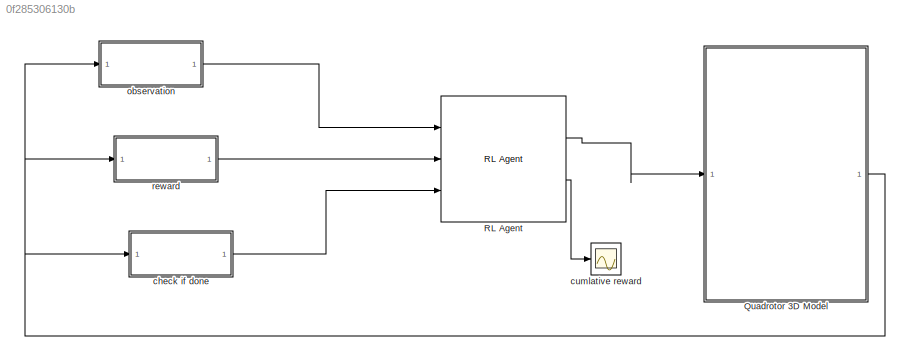
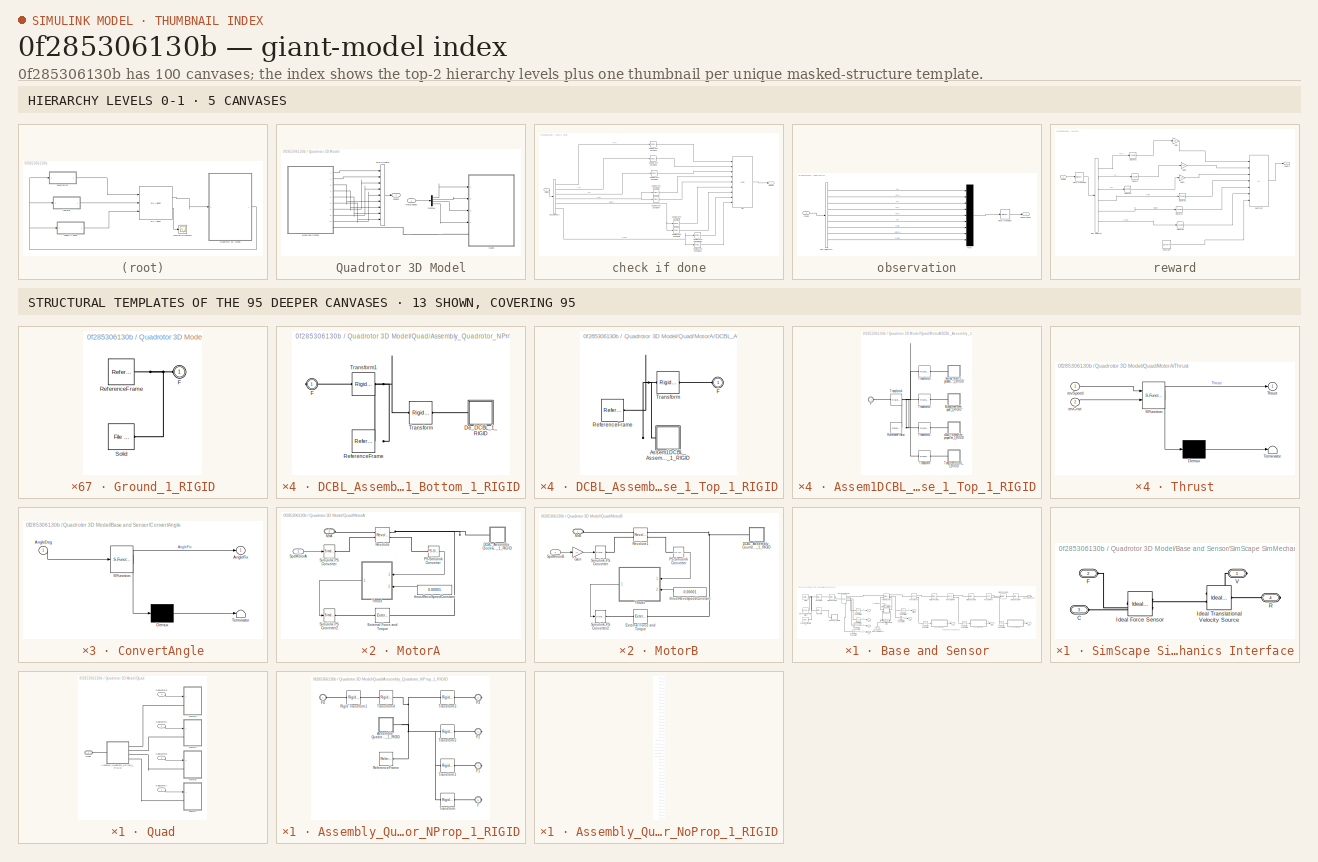
[diagram: thumbnail index - top-2 hierarchy levels (5 canvases) + 13 structural-template representatives of the remaining 95 canvases]
MODEL slx_0f285306130b
KIND model
CONFIG AbsTol = auto
CONFIG EnableMultiTasking = on
CONFIG FixedStep = auto
CONFIG MaxStep = auto
CONFIG MinStep = auto
CONFIG RelTol = 1e-3
CONFIG SampleTimeConstraint = Unconstrained
CONFIG SolverName = VariableStepAuto
CONFIG StartTime = 0.0
CONFIG StopTime = 30
BLOCK [SubSystem] Quadrotor 3D Model
  Ports = [1, 1]
  RequestExecContextInheritance = off
  VariantControl = Variant1
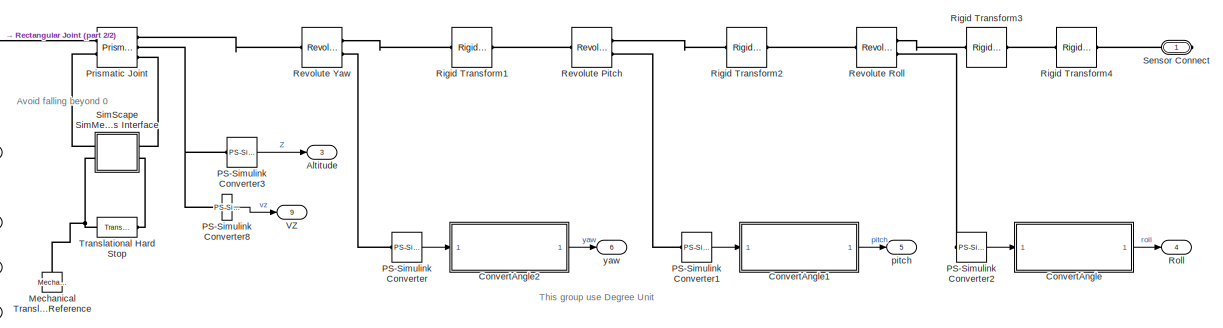
[diagram: Quadrotor 3D Model/Base and Sensor - part 1/2, center side, full height]
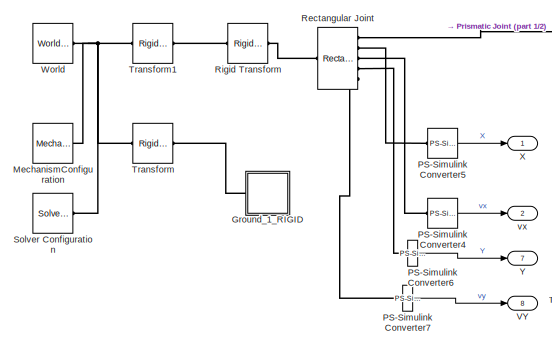
[diagram: Quadrotor 3D Model/Base and Sensor - part 2/2, left side, full height]
BLOCK [SubSystem] Quadrotor 3D Model/Base and Sensor
  Ports = [0, 9, 0, 0, 0, 0, 1]
  RequestExecContextInheritance = off
BLOCK [Outport] Quadrotor 3D Model/Base and Sensor/Altitude
  Port = 3
BLOCK [SubSystem] Quadrotor 3D Model/Base and Sensor/ConvertAngle
  ErrorFcn = Stateflow.Translate.translate
  PermitHierarchicalResolution = ExplicitOnly
  Ports = [1, 1]
  RequestExecContextInheritance = off
  SFBlockType = MATLAB Function
  TreatAsAtomicUnit = on
BLOCK [Demux] Quadrotor 3D Model/Base and Sensor/ConvertAngle/ Demux 
  Outputs = 1
  Ports = [1, 1]
BLOCK [S-Function] Quadrotor 3D Model/Base and Sensor/ConvertAngle/ SFunction 
  EnableBusSupport = on
  FunctionName = sf_sfun
  PortCounts = [1 2]
  Ports = [1, 2]
  SFcnIsStateOwnerBlock = off
  SFunctionDeploymentMode = off
  Tag = Stateflow S-Function 53
BLOCK [Terminator] Quadrotor 3D Model/Base and Sensor/ConvertAngle/ Terminator 
BLOCK [Inport] Quadrotor 3D Model/Base and Sensor/ConvertAngle/AngleDeg
BLOCK [Outport] Quadrotor 3D Model/Base and Sensor/ConvertAngle/AngleFix
BLOCK [SubSystem] Quadrotor 3D Model/Base and Sensor/ConvertAngle1
  ErrorFcn = Stateflow.Translate.translate
  PermitHierarchicalResolution = ExplicitOnly
  Ports = [1, 1]
  RequestExecContextInheritance = off
  SFBlockType = MATLAB Function
  TreatAsAtomicUnit = on
BLOCK [Demux] Quadrotor 3D Model/Base and Sensor/ConvertAngle1/ Demux 
  Outputs = 1
  Ports = [1, 1]
BLOCK [S-Function] Quadrotor 3D Model/Base and Sensor/ConvertAngle1/ SFunction 
  EnableBusSupport = on
  FunctionName = sf_sfun
  PortCounts = [1 2]
  Ports = [1, 2]
  SFcnIsStateOwnerBlock = off
  SFunctionDeploymentMode = off
  Tag = Stateflow S-Function 3
BLOCK [Terminator] Quadrotor 3D Model/Base and Sensor/ConvertAngle1/ Terminator 
BLOCK [Inport] Quadrotor 3D Model/Base and Sensor/ConvertAngle1/AngleDeg
BLOCK [Outport] Quadrotor 3D Model/Base and Sensor/ConvertAngle1/AngleFix
BLOCK [SubSystem] Quadrotor 3D Model/Base and Sensor/ConvertAngle2
  ErrorFcn = Stateflow.Translate.translate
  PermitHierarchicalResolution = ExplicitOnly
  Ports = [1, 1]
  RequestExecContextInheritance = off
  SFBlockType = MATLAB Function
  TreatAsAtomicUnit = on
BLOCK [Demux] Quadrotor 3D Model/Base and Sensor/ConvertAngle2/ Demux 
  Outputs = 1
  Ports = [1, 1]
BLOCK [S-Function] Quadrotor 3D Model/Base and Sensor/ConvertAngle2/ SFunction 
  EnableBusSupport = on
  FunctionName = sf_sfun
  PortCounts = [1 2]
  Ports = [1, 2]
  SFcnIsStateOwnerBlock = off
  SFunctionDeploymentMode = off
  Tag = Stateflow S-Function 4
BLOCK [Terminator] Quadrotor 3D Model/Base and Sensor/ConvertAngle2/ Terminator 
BLOCK [Inport] Quadrotor 3D Model/Base and Sensor/ConvertAngle2/AngleDeg
BLOCK [Outport] Quadrotor 3D Model/Base and Sensor/ConvertAngle2/AngleFix
BLOCK [SubSystem] Quadrotor 3D Model/Base and Sensor/Ground_1_RIGID
  Ports = [0, 0, 0, 0, 0, 1]
  RequestExecContextInheritance = off
BLOCK [PMIOPort] Quadrotor 3D Model/Base and Sensor/Ground_1_RIGID/F
  Side = Left
BLOCK [Reference] Quadrotor 3D Model/Base and Sensor/Ground_1_RIGID/ReferenceFrame  REF=sm_lib/Frames and
Transforms/Reference
Frame
  Ports = [0, 0, 0, 0, 0, 0, 1]
  SourceBlock = sm_lib/Frames and\nTransforms/Reference\nFrame
  SourceProductBaseCode = MS
  SourceType = Reference\nFrame
BLOCK [Reference] Quadrotor 3D Model/Base and Sensor/Ground_1_RIGID/Solid  REF=sm_lib/Body Elements/File Solid
  Ports = [0, 0, 0, 0, 0, 0, 1]
  SourceBlock = sm_lib/Body Elements/File Solid
  SourceProductBaseCode = MS
  SourceType = File Solid
BLOCK [Reference] Quadrotor 3D Model/Base and Sensor/Mechanical Translational Reference  REF=fl_lib/Mechanical/Translational
Elements/Mechanical
Translational
Reference
  NameLocation = right
  Ports = [0, 0, 0, 0, 0, 1]
  SourceBlock = fl_lib/Mechanical/Translational\nElements/Mechanical\nTranslational\nReference
  SourceProductBaseCode = SS
  SourceType = Mechanical\nTranslational\nReference
BLOCK [Reference] Quadrotor 3D Model/Base and Sensor/MechanismConfiguration  REF=sm_lib/Utilities/Mechanism
Configuration
  Ports = [0, 0, 0, 0, 0, 0, 1]
  SourceBlock = sm_lib/Utilities/Mechanism\nConfiguration
  SourceProductBaseCode = MS
  SourceType = Mechanism\nConfiguration
BLOCK [Reference] Quadrotor 3D Model/Base and Sensor/PS-Simulink Converter  REF=nesl_utility/PS-Simulink
Converter
  Ports = [0, 1, 0, 0, 0, 1]
  SourceBlock = nesl_utility/PS-Simulink\nConverter
  SourceProductBaseCode = SS
  SourceType = PS-Simulink\nConverter
BLOCK [Reference] Quadrotor 3D Model/Base and Sensor/PS-Simulink Converter1  REF=nesl_utility/PS-Simulink
Converter
  Ports = [0, 1, 0, 0, 0, 1]
  SourceBlock = nesl_utility/PS-Simulink\nConverter
  SourceProductBaseCode = SS
  SourceType = PS-Simulink\nConverter
BLOCK [Reference] Quadrotor 3D Model/Base and Sensor/PS-Simulink Converter2  REF=nesl_utility/PS-Simulink
Converter
  Ports = [0, 1, 0, 0, 0, 1]
  SourceBlock = nesl_utility/PS-Simulink\nConverter
  SourceProductBaseCode = SS
  SourceType = PS-Simulink\nConverter
BLOCK [Reference] Quadrotor 3D Model/Base and Sensor/PS-Simulink Converter3  REF=nesl_utility/PS-Simulink
Converter
  Ports = [0, 1, 0, 0, 0, 1]
  SourceBlock = nesl_utility/PS-Simulink\nConverter
  SourceProductBaseCode = SS
  SourceType = PS-Simulink\nConverter
BLOCK [Reference] Quadrotor 3D Model/Base and Sensor/PS-Simulink Converter4  REF=nesl_utility/PS-Simulink
Converter
  Ports = [0, 1, 0, 0, 0, 1]
  SourceBlock = nesl_utility/PS-Simulink\nConverter
  SourceProductBaseCode = SS
  SourceType = PS-Simulink\nConverter
BLOCK [Reference] Quadrotor 3D Model/Base and Sensor/PS-Simulink Converter5  REF=nesl_utility/PS-Simulink
Converter
  Ports = [0, 1, 0, 0, 0, 1]
  SourceBlock = nesl_utility/PS-Simulink\nConverter
  SourceProductBaseCode = SS
  SourceType = PS-Simulink\nConverter
BLOCK [Reference] Quadrotor 3D Model/Base and Sensor/PS-Simulink Converter6  REF=nesl_utility/PS-Simulink
Converter
  Ports = [0, 1, 0, 0, 0, 1]
  SourceBlock = nesl_utility/PS-Simulink\nConverter
  SourceProductBaseCode = SS
  SourceType = PS-Simulink\nConverter
BLOCK [Reference] Quadrotor 3D Model/Base and Sensor/PS-Simulink Converter7  REF=nesl_utility/PS-Simulink
Converter
  Ports = [0, 1, 0, 0, 0, 1]
  SourceBlock = nesl_utility/PS-Simulink\nConverter
  SourceProductBaseCode = SS
  SourceType = PS-Simulink\nConverter
BLOCK [Reference] Quadrotor 3D Model/Base and Sensor/PS-Simulink Converter8  REF=nesl_utility/PS-Simulink
Converter
  Ports = [0, 1, 0, 0, 0, 1]
  SourceBlock = nesl_utility/PS-Simulink\nConverter
  SourceProductBaseCode = SS
  SourceType = PS-Simulink\nConverter
BLOCK [Reference] Quadrotor 3D Model/Base and Sensor/Prismatic Joint  REF=sm_lib/Joints/Prismatic
Joint
  Ports = [0, 0, 0, 0, 0, 2, 3]
  SourceBlock = sm_lib/Joints/Prismatic\nJoint
  SourceProductBaseCode = MS
  SourceType = Prismatic\nJoint
BLOCK [Reference] Quadrotor 3D Model/Base and Sensor/Rectangular Joint  REF=sm_lib/Joints/Rectangular
Joint
  Ports = [0, 0, 0, 0, 0, 1, 5]
  SourceBlock = sm_lib/Joints/Rectangular\nJoint
  SourceProductBaseCode = MS
  SourceType = Rectangular\nJoint
BLOCK [Reference] Quadrotor 3D Model/Base and Sensor/Revolute Pitch  REF=sm_lib/Joints/Revolute Joint
  Ports = [0, 0, 0, 0, 0, 1, 2]
  SourceBlock = sm_lib/Joints/Revolute Joint
  SourceProductBaseCode = MS
  SourceType = Revolute Joint
BLOCK [Reference] Quadrotor 3D Model/Base and Sensor/Revolute Roll  REF=sm_lib/Joints/Revolute Joint
  Ports = [0, 0, 0, 0, 0, 1, 2]
  SourceBlock = sm_lib/Joints/Revolute Joint
  SourceProductBaseCode = MS
  SourceType = Revolute Joint
BLOCK [Reference] Quadrotor 3D Model/Base and Sensor/Revolute Yaw  REF=sm_lib/Joints/Revolute Joint
  Ports = [0, 0, 0, 0, 0, 1, 2]
  SourceBlock = sm_lib/Joints/Revolute Joint
  SourceProductBaseCode = MS
  SourceType = Revolute Joint
BLOCK [Reference] Quadrotor 3D Model/Base and Sensor/Rigid Transform  REF=sm_lib/Frames and
Transforms/Rigid
Transform
  Ports = [0, 0, 0, 0, 0, 1, 1]
  SourceBlock = sm_lib/Frames and\nTransforms/Rigid\nTransform
  SourceProductBaseCode = MS
  SourceType = Rigid\nTransform
BLOCK [Reference] Quadrotor 3D Model/Base and Sensor/Rigid Transform1  REF=sm_lib/Frames and
Transforms/Rigid
Transform
  Ports = [0, 0, 0, 0, 0, 1, 1]
  SourceBlock = sm_lib/Frames and\nTransforms/Rigid\nTransform
  SourceProductBaseCode = MS
  SourceType = Rigid\nTransform
BLOCK [Reference] Quadrotor 3D Model/Base and Sensor/Rigid Transform2  REF=sm_lib/Frames and
Transforms/Rigid
Transform
  Ports = [0, 0, 0, 0, 0, 1, 1]
  SourceBlock = sm_lib/Frames and\nTransforms/Rigid\nTransform
  SourceProductBaseCode = MS
  SourceType = Rigid\nTransform
BLOCK [Reference] Quadrotor 3D Model/Base and Sensor/Rigid Transform3  REF=sm_lib/Frames and
Transforms/Rigid
Transform
  Ports = [0, 0, 0, 0, 0, 1, 1]
  SourceBlock = sm_lib/Frames and\nTransforms/Rigid\nTransform
  SourceProductBaseCode = MS
  SourceType = Rigid\nTransform
BLOCK [Reference] Quadrotor 3D Model/Base and Sensor/Rigid Transform4  REF=sm_lib/Frames and
Transforms/Rigid
Transform
  Ports = [0, 0, 0, 0, 0, 1, 1]
  SourceBlock = sm_lib/Frames and\nTransforms/Rigid\nTransform
  SourceProductBaseCode = MS
  SourceType = Rigid\nTransform
BLOCK [Outport] Quadrotor 3D Model/Base and Sensor/Roll
  Port = 4
BLOCK [PMIOPort] Quadrotor 3D Model/Base and Sensor/Sensor Connect
  Side = Right
BLOCK [SubSystem] Quadrotor 3D Model/Base and Sensor/SimScape SimMechanics Interface
  Ports = [0, 0, 0, 0, 0, 2, 2]
  RequestExecContextInheritance = off
BLOCK [PMIOPort] Quadrotor 3D Model/Base and Sensor/SimScape SimMechanics Interface/C
  Port = 3
  Side = Left
BLOCK [PMIOPort] Quadrotor 3D Model/Base and Sensor/SimScape SimMechanics Interface/F
  NameLocation = top
  Port = 2
  Side = Left
BLOCK [Reference] Quadrotor 3D Model/Base and Sensor/SimScape SimMechanics Interface/Ideal Force Sensor  REF=fl_lib/Mechanical/Mechanical Sensors/Ideal Force Sensor
  Ports = [0, 0, 0, 0, 0, 1, 2]
  SourceBlock = fl_lib/Mechanical/Mechanical Sensors/Ideal Force Sensor
  SourceProductBaseCode = SS
  SourceType = Ideal Force Sensor
BLOCK [Reference] Quadrotor 3D Model/Base and Sensor/SimScape SimMechanics Interface/Ideal Translational Velocity Source  REF=fl_lib/Mechanical/Mechanical Sources/Ideal Translational
Velocity Source
  Ports = [0, 0, 0, 0, 0, 1, 2]
  SourceBlock = fl_lib/Mechanical/Mechanical Sources/Ideal Translational\nVelocity Source
  SourceProductBaseCode = SS
  SourceType = Ideal Translational\nVelocity Source
BLOCK [PMIOPort] Quadrotor 3D Model/Base and Sensor/SimScape SimMechanics Interface/R
  Port = 4
  Side = Right
BLOCK [PMIOPort] Quadrotor 3D Model/Base and Sensor/SimScape SimMechanics Interface/V
  NameLocation = top
  Side = Right
BLOCK [Reference] Quadrotor 3D Model/Base and Sensor/Solver Configuration  REF=nesl_utility/Solver
Configuration
  Ports = [0, 0, 0, 0, 0, 0, 1]
  SourceBlock = nesl_utility/Solver\nConfiguration
  SourceProductBaseCode = SS
  SourceType = Solver\nConfiguration
BLOCK [Reference] Quadrotor 3D Model/Base and Sensor/Transform  REF=sm_lib/Frames and
Transforms/Rigid
Transform
  Ports = [0, 0, 0, 0, 0, 1, 1]
  SourceBlock = sm_lib/Frames and\nTransforms/Rigid\nTransform
  SourceProductBaseCode = MS
  SourceType = Rigid\nTransform
BLOCK [Reference] Quadrotor 3D Model/Base and Sensor/Transform1  REF=sm_lib/Frames and
Transforms/Rigid
Transform
  Ports = [0, 0, 0, 0, 0, 1, 1]
  SourceBlock = sm_lib/Frames and\nTransforms/Rigid\nTransform
  SourceProductBaseCode = MS
  SourceType = Rigid\nTransform
BLOCK [Reference] Quadrotor 3D Model/Base and Sensor/Translational Hard Stop  REF=fl_lib/Mechanical/Translational
Elements/Translational Hard
Stop
  Ports = [0, 0, 0, 0, 0, 1, 1]
  SourceBlock = fl_lib/Mechanical/Translational\nElements/Translational Hard\nStop
  SourceProductBaseCode = SS
  SourceType = Translational Hard\nStop
BLOCK [Outport] Quadrotor 3D Model/Base and Sensor/VY
  Port = 8
BLOCK [Outport] Quadrotor 3D Model/Base and Sensor/VZ
  Port = 9
BLOCK [Reference] Quadrotor 3D Model/Base and Sensor/World  REF=sm_lib/Frames and
Transforms/World Frame
  Ports = [0, 0, 0, 0, 0, 0, 1]
  SourceBlock = sm_lib/Frames and\nTransforms/World Frame
  SourceProductBaseCode = MS
  SourceType = World Frame
BLOCK [Outport] Quadrotor 3D Model/Base and Sensor/X
BLOCK [Outport] Quadrotor 3D Model/Base and Sensor/Y
  Port = 7
BLOCK [Outport] Quadrotor 3D Model/Base and Sensor/pitch
  Port = 5
BLOCK [Outport] Quadrotor 3D Model/Base and Sensor/vx
  Port = 2
BLOCK [Outport] Quadrotor 3D Model/Base and Sensor/yaw
  Port = 6
BLOCK [BusCreator] Quadrotor 3D Model/Bus Creator
  DisplayOption = bar
  InheritFromInputs = on
  Inputs = X,vx,Y,vy,vz,Z,roll,pitch,yaw
  Ports = [9, 1]
BLOCK [Demux] Quadrotor 3D Model/Demux
  Ports = [1, 4]
BLOCK [SubSystem] Quadrotor 3D Model/Quad
  Ports = [4, 0, 0, 0, 0, 1]
  RequestExecContextInheritance = off
BLOCK [SubSystem] Quadrotor 3D Model/Quad/Assembly_Quadrotor_NProp_1_RIGID
  Ports = [0, 0, 0, 0, 0, 1, 4]
  RequestExecContextInheritance = off
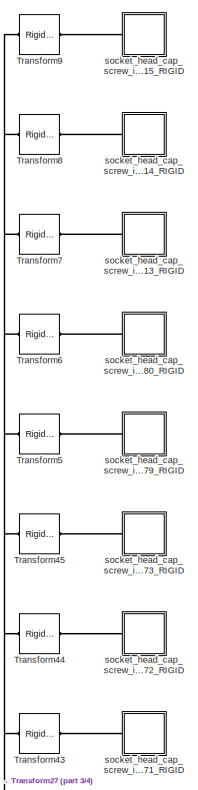
[diagram: Quadrotor 3D Model/Quad/Assembly_Quadrotor_NProp_1_RIGID/Assembly_Quadrotor_NoProp_1_RIGID - part 1/4, top right region]
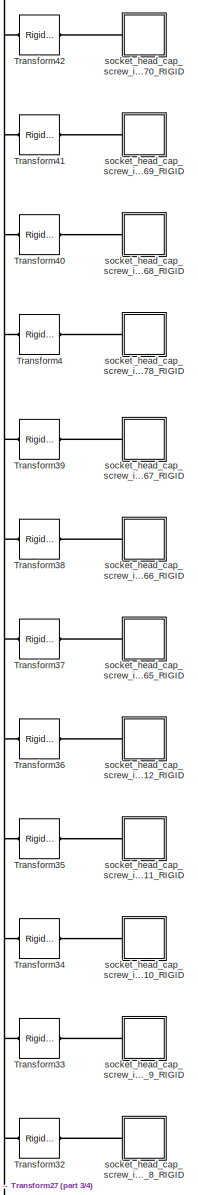
[diagram: Quadrotor 3D Model/Quad/Assembly_Quadrotor_NProp_1_RIGID/Assembly_Quadrotor_NoProp_1_RIGID - part 2/4, top right region]
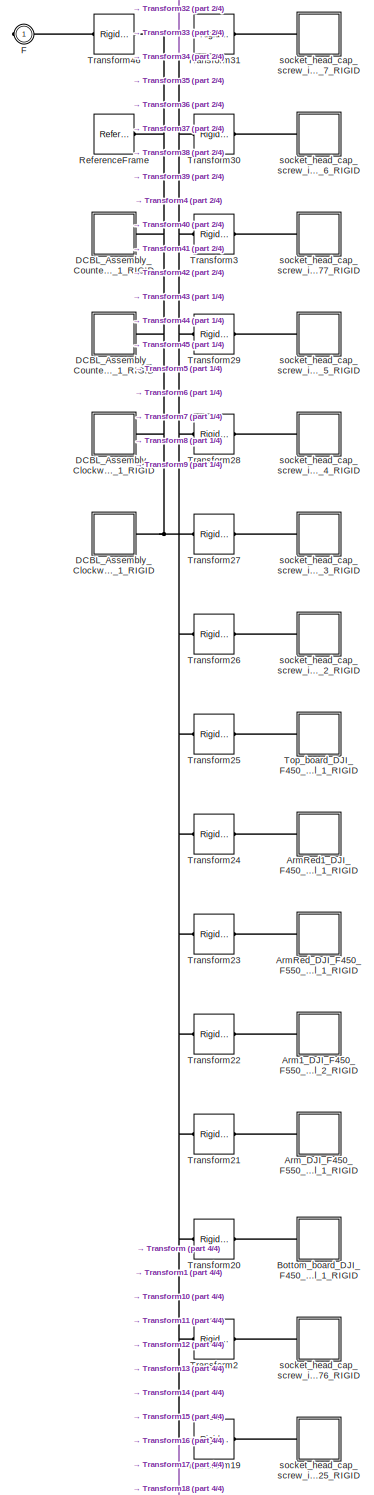
[diagram: Quadrotor 3D Model/Quad/Assembly_Quadrotor_NProp_1_RIGID/Assembly_Quadrotor_NoProp_1_RIGID - part 3/4, full width, middle band]
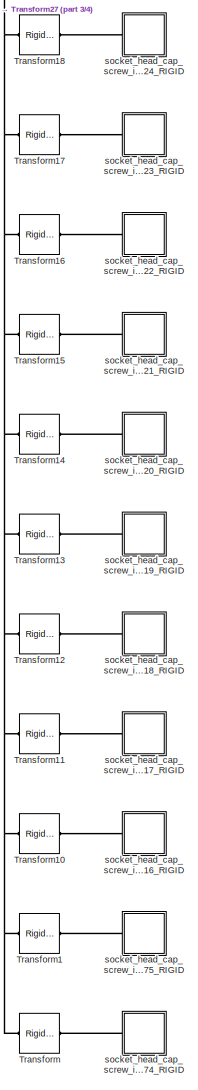
[diagram: Quadrotor 3D Model/Quad/Assembly_Quadrotor_NProp_1_RIGID/Assembly_Quadrotor_NoProp_1_RIGID - part 4/4, bottom right region]
BLOCK [SubSystem] Quadrotor 3D Model/Quad/Assembly_Quadrotor_NProp_1_RIGID/Assembly_Quadrotor_NoProp_1_RIGID
  Ports = [0, 0, 0, 0, 0, 0, 1]
  RequestExecContextInheritance = off
BLOCK [SubSystem] Quadrotor 3D Model/Quad/Assembly_Quadrotor_NProp_1_RIGID/Assembly_Quadrotor_NoProp_1_RIGID/Arm1_DJI_F450_F550_Final_2_RIGID
  Ports = [0, 0, 0, 0, 0, 1]
  RequestExecContextInheritance = off
BLOCK [PMIOPort] Quadrotor 3D Model/Quad/Assembly_Quadrotor_NProp_1_RIGID/Assembly_Quadrotor_NoProp_1_RIGID/Arm1_DJI_F450_F550_Final_2_RIGID/F
  Side = Left
BLOCK [Reference] Quadrotor 3D Model/Quad/Assembly_Quadrotor_NProp_1_RIGID/Assembly_Quadrotor_NoProp_1_RIGID/Arm1_DJI_F450_F550_Final_2_RIGID/ReferenceFrame  REF=sm_lib/Frames and
Transforms/Reference
Frame
  Ports = [0, 0, 0, 0, 0, 0, 1]
  SourceBlock = sm_lib/Frames and\nTransforms/Reference\nFrame
  SourceProductBaseCode = MS
  SourceType = Reference\nFrame
BLOCK [Reference] Quadrotor 3D Model/Quad/Assembly_Quadrotor_NProp_1_RIGID/Assembly_Quadrotor_NoProp_1_RIGID/Arm1_DJI_F450_F550_Final_2_RIGID/Solid  REF=sm_lib/Body Elements/File Solid
  Ports = [0, 0, 0, 0, 0, 0, 1]
  SourceBlock = sm_lib/Body Elements/File Solid
  SourceProductBaseCode = MS
  SourceType = File Solid
BLOCK [SubSystem] Quadrotor 3D Model/Quad/Assembly_Quadrotor_NProp_1_RIGID/Assembly_Quadrotor_NoProp_1_RIGID/ArmRed1_DJI_F450_F550_Final_1_RIGID
  Ports = [0, 0, 0, 0, 0, 1]
  RequestExecContextInheritance = off
BLOCK [PMIOPort] Quadrotor 3D Model/Quad/Assembly_Quadrotor_NProp_1_RIGID/Assembly_Quadrotor_NoProp_1_RIGID/ArmRed1_DJI_F450_F550_Final_1_RIGID/F
  Side = Left
BLOCK [Reference] Quadrotor 3D Model/Quad/Assembly_Quadrotor_NProp_1_RIGID/Assembly_Quadrotor_NoProp_1_RIGID/ArmRed1_DJI_F450_F550_Final_1_RIGID/ReferenceFrame  REF=sm_lib/Frames and
Transforms/Reference
Frame
  Ports = [0, 0, 0, 0, 0, 0, 1]
  SourceBlock = sm_lib/Frames and\nTransforms/Reference\nFrame
  SourceProductBaseCode = MS
  SourceType = Reference\nFrame
BLOCK [Reference] Quadrotor 3D Model/Quad/Assembly_Quadrotor_NProp_1_RIGID/Assembly_Quadrotor_NoProp_1_RIGID/ArmRed1_DJI_F450_F550_Final_1_RIGID/Solid  REF=sm_lib/Body Elements/File Solid
  Ports = [0, 0, 0, 0, 0, 0, 1]
  SourceBlock = sm_lib/Body Elements/File Solid
  SourceProductBaseCode = MS
  SourceType = File Solid
BLOCK [SubSystem] Quadrotor 3D Model/Quad/Assembly_Quadrotor_NProp_1_RIGID/Assembly_Quadrotor_NoProp_1_RIGID/ArmRed_DJI_F450_F550_Final_1_RIGID
  Ports = [0, 0, 0, 0, 0, 1]
  RequestExecContextInheritance = off
BLOCK [PMIOPort] Quadrotor 3D Model/Quad/Assembly_Quadrotor_NProp_1_RIGID/Assembly_Quadrotor_NoProp_1_RIGID/ArmRed_DJI_F450_F550_Final_1_RIGID/F
  Side = Left
BLOCK [Reference] Quadrotor 3D Model/Quad/Assembly_Quadrotor_NProp_1_RIGID/Assembly_Quadrotor_NoProp_1_RIGID/ArmRed_DJI_F450_F550_Final_1_RIGID/ReferenceFrame  REF=sm_lib/Frames and
Transforms/Reference
Frame
  Ports = [0, 0, 0, 0, 0, 0, 1]
  SourceBlock = sm_lib/Frames and\nTransforms/Reference\nFrame
  SourceProductBaseCode = MS
  SourceType = Reference\nFrame
BLOCK [Reference] Quadrotor 3D Model/Quad/Assembly_Quadrotor_NProp_1_RIGID/Assembly_Quadrotor_NoProp_1_RIGID/ArmRed_DJI_F450_F550_Final_1_RIGID/Solid  REF=sm_lib/Body Elements/File Solid
  Ports = [0, 0, 0, 0, 0, 0, 1]
  SourceBlock = sm_lib/Body Elements/File Solid
  SourceProductBaseCode = MS
  SourceType = File Solid
BLOCK [SubSystem] Quadrotor 3D Model/Quad/Assembly_Quadrotor_NProp_1_RIGID/Assembly_Quadrotor_NoProp_1_RIGID/Arm_DJI_F450_F550_Final_1_RIGID
  Ports = [0, 0, 0, 0, 0, 1]
  RequestExecContextInheritance = off
BLOCK [PMIOPort] Quadrotor 3D Model/Quad/Assembly_Quadrotor_NProp_1_RIGID/Assembly_Quadrotor_NoProp_1_RIGID/Arm_DJI_F450_F550_Final_1_RIGID/F
  Side = Left
BLOCK [Reference] Quadrotor 3D Model/Quad/Assembly_Quadrotor_NProp_1_RIGID/Assembly_Quadrotor_NoProp_1_RIGID/Arm_DJI_F450_F550_Final_1_RIGID/ReferenceFrame  REF=sm_lib/Frames and
Transforms/Reference
Frame
  Ports = [0, 0, 0, 0, 0, 0, 1]
  SourceBlock = sm_lib/Frames and\nTransforms/Reference\nFrame
  SourceProductBaseCode = MS
  SourceType = Reference\nFrame
BLOCK [Reference] Quadrotor 3D Model/Quad/Assembly_Quadrotor_NProp_1_RIGID/Assembly_Quadrotor_NoProp_1_RIGID/Arm_DJI_F450_F550_Final_1_RIGID/Solid  REF=sm_lib/Body Elements/File Solid
  Ports = [0, 0, 0, 0, 0, 0, 1]
  SourceBlock = sm_lib/Body Elements/File Solid
  SourceProductBaseCode = MS
  SourceType = File Solid
BLOCK [SubSystem] Quadrotor 3D Model/Quad/Assembly_Quadrotor_NProp_1_RIGID/Assembly_Quadrotor_NoProp_1_RIGID/Bottom_board_DJI_F450_Final_1_RIGID
  Ports = [0, 0, 0, 0, 0, 1]
  RequestExecContextInheritance = off
BLOCK [PMIOPort] Quadrotor 3D Model/Quad/Assembly_Quadrotor_NProp_1_RIGID/Assembly_Quadrotor_NoProp_1_RIGID/Bottom_board_DJI_F450_Final_1_RIGID/F
  Side = Left
BLOCK [Reference] Quadrotor 3D Model/Quad/Assembly_Quadrotor_NProp_1_RIGID/Assembly_Quadrotor_NoProp_1_RIGID/Bottom_board_DJI_F450_Final_1_RIGID/ReferenceFrame  REF=sm_lib/Frames and
Transforms/Reference
Frame
  Ports = [0, 0, 0, 0, 0, 0, 1]
  SourceBlock = sm_lib/Frames and\nTransforms/Reference\nFrame
  SourceProductBaseCode = MS
  SourceType = Reference\nFrame
BLOCK [Reference] Quadrotor 3D Model/Quad/Assembly_Quadrotor_NProp_1_RIGID/Assembly_Quadrotor_NoProp_1_RIGID/Bottom_board_DJI_F450_Final_1_RIGID/Solid  REF=sm_lib/Body Elements/File Solid
  Ports = [0, 0, 0, 0, 0, 0, 1]
  SourceBlock = sm_lib/Body Elements/File Solid
  SourceProductBaseCode = MS
  SourceType = File Solid
BLOCK [SubSystem] Quadrotor 3D Model/Quad/Assembly_Quadrotor_NProp_1_RIGID/Assembly_Quadrotor_NoProp_1_RIGID/DCBL_Assembly_Clockwise_1_Bottom_1_RIGID
  Ports = [0, 0, 0, 0, 0, 0, 1]
  RequestExecContextInheritance = off
BLOCK [SubSystem] Quadrotor 3D Model/Quad/Assembly_Quadrotor_NProp_1_RIGID/Assembly_Quadrotor_NoProp_1_RIGID/DCBL_Assembly_Clockwise_1_Bottom_1_RIGID/De_DCBL_1_RIGID
  Ports = [0, 0, 0, 0, 0, 1]
  RequestExecContextInheritance = off
BLOCK [PMIOPort] Quadrotor 3D Model/Quad/Assembly_Quadrotor_NProp_1_RIGID/Assembly_Quadrotor_NoProp_1_RIGID/DCBL_Assembly_Clockwise_1_Bottom_1_RIGID/De_DCBL_1_RIGID/F
  Side = Left
BLOCK [Reference] Quadrotor 3D Model/Quad/Assembly_Quadrotor_NProp_1_RIGID/Assembly_Quadrotor_NoProp_1_RIGID/DCBL_Assembly_Clockwise_1_Bottom_1_RIGID/De_DCBL_1_RIGID/ReferenceFrame  REF=sm_lib/Frames and
Transforms/Reference
Frame
  Ports = [0, 0, 0, 0, 0, 0, 1]
  SourceBlock = sm_lib/Frames and\nTransforms/Reference\nFrame
  SourceProductBaseCode = MS
  SourceType = Reference\nFrame
BLOCK [Reference] Quadrotor 3D Model/Quad/Assembly_Quadrotor_NProp_1_RIGID/Assembly_Quadrotor_NoProp_1_RIGID/DCBL_Assembly_Clockwise_1_Bottom_1_RIGID/De_DCBL_1_RIGID/Solid  REF=sm_lib/Body Elements/File Solid
  Ports = [0, 0, 0, 0, 0, 0, 1]
  SourceBlock = sm_lib/Body Elements/File Solid
  SourceProductBaseCode = MS
  SourceType = File Solid
BLOCK [PMIOPort] Quadrotor 3D Model/Quad/Assembly_Quadrotor_NProp_1_RIGID/Assembly_Quadrotor_NoProp_1_RIGID/DCBL_Assembly_Clockwise_1_Bottom_1_RIGID/F
  Side = Right
BLOCK [Reference] Quadrotor 3D Model/Quad/Assembly_Quadrotor_NProp_1_RIGID/Assembly_Quadrotor_NoProp_1_RIGID/DCBL_Assembly_Clockwise_1_Bottom_1_RIGID/ReferenceFrame  REF=sm_lib/Frames and
Transforms/Reference
Frame
  Ports = [0, 0, 0, 0, 0, 0, 1]
  SourceBlock = sm_lib/Frames and\nTransforms/Reference\nFrame
  SourceProductBaseCode = MS
  SourceType = Reference\nFrame
BLOCK [Reference] Quadrotor 3D Model/Quad/Assembly_Quadrotor_NProp_1_RIGID/Assembly_Quadrotor_NoProp_1_RIGID/DCBL_Assembly_Clockwise_1_Bottom_1_RIGID/Transform  REF=sm_lib/Frames and
Transforms/Rigid
Transform
  Ports = [0, 0, 0, 0, 0, 1, 1]
  SourceBlock = sm_lib/Frames and\nTransforms/Rigid\nTransform
  SourceProductBaseCode = MS
  SourceType = Rigid\nTransform
BLOCK [Reference] Quadrotor 3D Model/Quad/Assembly_Quadrotor_NProp_1_RIGID/Assembly_Quadrotor_NoProp_1_RIGID/DCBL_Assembly_Clockwise_1_Bottom_1_RIGID/Transform1  REF=sm_lib/Frames and
Transforms/Rigid
Transform
  Ports = [0, 0, 0, 0, 0, 1, 1]
  SourceBlock = sm_lib/Frames and\nTransforms/Rigid\nTransform
  SourceProductBaseCode = MS
  SourceType = Rigid\nTransform
BLOCK [SubSystem] Quadrotor 3D Model/Quad/Assembly_Quadrotor_NProp_1_RIGID/Assembly_Quadrotor_NoProp_1_RIGID/DCBL_Assembly_Clockwise_3_Bottom_1_RIGID
  Ports = [0, 0, 0, 0, 0, 0, 1]
  RequestExecContextInheritance = off
BLOCK [SubSystem] Quadrotor 3D Model/Quad/Assembly_Quadrotor_NProp_1_RIGID/Assembly_Quadrotor_NoProp_1_RIGID/DCBL_Assembly_Clockwise_3_Bottom_1_RIGID/De_DCBL_1_RIGID
  Ports = [0, 0, 0, 0, 0, 1]
  RequestExecContextInheritance = off
BLOCK [PMIOPort] Quadrotor 3D Model/Quad/Assembly_Quadrotor_NProp_1_RIGID/Assembly_Quadrotor_NoProp_1_RIGID/DCBL_Assembly_Clockwise_3_Bottom_1_RIGID/De_DCBL_1_RIGID/F
  Side = Left
BLOCK [Reference] Quadrotor 3D Model/Quad/Assembly_Quadrotor_NProp_1_RIGID/Assembly_Quadrotor_NoProp_1_RIGID/DCBL_Assembly_Clockwise_3_Bottom_1_RIGID/De_DCBL_1_RIGID/ReferenceFrame  REF=sm_lib/Frames and
Transforms/Reference
Frame
  Ports = [0, 0, 0, 0, 0, 0, 1]
  SourceBlock = sm_lib/Frames and\nTransforms/Reference\nFrame
  SourceProductBaseCode = MS
  SourceType = Reference\nFrame
BLOCK [Reference] Quadrotor 3D Model/Quad/Assembly_Quadrotor_NProp_1_RIGID/Assembly_Quadrotor_NoProp_1_RIGID/DCBL_Assembly_Clockwise_3_Bottom_1_RIGID/De_DCBL_1_RIGID/Solid  REF=sm_lib/Body Elements/File Solid
  Ports = [0, 0, 0, 0, 0, 0, 1]
  SourceBlock = sm_lib/Body Elements/File Solid
  SourceProductBaseCode = MS
  SourceType = File Solid
BLOCK [PMIOPort] Quadrotor 3D Model/Quad/Assembly_Quadrotor_NProp_1_RIGID/Assembly_Quadrotor_NoProp_1_RIGID/DCBL_Assembly_Clockwise_3_Bottom_1_RIGID/F
  Side = Right
BLOCK [Reference] Quadrotor 3D Model/Quad/Assembly_Quadrotor_NProp_1_RIGID/Assembly_Quadrotor_NoProp_1_RIGID/DCBL_Assembly_Clockwise_3_Bottom_1_RIGID/ReferenceFrame  REF=sm_lib/Frames and
Transforms/Reference
Frame
  Ports = [0, 0, 0, 0, 0, 0, 1]
  SourceBlock = sm_lib/Frames and\nTransforms/Reference\nFrame
  SourceProductBaseCode = MS
  SourceType = Reference\nFrame
BLOCK [Reference] Quadrotor 3D Model/Quad/Assembly_Quadrotor_NProp_1_RIGID/Assembly_Quadrotor_NoProp_1_RIGID/DCBL_Assembly_Clockwise_3_Bottom_1_RIGID/Transform  REF=sm_lib/Frames and
Transforms/Rigid
Transform
  Ports = [0, 0, 0, 0, 0, 1, 1]
  SourceBlock = sm_lib/Frames and\nTransforms/Rigid\nTransform
  SourceProductBaseCode = MS
  SourceType = Rigid\nTransform
BLOCK [Reference] Quadrotor 3D Model/Quad/Assembly_Quadrotor_NProp_1_RIGID/Assembly_Quadrotor_NoProp_1_RIGID/DCBL_Assembly_Clockwise_3_Bottom_1_RIGID/Transform1  REF=sm_lib/Frames and
Transforms/Rigid
Transform
  Ports = [0, 0, 0, 0, 0, 1, 1]
  SourceBlock = sm_lib/Frames and\nTransforms/Rigid\nTransform
  SourceProductBaseCode = MS
  SourceType = Rigid\nTransform
BLOCK [SubSystem] Quadrotor 3D Model/Quad/Assembly_Quadrotor_NProp_1_RIGID/Assembly_Quadrotor_NoProp_1_RIGID/DCBL_Assembly_CounterClockwise_2_Bottom_1_RIGID
  Ports = [0, 0, 0, 0, 0, 0, 1]
  RequestExecContextInheritance = off
BLOCK [SubSystem] Quadrotor 3D Model/Quad/Assembly_Quadrotor_NProp_1_RIGID/Assembly_Quadrotor_NoProp_1_RIGID/DCBL_Assembly_CounterClockwise_2_Bottom_1_RIGID/De_DCBL_1_RIGID
  Ports = [0, 0, 0, 0, 0, 1]
  RequestExecContextInheritance = off
BLOCK [PMIOPort] Quadrotor 3D Model/Quad/Assembly_Quadrotor_NProp_1_RIGID/Assembly_Quadrotor_NoProp_1_RIGID/DCBL_Assembly_CounterClockwise_2_Bottom_1_RIGID/De_DCBL_1_RIGID/F
  Side = Left
BLOCK [Reference] Quadrotor 3D Model/Quad/Assembly_Quadrotor_NProp_1_RIGID/Assembly_Quadrotor_NoProp_1_RIGID/DCBL_Assembly_CounterClockwise_2_Bottom_1_RIGID/De_DCBL_1_RIGID/ReferenceFrame  REF=sm_lib/Frames and
Transforms/Reference
Frame
  Ports = [0, 0, 0, 0, 0, 0, 1]
  SourceBlock = sm_lib/Frames and\nTransforms/Reference\nFrame
  SourceProductBaseCode = MS
  SourceType = Reference\nFrame
BLOCK [Reference] Quadrotor 3D Model/Quad/Assembly_Quadrotor_NProp_1_RIGID/Assembly_Quadrotor_NoProp_1_RIGID/DCBL_Assembly_CounterClockwise_2_Bottom_1_RIGID/De_DCBL_1_RIGID/Solid  REF=sm_lib/Body Elements/File Solid
  Ports = [0, 0, 0, 0, 0, 0, 1]
  SourceBlock = sm_lib/Body Elements/File Solid
  SourceProductBaseCode = MS
  SourceType = File Solid
BLOCK [PMIOPort] Quadrotor 3D Model/Quad/Assembly_Quadrotor_NProp_1_RIGID/Assembly_Quadrotor_NoProp_1_RIGID/DCBL_Assembly_CounterClockwise_2_Bottom_1_RIGID/F
  Side = Right
BLOCK [Reference] Quadrotor 3D Model/Quad/Assembly_Quadrotor_NProp_1_RIGID/Assembly_Quadrotor_NoProp_1_RIGID/DCBL_Assembly_CounterClockwise_2_Bottom_1_RIGID/ReferenceFrame  REF=sm_lib/Frames and
Transforms/Reference
Frame
  Ports = [0, 0, 0, 0, 0, 0, 1]
  SourceBlock = sm_lib/Frames and\nTransforms/Reference\nFrame
  SourceProductBaseCode = MS
  SourceType = Reference\nFrame
BLOCK [Reference] Quadrotor 3D Model/Quad/Assembly_Quadrotor_NProp_1_RIGID/Assembly_Quadrotor_NoProp_1_RIGID/DCBL_Assembly_CounterClockwise_2_Bottom_1_RIGID/Transform  REF=sm_lib/Frames and
Transforms/Rigid
Transform
  Ports = [0, 0, 0, 0, 0, 1, 1]
  SourceBlock = sm_lib/Frames and\nTransforms/Rigid\nTransform
  SourceProductBaseCode = MS
  SourceType = Rigid\nTransform
BLOCK [Reference] Quadrotor 3D Model/Quad/Assembly_Quadrotor_NProp_1_RIGID/Assembly_Quadrotor_NoProp_1_RIGID/DCBL_Assembly_CounterClockwise_2_Bottom_1_RIGID/Transform1  REF=sm_lib/Frames and
Transforms/Rigid
Transform
  Ports = [0, 0, 0, 0, 0, 1, 1]
  SourceBlock = sm_lib/Frames and\nTransforms/Rigid\nTransform
  SourceProductBaseCode = MS
  SourceType = Rigid\nTransform
BLOCK [SubSystem] Quadrotor 3D Model/Quad/Assembly_Quadrotor_NProp_1_RIGID/Assembly_Quadrotor_NoProp_1_RIGID/DCBL_Assembly_CounterClockwise_4_Bottom_1_RIGID
  Ports = [0, 0, 0, 0, 0, 0, 1]
  RequestExecContextInheritance = off
BLOCK [SubSystem] Quadrotor 3D Model/Quad/Assembly_Quadrotor_NProp_1_RIGID/Assembly_Quadrotor_NoProp_1_RIGID/DCBL_Assembly_CounterClockwise_4_Bottom_1_RIGID/De_DCBL_1_RIGID
  Ports = [0, 0, 0, 0, 0, 1]
  RequestExecContextInheritance = off
BLOCK [PMIOPort] Quadrotor 3D Model/Quad/Assembly_Quadrotor_NProp_1_RIGID/Assembly_Quadrotor_NoProp_1_RIGID/DCBL_Assembly_CounterClockwise_4_Bottom_1_RIGID/De_DCBL_1_RIGID/F
  Side = Left
BLOCK [Reference] Quadrotor 3D Model/Quad/Assembly_Quadrotor_NProp_1_RIGID/Assembly_Quadrotor_NoProp_1_RIGID/DCBL_Assembly_CounterClockwise_4_Bottom_1_RIGID/De_DCBL_1_RIGID/ReferenceFrame  REF=sm_lib/Frames and
Transforms/Reference
Frame
  Ports = [0, 0, 0, 0, 0, 0, 1]
  SourceBlock = sm_lib/Frames and\nTransforms/Reference\nFrame
  SourceProductBaseCode = MS
  SourceType = Reference\nFrame
BLOCK [Reference] Quadrotor 3D Model/Quad/Assembly_Quadrotor_NProp_1_RIGID/Assembly_Quadrotor_NoProp_1_RIGID/DCBL_Assembly_CounterClockwise_4_Bottom_1_RIGID/De_DCBL_1_RIGID/Solid  REF=sm_lib/Body Elements/File Solid
  Ports = [0, 0, 0, 0, 0, 0, 1]
  SourceBlock = sm_lib/Body Elements/File Solid
  SourceProductBaseCode = MS
  SourceType = File Solid
BLOCK [PMIOPort] Quadrotor 3D Model/Quad/Assembly_Quadrotor_NProp_1_RIGID/Assembly_Quadrotor_NoProp_1_RIGID/DCBL_Assembly_CounterClockwise_4_Bottom_1_RIGID/F
  Side = Right
BLOCK [Reference] Quadrotor 3D Model/Quad/Assembly_Quadrotor_NProp_1_RIGID/Assembly_Quadrotor_NoProp_1_RIGID/DCBL_Assembly_CounterClockwise_4_Bottom_1_RIGID/ReferenceFrame  REF=sm_lib/Frames and
Transforms/Reference
Frame
  Ports = [0, 0, 0, 0, 0, 0, 1]
  SourceBlock = sm_lib/Frames and\nTransforms/Reference\nFrame
  SourceProductBaseCode = MS
  SourceType = Reference\nFrame
BLOCK [Reference] Quadrotor 3D Model/Quad/Assembly_Quadrotor_NProp_1_RIGID/Assembly_Quadrotor_NoProp_1_RIGID/DCBL_Assembly_CounterClockwise_4_Bottom_1_RIGID/Transform  REF=sm_lib/Frames and
Transforms/Rigid
Transform
  Ports = [0, 0, 0, 0, 0, 1, 1]
  SourceBlock = sm_lib/Frames and\nTransforms/Rigid\nTransform
  SourceProductBaseCode = MS
  SourceType = Rigid\nTransform
BLOCK [Reference] Quadrotor 3D Model/Quad/Assembly_Quadrotor_NProp_1_RIGID/Assembly_Quadrotor_NoProp_1_RIGID/DCBL_Assembly_CounterClockwise_4_Bottom_1_RIGID/Transform1  REF=sm_lib/Frames and
Transforms/Rigid
Transform
  Ports = [0, 0, 0, 0, 0, 1, 1]
  SourceBlock = sm_lib/Frames and\nTransforms/Rigid\nTransform
  SourceProductBaseCode = MS
  SourceType = Rigid\nTransform
BLOCK [PMIOPort] Quadrotor 3D Model/Quad/Assembly_Quadrotor_NProp_1_RIGID/Assembly_Quadrotor_NoProp_1_RIGID/F
  Side = Right
BLOCK [Reference] Quadrotor 3D Model/Quad/Assembly_Quadrotor_NProp_1_RIGID/Assembly_Quadrotor_NoProp_1_RIGID/ReferenceFrame  REF=sm_lib/Frames and
Transforms/Reference
Frame
  Ports = [0, 0, 0, 0, 0, 0, 1]
  SourceBlock = sm_lib/Frames and\nTransforms/Reference\nFrame
  SourceProductBaseCode = MS
  SourceType = Reference\nFrame
BLOCK [SubSystem] Quadrotor 3D Model/Quad/Assembly_Quadrotor_NProp_1_RIGID/Assembly_Quadrotor_NoProp_1_RIGID/Top_board_DJI_F450_Final_1_RIGID
  Ports = [0, 0, 0, 0, 0, 1]
  RequestExecContextInheritance = off
BLOCK [PMIOPort] Quadrotor 3D Model/Quad/Assembly_Quadrotor_NProp_1_RIGID/Assembly_Quadrotor_NoProp_1_RIGID/Top_board_DJI_F450_Final_1_RIGID/F
  Side = Left
BLOCK [Reference] Quadrotor 3D Model/Quad/Assembly_Quadrotor_NProp_1_RIGID/Assembly_Quadrotor_NoProp_1_RIGID/Top_board_DJI_F450_Final_1_RIGID/ReferenceFrame  REF=sm_lib/Frames and
Transforms/Reference
Frame
  Ports = [0, 0, 0, 0, 0, 0, 1]
  SourceBlock = sm_lib/Frames and\nTransforms/Reference\nFrame
  SourceProductBaseCode = MS
  SourceType = Reference\nFrame
BLOCK [Reference] Quadrotor 3D Model/Quad/Assembly_Quadrotor_NProp_1_RIGID/Assembly_Quadrotor_NoProp_1_RIGID/Top_board_DJI_F450_Final_1_RIGID/Solid  REF=sm_lib/Body Elements/File Solid
  Ports = [0, 0, 0, 0, 0, 0, 1]
  SourceBlock = sm_lib/Body Elements/File Solid
  SourceProductBaseCode = MS
  SourceType = File Solid
BLOCK [Reference] Quadrotor 3D Model/Quad/Assembly_Quadrotor_NProp_1_RIGID/Assembly_Quadrotor_NoProp_1_RIGID/Transform  REF=sm_lib/Frames and
Transforms/Rigid
Transform
  Ports = [0, 0, 0, 0, 0, 1, 1]
  SourceBlock = sm_lib/Frames and\nTransforms/Rigid\nTransform
  SourceProductBaseCode = MS
  SourceType = Rigid\nTransform
BLOCK [Reference] Quadrotor 3D Model/Quad/Assembly_Quadrotor_NProp_1_RIGID/Assembly_Quadrotor_NoProp_1_RIGID/Transform1  REF=sm_lib/Frames and
Transforms/Rigid
Transform
  Ports = [0, 0, 0, 0, 0, 1, 1]
  SourceBlock = sm_lib/Frames and\nTransforms/Rigid\nTransform
  SourceProductBaseCode = MS
  SourceType = Rigid\nTransform
BLOCK [Reference] Quadrotor 3D Model/Quad/Assembly_Quadrotor_NProp_1_RIGID/Assembly_Quadrotor_NoProp_1_RIGID/Transform10  REF=sm_lib/Frames and
Transforms/Rigid
Transform
  Ports = [0, 0, 0, 0, 0, 1, 1]
  SourceBlock = sm_lib/Frames and\nTransforms/Rigid\nTransform
  SourceProductBaseCode = MS
  SourceType = Rigid\nTransform
BLOCK [Reference] Quadrotor 3D Model/Quad/Assembly_Quadrotor_NProp_1_RIGID/Assembly_Quadrotor_NoProp_1_RIGID/Transform11  REF=sm_lib/Frames and
Transforms/Rigid
Transform
  Ports = [0, 0, 0, 0, 0, 1, 1]
  SourceBlock = sm_lib/Frames and\nTransforms/Rigid\nTransform
  SourceProductBaseCode = MS
  SourceType = Rigid\nTransform
BLOCK [Reference] Quadrotor 3D Model/Quad/Assembly_Quadrotor_NProp_1_RIGID/Assembly_Quadrotor_NoProp_1_RIGID/Transform12  REF=sm_lib/Frames and
Transforms/Rigid
Transform
  Ports = [0, 0, 0, 0, 0, 1, 1]
  SourceBlock = sm_lib/Frames and\nTransforms/Rigid\nTransform
  SourceProductBaseCode = MS
  SourceType = Rigid\nTransform
BLOCK [Reference] Quadrotor 3D Model/Quad/Assembly_Quadrotor_NProp_1_RIGID/Assembly_Quadrotor_NoProp_1_RIGID/Transform13  REF=sm_lib/Frames and
Transforms/Rigid
Transform
  Ports = [0, 0, 0, 0, 0, 1, 1]
  SourceBlock = sm_lib/Frames and\nTransforms/Rigid\nTransform
  SourceProductBaseCode = MS
  SourceType = Rigid\nTransform
BLOCK [Reference] Quadrotor 3D Model/Quad/Assembly_Quadrotor_NProp_1_RIGID/Assembly_Quadrotor_NoProp_1_RIGID/Transform14  REF=sm_lib/Frames and
Transforms/Rigid
Transform
  Ports = [0, 0, 0, 0, 0, 1, 1]
  SourceBlock = sm_lib/Frames and\nTransforms/Rigid\nTransform
  SourceProductBaseCode = MS
  SourceType = Rigid\nTransform
BLOCK [Reference] Quadrotor 3D Model/Quad/Assembly_Quadrotor_NProp_1_RIGID/Assembly_Quadrotor_NoProp_1_RIGID/Transform15  REF=sm_lib/Frames and
Transforms/Rigid
Transform
  Ports = [0, 0, 0, 0, 0, 1, 1]
  SourceBlock = sm_lib/Frames and\nTransforms/Rigid\nTransform
  SourceProductBaseCode = MS
  SourceType = Rigid\nTransform
BLOCK [Reference] Quadrotor 3D Model/Quad/Assembly_Quadrotor_NProp_1_RIGID/Assembly_Quadrotor_NoProp_1_RIGID/Transform16  REF=sm_lib/Frames and
Transforms/Rigid
Transform
  Ports = [0, 0, 0, 0, 0, 1, 1]
  SourceBlock = sm_lib/Frames and\nTransforms/Rigid\nTransform
  SourceProductBaseCode = MS
  SourceType = Rigid\nTransform
BLOCK [Reference] Quadrotor 3D Model/Quad/Assembly_Quadrotor_NProp_1_RIGID/Assembly_Quadrotor_NoProp_1_RIGID/Transform17  REF=sm_lib/Frames and
Transforms/Rigid
Transform
  Ports = [0, 0, 0, 0, 0, 1, 1]
  SourceBlock = sm_lib/Frames and\nTransforms/Rigid\nTransform
  SourceProductBaseCode = MS
  SourceType = Rigid\nTransform
BLOCK [Reference] Quadrotor 3D Model/Quad/Assembly_Quadrotor_NProp_1_RIGID/Assembly_Quadrotor_NoProp_1_RIGID/Transform18  REF=sm_lib/Frames and
Transforms/Rigid
Transform
  Ports = [0, 0, 0, 0, 0, 1, 1]
  SourceBlock = sm_lib/Frames and\nTransforms/Rigid\nTransform
  SourceProductBaseCode = MS
  SourceType = Rigid\nTransform
BLOCK [Reference] Quadrotor 3D Model/Quad/Assembly_Quadrotor_NProp_1_RIGID/Assembly_Quadrotor_NoProp_1_RIGID/Transform19  REF=sm_lib/Frames and
Transforms/Rigid
Transform
  Ports = [0, 0, 0, 0, 0, 1, 1]
  SourceBlock = sm_lib/Frames and\nTransforms/Rigid\nTransform
  SourceProductBaseCode = MS
  SourceType = Rigid\nTransform
BLOCK [Reference] Quadrotor 3D Model/Quad/Assembly_Quadrotor_NProp_1_RIGID/Assembly_Quadrotor_NoProp_1_RIGID/Transform2  REF=sm_lib/Frames and
Transforms/Rigid
Transform
  Ports = [0, 0, 0, 0, 0, 1, 1]
  SourceBlock = sm_lib/Frames and\nTransforms/Rigid\nTransform
  SourceProductBaseCode = MS
  SourceType = Rigid\nTransform
BLOCK [Reference] Quadrotor 3D Model/Quad/Assembly_Quadrotor_NProp_1_RIGID/Assembly_Quadrotor_NoProp_1_RIGID/Transform20  REF=sm_lib/Frames and
Transforms/Rigid
Transform
  Ports = [0, 0, 0, 0, 0, 1, 1]
  SourceBlock = sm_lib/Frames and\nTransforms/Rigid\nTransform
  SourceProductBaseCode = MS
  SourceType = Rigid\nTransform
BLOCK [Reference] Quadrotor 3D Model/Quad/Assembly_Quadrotor_NProp_1_RIGID/Assembly_Quadrotor_NoProp_1_RIGID/Transform21  REF=sm_lib/Frames and
Transforms/Rigid
Transform
  Ports = [0, 0, 0, 0, 0, 1, 1]
  SourceBlock = sm_lib/Frames and\nTransforms/Rigid\nTransform
  SourceProductBaseCode = MS
  SourceType = Rigid\nTransform
BLOCK [Reference] Quadrotor 3D Model/Quad/Assembly_Quadrotor_NProp_1_RIGID/Assembly_Quadrotor_NoProp_1_RIGID/Transform22  REF=sm_lib/Frames and
Transforms/Rigid
Transform
  Ports = [0, 0, 0, 0, 0, 1, 1]
  SourceBlock = sm_lib/Frames and\nTransforms/Rigid\nTransform
  SourceProductBaseCode = MS
  SourceType = Rigid\nTransform
BLOCK [Reference] Quadrotor 3D Model/Quad/Assembly_Quadrotor_NProp_1_RIGID/Assembly_Quadrotor_NoProp_1_RIGID/Transform23  REF=sm_lib/Frames and
Transforms/Rigid
Transform
  Ports = [0, 0, 0, 0, 0, 1, 1]
  SourceBlock = sm_lib/Frames and\nTransforms/Rigid\nTransform
  SourceProductBaseCode = MS
  SourceType = Rigid\nTransform
BLOCK [Reference] Quadrotor 3D Model/Quad/Assembly_Quadrotor_NProp_1_RIGID/Assembly_Quadrotor_NoProp_1_RIGID/Transform24  REF=sm_lib/Frames and
Transforms/Rigid
Transform
  Ports = [0, 0, 0, 0, 0, 1, 1]
  SourceBlock = sm_lib/Frames and\nTransforms/Rigid\nTransform
  SourceProductBaseCode = MS
  SourceType = Rigid\nTransform
BLOCK [Reference] Quadrotor 3D Model/Quad/Assembly_Quadrotor_NProp_1_RIGID/Assembly_Quadrotor_NoProp_1_RIGID/Transform25  REF=sm_lib/Frames and
Transforms/Rigid
Transform
  Ports = [0, 0, 0, 0, 0, 1, 1]
  SourceBlock = sm_lib/Frames and\nTransforms/Rigid\nTransform
  SourceProductBaseCode = MS
  SourceType = Rigid\nTransform
BLOCK [Reference] Quadrotor 3D Model/Quad/Assembly_Quadrotor_NProp_1_RIGID/Assembly_Quadrotor_NoProp_1_RIGID/Transform26  REF=sm_lib/Frames and
Transforms/Rigid
Transform
  Ports = [0, 0, 0, 0, 0, 1, 1]
  SourceBlock = sm_lib/Frames and\nTransforms/Rigid\nTransform
  SourceProductBaseCode = MS
  SourceType = Rigid\nTransform
BLOCK [Reference] Quadrotor 3D Model/Quad/Assembly_Quadrotor_NProp_1_RIGID/Assembly_Quadrotor_NoProp_1_RIGID/Transform27  REF=sm_lib/Frames and
Transforms/Rigid
Transform
  Ports = [0, 0, 0, 0, 0, 1, 1]
  SourceBlock = sm_lib/Frames and\nTransforms/Rigid\nTransform
  SourceProductBaseCode = MS
  SourceType = Rigid\nTransform
BLOCK [Reference] Quadrotor 3D Model/Quad/Assembly_Quadrotor_NProp_1_RIGID/Assembly_Quadrotor_NoProp_1_RIGID/Transform28  REF=sm_lib/Frames and
Transforms/Rigid
Transform
  Ports = [0, 0, 0, 0, 0, 1, 1]
  SourceBlock = sm_lib/Frames and\nTransforms/Rigid\nTransform
  SourceProductBaseCode = MS
  SourceType = Rigid\nTransform
BLOCK [Reference] Quadrotor 3D Model/Quad/Assembly_Quadrotor_NProp_1_RIGID/Assembly_Quadrotor_NoProp_1_RIGID/Transform29  REF=sm_lib/Frames and
Transforms/Rigid
Transform
  Ports = [0, 0, 0, 0, 0, 1, 1]
  SourceBlock = sm_lib/Frames and\nTransforms/Rigid\nTransform
  SourceProductBaseCode = MS
  SourceType = Rigid\nTransform
BLOCK [Reference] Quadrotor 3D Model/Quad/Assembly_Quadrotor_NProp_1_RIGID/Assembly_Quadrotor_NoProp_1_RIGID/Transform3  REF=sm_lib/Frames and
Transforms/Rigid
Transform
  Ports = [0, 0, 0, 0, 0, 1, 1]
  SourceBlock = sm_lib/Frames and\nTransforms/Rigid\nTransform
  SourceProductBaseCode = MS
  SourceType = Rigid\nTransform
BLOCK [Reference] Quadrotor 3D Model/Quad/Assembly_Quadrotor_NProp_1_RIGID/Assembly_Quadrotor_NoProp_1_RIGID/Transform30  REF=sm_lib/Frames and
Transforms/Rigid
Transform
  Ports = [0, 0, 0, 0, 0, 1, 1]
  SourceBlock = sm_lib/Frames and\nTransforms/Rigid\nTransform
  SourceProductBaseCode = MS
  SourceType = Rigid\nTransform
BLOCK [Reference] Quadrotor 3D Model/Quad/Assembly_Quadrotor_NProp_1_RIGID/Assembly_Quadrotor_NoProp_1_RIGID/Transform31  REF=sm_lib/Frames and
Transforms/Rigid
Transform
  Ports = [0, 0, 0, 0, 0, 1, 1]
  SourceBlock = sm_lib/Frames and\nTransforms/Rigid\nTransform
  SourceProductBaseCode = MS
  SourceType = Rigid\nTransform
BLOCK [Reference] Quadrotor 3D Model/Quad/Assembly_Quadrotor_NProp_1_RIGID/Assembly_Quadrotor_NoProp_1_RIGID/Transform32  REF=sm_lib/Frames and
Transforms/Rigid
Transform
  Ports = [0, 0, 0, 0, 0, 1, 1]
  SourceBlock = sm_lib/Frames and\nTransforms/Rigid\nTransform
  SourceProductBaseCode = MS
  SourceType = Rigid\nTransform
BLOCK [Reference] Quadrotor 3D Model/Quad/Assembly_Quadrotor_NProp_1_RIGID/Assembly_Quadrotor_NoProp_1_RIGID/Transform33  REF=sm_lib/Frames and
Transforms/Rigid
Transform
  Ports = [0, 0, 0, 0, 0, 1, 1]
  SourceBlock = sm_lib/Frames and\nTransforms/Rigid\nTransform
  SourceProductBaseCode = MS
  SourceType = Rigid\nTransform
BLOCK [Reference] Quadrotor 3D Model/Quad/Assembly_Quadrotor_NProp_1_RIGID/Assembly_Quadrotor_NoProp_1_RIGID/Transform34  REF=sm_lib/Frames and
Transforms/Rigid
Transform
  Ports = [0, 0, 0, 0, 0, 1, 1]
  SourceBlock = sm_lib/Frames and\nTransforms/Rigid\nTransform
  SourceProductBaseCode = MS
  SourceType = Rigid\nTransform
BLOCK [Reference] Quadrotor 3D Model/Quad/Assembly_Quadrotor_NProp_1_RIGID/Assembly_Quadrotor_NoProp_1_RIGID/Transform35  REF=sm_lib/Frames and
Transforms/Rigid
Transform
  Ports = [0, 0, 0, 0, 0, 1, 1]
  SourceBlock = sm_lib/Frames and\nTransforms/Rigid\nTransform
  SourceProductBaseCode = MS
  SourceType = Rigid\nTransform
BLOCK [Reference] Quadrotor 3D Model/Quad/Assembly_Quadrotor_NProp_1_RIGID/Assembly_Quadrotor_NoProp_1_RIGID/Transform36  REF=sm_lib/Frames and
Transforms/Rigid
Transform
  Ports = [0, 0, 0, 0, 0, 1, 1]
  SourceBlock = sm_lib/Frames and\nTransforms/Rigid\nTransform
  SourceProductBaseCode = MS
  SourceType = Rigid\nTransform
BLOCK [Reference] Quadrotor 3D Model/Quad/Assembly_Quadrotor_NProp_1_RIGID/Assembly_Quadrotor_NoProp_1_RIGID/Transform37  REF=sm_lib/Frames and
Transforms/Rigid
Transform
  Ports = [0, 0, 0, 0, 0, 1, 1]
  SourceBlock = sm_lib/Frames and\nTransforms/Rigid\nTransform
  SourceProductBaseCode = MS
  SourceType = Rigid\nTransform
BLOCK [Reference] Quadrotor 3D Model/Quad/Assembly_Quadrotor_NProp_1_RIGID/Assembly_Quadrotor_NoProp_1_RIGID/Transform38  REF=sm_lib/Frames and
Transforms/Rigid
Transform
  Ports = [0, 0, 0, 0, 0, 1, 1]
  SourceBlock = sm_lib/Frames and\nTransforms/Rigid\nTransform
  SourceProductBaseCode = MS
  SourceType = Rigid\nTransform
BLOCK [Reference] Quadrotor 3D Model/Quad/Assembly_Quadrotor_NProp_1_RIGID/Assembly_Quadrotor_NoProp_1_RIGID/Transform39  REF=sm_lib/Frames and
Transforms/Rigid
Transform
  Ports = [0, 0, 0, 0, 0, 1, 1]
  SourceBlock = sm_lib/Frames and\nTransforms/Rigid\nTransform
  SourceProductBaseCode = MS
  SourceType = Rigid\nTransform
BLOCK [Reference] Quadrotor 3D Model/Quad/Assembly_Quadrotor_NProp_1_RIGID/Assembly_Quadrotor_NoProp_1_RIGID/Transform4  REF=sm_lib/Frames and
Transforms/Rigid
Transform
  Ports = [0, 0, 0, 0, 0, 1, 1]
  SourceBlock = sm_lib/Frames and\nTransforms/Rigid\nTransform
  SourceProductBaseCode = MS
  SourceType = Rigid\nTransform
BLOCK [Reference] Quadrotor 3D Model/Quad/Assembly_Quadrotor_NProp_1_RIGID/Assembly_Quadrotor_NoProp_1_RIGID/Transform40  REF=sm_lib/Frames and
Transforms/Rigid
Transform
  Ports = [0, 0, 0, 0, 0, 1, 1]
  SourceBlock = sm_lib/Frames and\nTransforms/Rigid\nTransform
  SourceProductBaseCode = MS
  SourceType = Rigid\nTransform
BLOCK [Reference] Quadrotor 3D Model/Quad/Assembly_Quadrotor_NProp_1_RIGID/Assembly_Quadrotor_NoProp_1_RIGID/Transform41  REF=sm_lib/Frames and
Transforms/Rigid
Transform
  Ports = [0, 0, 0, 0, 0, 1, 1]
  SourceBlock = sm_lib/Frames and\nTransforms/Rigid\nTransform
  SourceProductBaseCode = MS
  SourceType = Rigid\nTransform
BLOCK [Reference] Quadrotor 3D Model/Quad/Assembly_Quadrotor_NProp_1_RIGID/Assembly_Quadrotor_NoProp_1_RIGID/Transform42  REF=sm_lib/Frames and
Transforms/Rigid
Transform
  Ports = [0, 0, 0, 0, 0, 1, 1]
  SourceBlock = sm_lib/Frames and\nTransforms/Rigid\nTransform
  SourceProductBaseCode = MS
  SourceType = Rigid\nTransform
BLOCK [Reference] Quadrotor 3D Model/Quad/Assembly_Quadrotor_NProp_1_RIGID/Assembly_Quadrotor_NoProp_1_RIGID/Transform43  REF=sm_lib/Frames and
Transforms/Rigid
Transform
  Ports = [0, 0, 0, 0, 0, 1, 1]
  SourceBlock = sm_lib/Frames and\nTransforms/Rigid\nTransform
  SourceProductBaseCode = MS
  SourceType = Rigid\nTransform
BLOCK [Reference] Quadrotor 3D Model/Quad/Assembly_Quadrotor_NProp_1_RIGID/Assembly_Quadrotor_NoProp_1_RIGID/Transform44  REF=sm_lib/Frames and
Transforms/Rigid
Transform
  Ports = [0, 0, 0, 0, 0, 1, 1]
  SourceBlock = sm_lib/Frames and\nTransforms/Rigid\nTransform
  SourceProductBaseCode = MS
  SourceType = Rigid\nTransform
BLOCK [Reference] Quadrotor 3D Model/Quad/Assembly_Quadrotor_NProp_1_RIGID/Assembly_Quadrotor_NoProp_1_RIGID/Transform45  REF=sm_lib/Frames and
Transforms/Rigid
Transform
  Ports = [0, 0, 0, 0, 0, 1, 1]
  SourceBlock = sm_lib/Frames and\nTransforms/Rigid\nTransform
  SourceProductBaseCode = MS
  SourceType = Rigid\nTransform
BLOCK [Reference] Quadrotor 3D Model/Quad/Assembly_Quadrotor_NProp_1_RIGID/Assembly_Quadrotor_NoProp_1_RIGID/Transform46  REF=sm_lib/Frames and
Transforms/Rigid
Transform
  Ports = [0, 0, 0, 0, 0, 1, 1]
  SourceBlock = sm_lib/Frames and\nTransforms/Rigid\nTransform
  SourceProductBaseCode = MS
  SourceType = Rigid\nTransform
BLOCK [Reference] Quadrotor 3D Model/Quad/Assembly_Quadrotor_NProp_1_RIGID/Assembly_Quadrotor_NoProp_1_RIGID/Transform5  REF=sm_lib/Frames and
Transforms/Rigid
Transform
  Ports = [0, 0, 0, 0, 0, 1, 1]
  SourceBlock = sm_lib/Frames and\nTransforms/Rigid\nTransform
  SourceProductBaseCode = MS
  SourceType = Rigid\nTransform
BLOCK [Reference] Quadrotor 3D Model/Quad/Assembly_Quadrotor_NProp_1_RIGID/Assembly_Quadrotor_NoProp_1_RIGID/Transform6  REF=sm_lib/Frames and
Transforms/Rigid
Transform
  Ports = [0, 0, 0, 0, 0, 1, 1]
  SourceBlock = sm_lib/Frames and\nTransforms/Rigid\nTransform
  SourceProductBaseCode = MS
  SourceType = Rigid\nTransform
BLOCK [Reference] Quadrotor 3D Model/Quad/Assembly_Quadrotor_NProp_1_RIGID/Assembly_Quadrotor_NoProp_1_RIGID/Transform7  REF=sm_lib/Frames and
Transforms/Rigid
Transform
  Ports = [0, 0, 0, 0, 0, 1, 1]
  SourceBlock = sm_lib/Frames and\nTransforms/Rigid\nTransform
  SourceProductBaseCode = MS
  SourceType = Rigid\nTransform
BLOCK [Reference] Quadrotor 3D Model/Quad/Assembly_Quadrotor_NProp_1_RIGID/Assembly_Quadrotor_NoProp_1_RIGID/Transform8  REF=sm_lib/Frames and
Transforms/Rigid
Transform
  Ports = [0, 0, 0, 0, 0, 1, 1]
  SourceBlock = sm_lib/Frames and\nTransforms/Rigid\nTransform
  SourceProductBaseCode = MS
  SourceType = Rigid\nTransform
BLOCK [Reference] Quadrotor 3D Model/Quad/Assembly_Quadrotor_NProp_1_RIGID/Assembly_Quadrotor_NoProp_1_RIGID/Transform9  REF=sm_lib/Frames and
Transforms/Rigid
Transform
  Ports = [0, 0, 0, 0, 0, 1, 1]
  SourceBlock = sm_lib/Frames and\nTransforms/Rigid\nTransform
  SourceProductBaseCode = MS
  SourceType = Rigid\nTransform
BLOCK [SubSystem] Quadrotor 3D Model/Quad/Assembly_Quadrotor_NProp_1_RIGID/Assembly_Quadrotor_NoProp_1_RIGID/socket_head_cap_screw_iso_10_RIGID
  Ports = [0, 0, 0, 0, 0, 1]
  RequestExecContextInheritance = off
BLOCK [PMIOPort] Quadrotor 3D Model/Quad/Assembly_Quadrotor_NProp_1_RIGID/Assembly_Quadrotor_NoProp_1_RIGID/socket_head_cap_screw_iso_10_RIGID/F
  Side = Left
BLOCK [Reference] Quadrotor 3D Model/Quad/Assembly_Quadrotor_NProp_1_RIGID/Assembly_Quadrotor_NoProp_1_RIGID/socket_head_cap_screw_iso_10_RIGID/ReferenceFrame  REF=sm_lib/Frames and
Transforms/Reference
Frame
  Ports = [0, 0, 0, 0, 0, 0, 1]
  SourceBlock = sm_lib/Frames and\nTransforms/Reference\nFrame
  SourceProductBaseCode = MS
  SourceType = Reference\nFrame
BLOCK [Reference] Quadrotor 3D Model/Quad/Assembly_Quadrotor_NProp_1_RIGID/Assembly_Quadrotor_NoProp_1_RIGID/socket_head_cap_screw_iso_10_RIGID/Solid  REF=sm_lib/Body Elements/File Solid
  Ports = [0, 0, 0, 0, 0, 0, 1]
  SourceBlock = sm_lib/Body Elements/File Solid
  SourceProductBaseCode = MS
  SourceType = File Solid
BLOCK [SubSystem] Quadrotor 3D Model/Quad/Assembly_Quadrotor_NProp_1_RIGID/Assembly_Quadrotor_NoProp_1_RIGID/socket_head_cap_screw_iso_11_RIGID
  Ports = [0, 0, 0, 0, 0, 1]
  RequestExecContextInheritance = off
BLOCK [PMIOPort] Quadrotor 3D Model/Quad/Assembly_Quadrotor_NProp_1_RIGID/Assembly_Quadrotor_NoProp_1_RIGID/socket_head_cap_screw_iso_11_RIGID/F
  Side = Left
BLOCK [Reference] Quadrotor 3D Model/Quad/Assembly_Quadrotor_NProp_1_RIGID/Assembly_Quadrotor_NoProp_1_RIGID/socket_head_cap_screw_iso_11_RIGID/ReferenceFrame  REF=sm_lib/Frames and
Transforms/Reference
Frame
  Ports = [0, 0, 0, 0, 0, 0, 1]
  SourceBlock = sm_lib/Frames and\nTransforms/Reference\nFrame
  SourceProductBaseCode = MS
  SourceType = Reference\nFrame
BLOCK [Reference] Quadrotor 3D Model/Quad/Assembly_Quadrotor_NProp_1_RIGID/Assembly_Quadrotor_NoProp_1_RIGID/socket_head_cap_screw_iso_11_RIGID/Solid  REF=sm_lib/Body Elements/File Solid
  Ports = [0, 0, 0, 0, 0, 0, 1]
  SourceBlock = sm_lib/Body Elements/File Solid
  SourceProductBaseCode = MS
  SourceType = File Solid
BLOCK [SubSystem] Quadrotor 3D Model/Quad/Assembly_Quadrotor_NProp_1_RIGID/Assembly_Quadrotor_NoProp_1_RIGID/socket_head_cap_screw_iso_12_RIGID
  Ports = [0, 0, 0, 0, 0, 1]
  RequestExecContextInheritance = off
BLOCK [PMIOPort] Quadrotor 3D Model/Quad/Assembly_Quadrotor_NProp_1_RIGID/Assembly_Quadrotor_NoProp_1_RIGID/socket_head_cap_screw_iso_12_RIGID/F
  Side = Left
BLOCK [Reference] Quadrotor 3D Model/Quad/Assembly_Quadrotor_NProp_1_RIGID/Assembly_Quadrotor_NoProp_1_RIGID/socket_head_cap_screw_iso_12_RIGID/ReferenceFrame  REF=sm_lib/Frames and
Transforms/Reference
Frame
  Ports = [0, 0, 0, 0, 0, 0, 1]
  SourceBlock = sm_lib/Frames and\nTransforms/Reference\nFrame
  SourceProductBaseCode = MS
  SourceType = Reference\nFrame
BLOCK [Reference] Quadrotor 3D Model/Quad/Assembly_Quadrotor_NProp_1_RIGID/Assembly_Quadrotor_NoProp_1_RIGID/socket_head_cap_screw_iso_12_RIGID/Solid  REF=sm_lib/Body Elements/File Solid
  Ports = [0, 0, 0, 0, 0, 0, 1]
  SourceBlock = sm_lib/Body Elements/File Solid
  SourceProductBaseCode = MS
  SourceType = File Solid
BLOCK [SubSystem] Quadrotor 3D Model/Quad/Assembly_Quadrotor_NProp_1_RIGID/Assembly_Quadrotor_NoProp_1_RIGID/socket_head_cap_screw_iso_13_RIGID
  Ports = [0, 0, 0, 0, 0, 1]
  RequestExecContextInheritance = off
BLOCK [PMIOPort] Quadrotor 3D Model/Quad/Assembly_Quadrotor_NProp_1_RIGID/Assembly_Quadrotor_NoProp_1_RIGID/socket_head_cap_screw_iso_13_RIGID/F
  Side = Left
BLOCK [Reference] Quadrotor 3D Model/Quad/Assembly_Quadrotor_NProp_1_RIGID/Assembly_Quadrotor_NoProp_1_RIGID/socket_head_cap_screw_iso_13_RIGID/ReferenceFrame  REF=sm_lib/Frames and
Transforms/Reference
Frame
  Ports = [0, 0, 0, 0, 0, 0, 1]
  SourceBlock = sm_lib/Frames and\nTransforms/Reference\nFrame
  SourceProductBaseCode = MS
  SourceType = Reference\nFrame
BLOCK [Reference] Quadrotor 3D Model/Quad/Assembly_Quadrotor_NProp_1_RIGID/Assembly_Quadrotor_NoProp_1_RIGID/socket_head_cap_screw_iso_13_RIGID/Solid  REF=sm_lib/Body Elements/File Solid
  Ports = [0, 0, 0, 0, 0, 0, 1]
  SourceBlock = sm_lib/Body Elements/File Solid
  SourceProductBaseCode = MS
  SourceType = File Solid
BLOCK [SubSystem] Quadrotor 3D Model/Quad/Assembly_Quadrotor_NProp_1_RIGID/Assembly_Quadrotor_NoProp_1_RIGID/socket_head_cap_screw_iso_14_RIGID
  Ports = [0, 0, 0, 0, 0, 1]
  RequestExecContextInheritance = off
BLOCK [PMIOPort] Quadrotor 3D Model/Quad/Assembly_Quadrotor_NProp_1_RIGID/Assembly_Quadrotor_NoProp_1_RIGID/socket_head_cap_screw_iso_14_RIGID/F
  Side = Left
BLOCK [Reference] Quadrotor 3D Model/Quad/Assembly_Quadrotor_NProp_1_RIGID/Assembly_Quadrotor_NoProp_1_RIGID/socket_head_cap_screw_iso_14_RIGID/ReferenceFrame  REF=sm_lib/Frames and
Transforms/Reference
Frame
  Ports = [0, 0, 0, 0, 0, 0, 1]
  SourceBlock = sm_lib/Frames and\nTransforms/Reference\nFrame
  SourceProductBaseCode = MS
  SourceType = Reference\nFrame
BLOCK [Reference] Quadrotor 3D Model/Quad/Assembly_Quadrotor_NProp_1_RIGID/Assembly_Quadrotor_NoProp_1_RIGID/socket_head_cap_screw_iso_14_RIGID/Solid  REF=sm_lib/Body Elements/File Solid
  Ports = [0, 0, 0, 0, 0, 0, 1]
  SourceBlock = sm_lib/Body Elements/File Solid
  SourceProductBaseCode = MS
  SourceType = File Solid
BLOCK [SubSystem] Quadrotor 3D Model/Quad/Assembly_Quadrotor_NProp_1_RIGID/Assembly_Quadrotor_NoProp_1_RIGID/socket_head_cap_screw_iso_15_RIGID
  Ports = [0, 0, 0, 0, 0, 1]
  RequestExecContextInheritance = off
BLOCK [PMIOPort] Quadrotor 3D Model/Quad/Assembly_Quadrotor_NProp_1_RIGID/Assembly_Quadrotor_NoProp_1_RIGID/socket_head_cap_screw_iso_15_RIGID/F
  Side = Left
BLOCK [Reference] Quadrotor 3D Model/Quad/Assembly_Quadrotor_NProp_1_RIGID/Assembly_Quadrotor_NoProp_1_RIGID/socket_head_cap_screw_iso_15_RIGID/ReferenceFrame  REF=sm_lib/Frames and
Transforms/Reference
Frame
  Ports = [0, 0, 0, 0, 0, 0, 1]
  SourceBlock = sm_lib/Frames and\nTransforms/Reference\nFrame
  SourceProductBaseCode = MS
  SourceType = Reference\nFrame
BLOCK [Reference] Quadrotor 3D Model/Quad/Assembly_Quadrotor_NProp_1_RIGID/Assembly_Quadrotor_NoProp_1_RIGID/socket_head_cap_screw_iso_15_RIGID/Solid  REF=sm_lib/Body Elements/File Solid
  Ports = [0, 0, 0, 0, 0, 0, 1]
  SourceBlock = sm_lib/Body Elements/File Solid
  SourceProductBaseCode = MS
  SourceType = File Solid
BLOCK [SubSystem] Quadrotor 3D Model/Quad/Assembly_Quadrotor_NProp_1_RIGID/Assembly_Quadrotor_NoProp_1_RIGID/socket_head_cap_screw_iso_16_RIGID
  Ports = [0, 0, 0, 0, 0, 1]
  RequestExecContextInheritance = off
BLOCK [PMIOPort] Quadrotor 3D Model/Quad/Assembly_Quadrotor_NProp_1_RIGID/Assembly_Quadrotor_NoProp_1_RIGID/socket_head_cap_screw_iso_16_RIGID/F
  Side = Left
BLOCK [Reference] Quadrotor 3D Model/Quad/Assembly_Quadrotor_NProp_1_RIGID/Assembly_Quadrotor_NoProp_1_RIGID/socket_head_cap_screw_iso_16_RIGID/ReferenceFrame  REF=sm_lib/Frames and
Transforms/Reference
Frame
  Ports = [0, 0, 0, 0, 0, 0, 1]
  SourceBlock = sm_lib/Frames and\nTransforms/Reference\nFrame
  SourceProductBaseCode = MS
  SourceType = Reference\nFrame
BLOCK [Reference] Quadrotor 3D Model/Quad/Assembly_Quadrotor_NProp_1_RIGID/Assembly_Quadrotor_NoProp_1_RIGID/socket_head_cap_screw_iso_16_RIGID/Solid  REF=sm_lib/Body Elements/File Solid
  Ports = [0, 0, 0, 0, 0, 0, 1]
  SourceBlock = sm_lib/Body Elements/File Solid
  SourceProductBaseCode = MS
  SourceType = File Solid
BLOCK [SubSystem] Quadrotor 3D Model/Quad/Assembly_Quadrotor_NProp_1_RIGID/Assembly_Quadrotor_NoProp_1_RIGID/socket_head_cap_screw_iso_17_RIGID
  Ports = [0, 0, 0, 0, 0, 1]
  RequestExecContextInheritance = off
BLOCK [PMIOPort] Quadrotor 3D Model/Quad/Assembly_Quadrotor_NProp_1_RIGID/Assembly_Quadrotor_NoProp_1_RIGID/socket_head_cap_screw_iso_17_RIGID/F
  Side = Left
BLOCK [Reference] Quadrotor 3D Model/Quad/Assembly_Quadrotor_NProp_1_RIGID/Assembly_Quadrotor_NoProp_1_RIGID/socket_head_cap_screw_iso_17_RIGID/ReferenceFrame  REF=sm_lib/Frames and
Transforms/Reference
Frame
  Ports = [0, 0, 0, 0, 0, 0, 1]
  SourceBlock = sm_lib/Frames and\nTransforms/Reference\nFrame
  SourceProductBaseCode = MS
  SourceType = Reference\nFrame
BLOCK [Reference] Quadrotor 3D Model/Quad/Assembly_Quadrotor_NProp_1_RIGID/Assembly_Quadrotor_NoProp_1_RIGID/socket_head_cap_screw_iso_17_RIGID/Solid  REF=sm_lib/Body Elements/File Solid
  Ports = [0, 0, 0, 0, 0, 0, 1]
  SourceBlock = sm_lib/Body Elements/File Solid
  SourceProductBaseCode = MS
  SourceType = File Solid
BLOCK [SubSystem] Quadrotor 3D Model/Quad/Assembly_Quadrotor_NProp_1_RIGID/Assembly_Quadrotor_NoProp_1_RIGID/socket_head_cap_screw_iso_18_RIGID
  Ports = [0, 0, 0, 0, 0, 1]
  RequestExecContextInheritance = off
BLOCK [PMIOPort] Quadrotor 3D Model/Quad/Assembly_Quadrotor_NProp_1_RIGID/Assembly_Quadrotor_NoProp_1_RIGID/socket_head_cap_screw_iso_18_RIGID/F
  Side = Left
BLOCK [Reference] Quadrotor 3D Model/Quad/Assembly_Quadrotor_NProp_1_RIGID/Assembly_Quadrotor_NoProp_1_RIGID/socket_head_cap_screw_iso_18_RIGID/ReferenceFrame  REF=sm_lib/Frames and
Transforms/Reference
Frame
  Ports = [0, 0, 0, 0, 0, 0, 1]
  SourceBlock = sm_lib/Frames and\nTransforms/Reference\nFrame
  SourceProductBaseCode = MS
  SourceType = Reference\nFrame
BLOCK [Reference] Quadrotor 3D Model/Quad/Assembly_Quadrotor_NProp_1_RIGID/Assembly_Quadrotor_NoProp_1_RIGID/socket_head_cap_screw_iso_18_RIGID/Solid  REF=sm_lib/Body Elements/File Solid
  Ports = [0, 0, 0, 0, 0, 0, 1]
  SourceBlock = sm_lib/Body Elements/File Solid
  SourceProductBaseCode = MS
  SourceType = File Solid
BLOCK [SubSystem] Quadrotor 3D Model/Quad/Assembly_Quadrotor_NProp_1_RIGID/Assembly_Quadrotor_NoProp_1_RIGID/socket_head_cap_screw_iso_19_RIGID
  Ports = [0, 0, 0, 0, 0, 1]
  RequestExecContextInheritance = off
BLOCK [PMIOPort] Quadrotor 3D Model/Quad/Assembly_Quadrotor_NProp_1_RIGID/Assembly_Quadrotor_NoProp_1_RIGID/socket_head_cap_screw_iso_19_RIGID/F
  Side = Left
BLOCK [Reference] Quadrotor 3D Model/Quad/Assembly_Quadrotor_NProp_1_RIGID/Assembly_Quadrotor_NoProp_1_RIGID/socket_head_cap_screw_iso_19_RIGID/ReferenceFrame  REF=sm_lib/Frames and
Transforms/Reference
Frame
  Ports = [0, 0, 0, 0, 0, 0, 1]
  SourceBlock = sm_lib/Frames and\nTransforms/Reference\nFrame
  SourceProductBaseCode = MS
  SourceType = Reference\nFrame
BLOCK [Reference] Quadrotor 3D Model/Quad/Assembly_Quadrotor_NProp_1_RIGID/Assembly_Quadrotor_NoProp_1_RIGID/socket_head_cap_screw_iso_19_RIGID/Solid  REF=sm_lib/Body Elements/File Solid
  Ports = [0, 0, 0, 0, 0, 0, 1]
  SourceBlock = sm_lib/Body Elements/File Solid
  SourceProductBaseCode = MS
  SourceType = File Solid
BLOCK [SubSystem] Quadrotor 3D Model/Quad/Assembly_Quadrotor_NProp_1_RIGID/Assembly_Quadrotor_NoProp_1_RIGID/socket_head_cap_screw_iso_20_RIGID
  Ports = [0, 0, 0, 0, 0, 1]
  RequestExecContextInheritance = off
BLOCK [PMIOPort] Quadrotor 3D Model/Quad/Assembly_Quadrotor_NProp_1_RIGID/Assembly_Quadrotor_NoProp_1_RIGID/socket_head_cap_screw_iso_20_RIGID/F
  Side = Left
BLOCK [Reference] Quadrotor 3D Model/Quad/Assembly_Quadrotor_NProp_1_RIGID/Assembly_Quadrotor_NoProp_1_RIGID/socket_head_cap_screw_iso_20_RIGID/ReferenceFrame  REF=sm_lib/Frames and
Transforms/Reference
Frame
  Ports = [0, 0, 0, 0, 0, 0, 1]
  SourceBlock = sm_lib/Frames and\nTransforms/Reference\nFrame
  SourceProductBaseCode = MS
  SourceType = Reference\nFrame
BLOCK [Reference] Quadrotor 3D Model/Quad/Assembly_Quadrotor_NProp_1_RIGID/Assembly_Quadrotor_NoProp_1_RIGID/socket_head_cap_screw_iso_20_RIGID/Solid  REF=sm_lib/Body Elements/File Solid
  Ports = [0, 0, 0, 0, 0, 0, 1]
  SourceBlock = sm_lib/Body Elements/File Solid
  SourceProductBaseCode = MS
  SourceType = File Solid
BLOCK [SubSystem] Quadrotor 3D Model/Quad/Assembly_Quadrotor_NProp_1_RIGID/Assembly_Quadrotor_NoProp_1_RIGID/socket_head_cap_screw_iso_21_RIGID
  Ports = [0, 0, 0, 0, 0, 1]
  RequestExecContextInheritance = off
BLOCK [PMIOPort] Quadrotor 3D Model/Quad/Assembly_Quadrotor_NProp_1_RIGID/Assembly_Quadrotor_NoProp_1_RIGID/socket_head_cap_screw_iso_21_RIGID/F
  Side = Left
BLOCK [Reference] Quadrotor 3D Model/Quad/Assembly_Quadrotor_NProp_1_RIGID/Assembly_Quadrotor_NoProp_1_RIGID/socket_head_cap_screw_iso_21_RIGID/ReferenceFrame  REF=sm_lib/Frames and
Transforms/Reference
Frame
  Ports = [0, 0, 0, 0, 0, 0, 1]
  SourceBlock = sm_lib/Frames and\nTransforms/Reference\nFrame
  SourceProductBaseCode = MS
  SourceType = Reference\nFrame
BLOCK [Reference] Quadrotor 3D Model/Quad/Assembly_Quadrotor_NProp_1_RIGID/Assembly_Quadrotor_NoProp_1_RIGID/socket_head_cap_screw_iso_21_RIGID/Solid  REF=sm_lib/Body Elements/File Solid
  Ports = [0, 0, 0, 0, 0, 0, 1]
  SourceBlock = sm_lib/Body Elements/File Solid
  SourceProductBaseCode = MS
  SourceType = File Solid
BLOCK [SubSystem] Quadrotor 3D Model/Quad/Assembly_Quadrotor_NProp_1_RIGID/Assembly_Quadrotor_NoProp_1_RIGID/socket_head_cap_screw_iso_22_RIGID
  Ports = [0, 0, 0, 0, 0, 1]
  RequestExecContextInheritance = off
BLOCK [PMIOPort] Quadrotor 3D Model/Quad/Assembly_Quadrotor_NProp_1_RIGID/Assembly_Quadrotor_NoProp_1_RIGID/socket_head_cap_screw_iso_22_RIGID/F
  Side = Left
BLOCK [Reference] Quadrotor 3D Model/Quad/Assembly_Quadrotor_NProp_1_RIGID/Assembly_Quadrotor_NoProp_1_RIGID/socket_head_cap_screw_iso_22_RIGID/ReferenceFrame  REF=sm_lib/Frames and
Transforms/Reference
Frame
  Ports = [0, 0, 0, 0, 0, 0, 1]
  SourceBlock = sm_lib/Frames and\nTransforms/Reference\nFrame
  SourceProductBaseCode = MS
  SourceType = Reference\nFrame
BLOCK [Reference] Quadrotor 3D Model/Quad/Assembly_Quadrotor_NProp_1_RIGID/Assembly_Quadrotor_NoProp_1_RIGID/socket_head_cap_screw_iso_22_RIGID/Solid  REF=sm_lib/Body Elements/File Solid
  Ports = [0, 0, 0, 0, 0, 0, 1]
  SourceBlock = sm_lib/Body Elements/File Solid
  SourceProductBaseCode = MS
  SourceType = File Solid
BLOCK [SubSystem] Quadrotor 3D Model/Quad/Assembly_Quadrotor_NProp_1_RIGID/Assembly_Quadrotor_NoProp_1_RIGID/socket_head_cap_screw_iso_23_RIGID
  Ports = [0, 0, 0, 0, 0, 1]
  RequestExecContextInheritance = off
BLOCK [PMIOPort] Quadrotor 3D Model/Quad/Assembly_Quadrotor_NProp_1_RIGID/Assembly_Quadrotor_NoProp_1_RIGID/socket_head_cap_screw_iso_23_RIGID/F
  Side = Left
BLOCK [Reference] Quadrotor 3D Model/Quad/Assembly_Quadrotor_NProp_1_RIGID/Assembly_Quadrotor_NoProp_1_RIGID/socket_head_cap_screw_iso_23_RIGID/ReferenceFrame  REF=sm_lib/Frames and
Transforms/Reference
Frame
  Ports = [0, 0, 0, 0, 0, 0, 1]
  SourceBlock = sm_lib/Frames and\nTransforms/Reference\nFrame
  SourceProductBaseCode = MS
  SourceType = Reference\nFrame
BLOCK [Reference] Quadrotor 3D Model/Quad/Assembly_Quadrotor_NProp_1_RIGID/Assembly_Quadrotor_NoProp_1_RIGID/socket_head_cap_screw_iso_23_RIGID/Solid  REF=sm_lib/Body Elements/File Solid
  Ports = [0, 0, 0, 0, 0, 0, 1]
  SourceBlock = sm_lib/Body Elements/File Solid
  SourceProductBaseCode = MS
  SourceType = File Solid
BLOCK [SubSystem] Quadrotor 3D Model/Quad/Assembly_Quadrotor_NProp_1_RIGID/Assembly_Quadrotor_NoProp_1_RIGID/socket_head_cap_screw_iso_24_RIGID
  Ports = [0, 0, 0, 0, 0, 1]
  RequestExecContextInheritance = off
BLOCK [PMIOPort] Quadrotor 3D Model/Quad/Assembly_Quadrotor_NProp_1_RIGID/Assembly_Quadrotor_NoProp_1_RIGID/socket_head_cap_screw_iso_24_RIGID/F
  Side = Left
BLOCK [Reference] Quadrotor 3D Model/Quad/Assembly_Quadrotor_NProp_1_RIGID/Assembly_Quadrotor_NoProp_1_RIGID/socket_head_cap_screw_iso_24_RIGID/ReferenceFrame  REF=sm_lib/Frames and
Transforms/Reference
Frame
  Ports = [0, 0, 0, 0, 0, 0, 1]
  SourceBlock = sm_lib/Frames and\nTransforms/Reference\nFrame
  SourceProductBaseCode = MS
  SourceType = Reference\nFrame
BLOCK [Reference] Quadrotor 3D Model/Quad/Assembly_Quadrotor_NProp_1_RIGID/Assembly_Quadrotor_NoProp_1_RIGID/socket_head_cap_screw_iso_24_RIGID/Solid  REF=sm_lib/Body Elements/File Solid
  Ports = [0, 0, 0, 0, 0, 0, 1]
  SourceBlock = sm_lib/Body Elements/File Solid
  SourceProductBaseCode = MS
  SourceType = File Solid
BLOCK [SubSystem] Quadrotor 3D Model/Quad/Assembly_Quadrotor_NProp_1_RIGID/Assembly_Quadrotor_NoProp_1_RIGID/socket_head_cap_screw_iso_25_RIGID
  Ports = [0, 0, 0, 0, 0, 1]
  RequestExecContextInheritance = off
BLOCK [PMIOPort] Quadrotor 3D Model/Quad/Assembly_Quadrotor_NProp_1_RIGID/Assembly_Quadrotor_NoProp_1_RIGID/socket_head_cap_screw_iso_25_RIGID/F
  Side = Left
BLOCK [Reference] Quadrotor 3D Model/Quad/Assembly_Quadrotor_NProp_1_RIGID/Assembly_Quadrotor_NoProp_1_RIGID/socket_head_cap_screw_iso_25_RIGID/ReferenceFrame  REF=sm_lib/Frames and
Transforms/Reference
Frame
  Ports = [0, 0, 0, 0, 0, 0, 1]
  SourceBlock = sm_lib/Frames and\nTransforms/Reference\nFrame
  SourceProductBaseCode = MS
  SourceType = Reference\nFrame
BLOCK [Reference] Quadrotor 3D Model/Quad/Assembly_Quadrotor_NProp_1_RIGID/Assembly_Quadrotor_NoProp_1_RIGID/socket_head_cap_screw_iso_25_RIGID/Solid  REF=sm_lib/Body Elements/File Solid
  Ports = [0, 0, 0, 0, 0, 0, 1]
  SourceBlock = sm_lib/Body Elements/File Solid
  SourceProductBaseCode = MS
  SourceType = File Solid
BLOCK [SubSystem] Quadrotor 3D Model/Quad/Assembly_Quadrotor_NProp_1_RIGID/Assembly_Quadrotor_NoProp_1_RIGID/socket_head_cap_screw_iso_2_RIGID
  Ports = [0, 0, 0, 0, 0, 1]
  RequestExecContextInheritance = off
BLOCK [PMIOPort] Quadrotor 3D Model/Quad/Assembly_Quadrotor_NProp_1_RIGID/Assembly_Quadrotor_NoProp_1_RIGID/socket_head_cap_screw_iso_2_RIGID/F
  Side = Left
BLOCK [Reference] Quadrotor 3D Model/Quad/Assembly_Quadrotor_NProp_1_RIGID/Assembly_Quadrotor_NoProp_1_RIGID/socket_head_cap_screw_iso_2_RIGID/ReferenceFrame  REF=sm_lib/Frames and
Transforms/Reference
Frame
  Ports = [0, 0, 0, 0, 0, 0, 1]
  SourceBlock = sm_lib/Frames and\nTransforms/Reference\nFrame
  SourceProductBaseCode = MS
  SourceType = Reference\nFrame
BLOCK [Reference] Quadrotor 3D Model/Quad/Assembly_Quadrotor_NProp_1_RIGID/Assembly_Quadrotor_NoProp_1_RIGID/socket_head_cap_screw_iso_2_RIGID/Solid  REF=sm_lib/Body Elements/File Solid
  Ports = [0, 0, 0, 0, 0, 0, 1]
  SourceBlock = sm_lib/Body Elements/File Solid
  SourceProductBaseCode = MS
  SourceType = File Solid
BLOCK [SubSystem] Quadrotor 3D Model/Quad/Assembly_Quadrotor_NProp_1_RIGID/Assembly_Quadrotor_NoProp_1_RIGID/socket_head_cap_screw_iso_3_RIGID
  Ports = [0, 0, 0, 0, 0, 1]
  RequestExecContextInheritance = off
BLOCK [PMIOPort] Quadrotor 3D Model/Quad/Assembly_Quadrotor_NProp_1_RIGID/Assembly_Quadrotor_NoProp_1_RIGID/socket_head_cap_screw_iso_3_RIGID/F
  Side = Left
BLOCK [Reference] Quadrotor 3D Model/Quad/Assembly_Quadrotor_NProp_1_RIGID/Assembly_Quadrotor_NoProp_1_RIGID/socket_head_cap_screw_iso_3_RIGID/ReferenceFrame  REF=sm_lib/Frames and
Transforms/Reference
Frame
  Ports = [0, 0, 0, 0, 0, 0, 1]
  SourceBlock = sm_lib/Frames and\nTransforms/Reference\nFrame
  SourceProductBaseCode = MS
  SourceType = Reference\nFrame
BLOCK [Reference] Quadrotor 3D Model/Quad/Assembly_Quadrotor_NProp_1_RIGID/Assembly_Quadrotor_NoProp_1_RIGID/socket_head_cap_screw_iso_3_RIGID/Solid  REF=sm_lib/Body Elements/File Solid
  Ports = [0, 0, 0, 0, 0, 0, 1]
  SourceBlock = sm_lib/Body Elements/File Solid
  SourceProductBaseCode = MS
  SourceType = File Solid
BLOCK [SubSystem] Quadrotor 3D Model/Quad/Assembly_Quadrotor_NProp_1_RIGID/Assembly_Quadrotor_NoProp_1_RIGID/socket_head_cap_screw_iso_4_RIGID
  Ports = [0, 0, 0, 0, 0, 1]
  RequestExecContextInheritance = off
BLOCK [PMIOPort] Quadrotor 3D Model/Quad/Assembly_Quadrotor_NProp_1_RIGID/Assembly_Quadrotor_NoProp_1_RIGID/socket_head_cap_screw_iso_4_RIGID/F
  Side = Left
BLOCK [Reference] Quadrotor 3D Model/Quad/Assembly_Quadrotor_NProp_1_RIGID/Assembly_Quadrotor_NoProp_1_RIGID/socket_head_cap_screw_iso_4_RIGID/ReferenceFrame  REF=sm_lib/Frames and
Transforms/Reference
Frame
  Ports = [0, 0, 0, 0, 0, 0, 1]
  SourceBlock = sm_lib/Frames and\nTransforms/Reference\nFrame
  SourceProductBaseCode = MS
  SourceType = Reference\nFrame
BLOCK [Reference] Quadrotor 3D Model/Quad/Assembly_Quadrotor_NProp_1_RIGID/Assembly_Quadrotor_NoProp_1_RIGID/socket_head_cap_screw_iso_4_RIGID/Solid  REF=sm_lib/Body Elements/File Solid
  Ports = [0, 0, 0, 0, 0, 0, 1]
  SourceBlock = sm_lib/Body Elements/File Solid
  SourceProductBaseCode = MS
  SourceType = File Solid
BLOCK [SubSystem] Quadrotor 3D Model/Quad/Assembly_Quadrotor_NProp_1_RIGID/Assembly_Quadrotor_NoProp_1_RIGID/socket_head_cap_screw_iso_5_RIGID
  Ports = [0, 0, 0, 0, 0, 1]
  RequestExecContextInheritance = off
BLOCK [PMIOPort] Quadrotor 3D Model/Quad/Assembly_Quadrotor_NProp_1_RIGID/Assembly_Quadrotor_NoProp_1_RIGID/socket_head_cap_screw_iso_5_RIGID/F
  Side = Left
BLOCK [Reference] Quadrotor 3D Model/Quad/Assembly_Quadrotor_NProp_1_RIGID/Assembly_Quadrotor_NoProp_1_RIGID/socket_head_cap_screw_iso_5_RIGID/ReferenceFrame  REF=sm_lib/Frames and
Transforms/Reference
Frame
  Ports = [0, 0, 0, 0, 0, 0, 1]
  SourceBlock = sm_lib/Frames and\nTransforms/Reference\nFrame
  SourceProductBaseCode = MS
  SourceType = Reference\nFrame
BLOCK [Reference] Quadrotor 3D Model/Quad/Assembly_Quadrotor_NProp_1_RIGID/Assembly_Quadrotor_NoProp_1_RIGID/socket_head_cap_screw_iso_5_RIGID/Solid  REF=sm_lib/Body Elements/File Solid
  Ports = [0, 0, 0, 0, 0, 0, 1]
  SourceBlock = sm_lib/Body Elements/File Solid
  SourceProductBaseCode = MS
  SourceType = File Solid
BLOCK [SubSystem] Quadrotor 3D Model/Quad/Assembly_Quadrotor_NProp_1_RIGID/Assembly_Quadrotor_NoProp_1_RIGID/socket_head_cap_screw_iso_65_RIGID
  Ports = [0, 0, 0, 0, 0, 1]
  RequestExecContextInheritance = off
BLOCK [PMIOPort] Quadrotor 3D Model/Quad/Assembly_Quadrotor_NProp_1_RIGID/Assembly_Quadrotor_NoProp_1_RIGID/socket_head_cap_screw_iso_65_RIGID/F
  Side = Left
BLOCK [Reference] Quadrotor 3D Model/Quad/Assembly_Quadrotor_NProp_1_RIGID/Assembly_Quadrotor_NoProp_1_RIGID/socket_head_cap_screw_iso_65_RIGID/ReferenceFrame  REF=sm_lib/Frames and
Transforms/Reference
Frame
  Ports = [0, 0, 0, 0, 0, 0, 1]
  SourceBlock = sm_lib/Frames and\nTransforms/Reference\nFrame
  SourceProductBaseCode = MS
  SourceType = Reference\nFrame
BLOCK [Reference] Quadrotor 3D Model/Quad/Assembly_Quadrotor_NProp_1_RIGID/Assembly_Quadrotor_NoProp_1_RIGID/socket_head_cap_screw_iso_65_RIGID/Solid  REF=sm_lib/Body Elements/File Solid
  Ports = [0, 0, 0, 0, 0, 0, 1]
  SourceBlock = sm_lib/Body Elements/File Solid
  SourceProductBaseCode = MS
  SourceType = File Solid
BLOCK [SubSystem] Quadrotor 3D Model/Quad/Assembly_Quadrotor_NProp_1_RIGID/Assembly_Quadrotor_NoProp_1_RIGID/socket_head_cap_screw_iso_66_RIGID
  Ports = [0, 0, 0, 0, 0, 1]
  RequestExecContextInheritance = off
BLOCK [PMIOPort] Quadrotor 3D Model/Quad/Assembly_Quadrotor_NProp_1_RIGID/Assembly_Quadrotor_NoProp_1_RIGID/socket_head_cap_screw_iso_66_RIGID/F
  Side = Left
BLOCK [Reference] Quadrotor 3D Model/Quad/Assembly_Quadrotor_NProp_1_RIGID/Assembly_Quadrotor_NoProp_1_RIGID/socket_head_cap_screw_iso_66_RIGID/ReferenceFrame  REF=sm_lib/Frames and
Transforms/Reference
Frame
  Ports = [0, 0, 0, 0, 0, 0, 1]
  SourceBlock = sm_lib/Frames and\nTransforms/Reference\nFrame
  SourceProductBaseCode = MS
  SourceType = Reference\nFrame
BLOCK [Reference] Quadrotor 3D Model/Quad/Assembly_Quadrotor_NProp_1_RIGID/Assembly_Quadrotor_NoProp_1_RIGID/socket_head_cap_screw_iso_66_RIGID/Solid  REF=sm_lib/Body Elements/File Solid
  Ports = [0, 0, 0, 0, 0, 0, 1]
  SourceBlock = sm_lib/Body Elements/File Solid
  SourceProductBaseCode = MS
  SourceType = File Solid
BLOCK [SubSystem] Quadrotor 3D Model/Quad/Assembly_Quadrotor_NProp_1_RIGID/Assembly_Quadrotor_NoProp_1_RIGID/socket_head_cap_screw_iso_67_RIGID
  Ports = [0, 0, 0, 0, 0, 1]
  RequestExecContextInheritance = off
BLOCK [PMIOPort] Quadrotor 3D Model/Quad/Assembly_Quadrotor_NProp_1_RIGID/Assembly_Quadrotor_NoProp_1_RIGID/socket_head_cap_screw_iso_67_RIGID/F
  Side = Left
BLOCK [Reference] Quadrotor 3D Model/Quad/Assembly_Quadrotor_NProp_1_RIGID/Assembly_Quadrotor_NoProp_1_RIGID/socket_head_cap_screw_iso_67_RIGID/ReferenceFrame  REF=sm_lib/Frames and
Transforms/Reference
Frame
  Ports = [0, 0, 0, 0, 0, 0, 1]
  SourceBlock = sm_lib/Frames and\nTransforms/Reference\nFrame
  SourceProductBaseCode = MS
  SourceType = Reference\nFrame
BLOCK [Reference] Quadrotor 3D Model/Quad/Assembly_Quadrotor_NProp_1_RIGID/Assembly_Quadrotor_NoProp_1_RIGID/socket_head_cap_screw_iso_67_RIGID/Solid  REF=sm_lib/Body Elements/File Solid
  Ports = [0, 0, 0, 0, 0, 0, 1]
  SourceBlock = sm_lib/Body Elements/File Solid
  SourceProductBaseCode = MS
  SourceType = File Solid
BLOCK [SubSystem] Quadrotor 3D Model/Quad/Assembly_Quadrotor_NProp_1_RIGID/Assembly_Quadrotor_NoProp_1_RIGID/socket_head_cap_screw_iso_68_RIGID
  Ports = [0, 0, 0, 0, 0, 1]
  RequestExecContextInheritance = off
BLOCK [PMIOPort] Quadrotor 3D Model/Quad/Assembly_Quadrotor_NProp_1_RIGID/Assembly_Quadrotor_NoProp_1_RIGID/socket_head_cap_screw_iso_68_RIGID/F
  Side = Left
BLOCK [Reference] Quadrotor 3D Model/Quad/Assembly_Quadrotor_NProp_1_RIGID/Assembly_Quadrotor_NoProp_1_RIGID/socket_head_cap_screw_iso_68_RIGID/ReferenceFrame  REF=sm_lib/Frames and
Transforms/Reference
Frame
  Ports = [0, 0, 0, 0, 0, 0, 1]
  SourceBlock = sm_lib/Frames and\nTransforms/Reference\nFrame
  SourceProductBaseCode = MS
  SourceType = Reference\nFrame
BLOCK [Reference] Quadrotor 3D Model/Quad/Assembly_Quadrotor_NProp_1_RIGID/Assembly_Quadrotor_NoProp_1_RIGID/socket_head_cap_screw_iso_68_RIGID/Solid  REF=sm_lib/Body Elements/File Solid
  Ports = [0, 0, 0, 0, 0, 0, 1]
  SourceBlock = sm_lib/Body Elements/File Solid
  SourceProductBaseCode = MS
  SourceType = File Solid
BLOCK [SubSystem] Quadrotor 3D Model/Quad/Assembly_Quadrotor_NProp_1_RIGID/Assembly_Quadrotor_NoProp_1_RIGID/socket_head_cap_screw_iso_69_RIGID
  Ports = [0, 0, 0, 0, 0, 1]
  RequestExecContextInheritance = off
BLOCK [PMIOPort] Quadrotor 3D Model/Quad/Assembly_Quadrotor_NProp_1_RIGID/Assembly_Quadrotor_NoProp_1_RIGID/socket_head_cap_screw_iso_69_RIGID/F
  Side = Left
BLOCK [Reference] Quadrotor 3D Model/Quad/Assembly_Quadrotor_NProp_1_RIGID/Assembly_Quadrotor_NoProp_1_RIGID/socket_head_cap_screw_iso_69_RIGID/ReferenceFrame  REF=sm_lib/Frames and
Transforms/Reference
Frame
  Ports = [0, 0, 0, 0, 0, 0, 1]
  SourceBlock = sm_lib/Frames and\nTransforms/Reference\nFrame
  SourceProductBaseCode = MS
  SourceType = Reference\nFrame
BLOCK [Reference] Quadrotor 3D Model/Quad/Assembly_Quadrotor_NProp_1_RIGID/Assembly_Quadrotor_NoProp_1_RIGID/socket_head_cap_screw_iso_69_RIGID/Solid  REF=sm_lib/Body Elements/File Solid
  Ports = [0, 0, 0, 0, 0, 0, 1]
  SourceBlock = sm_lib/Body Elements/File Solid
  SourceProductBaseCode = MS
  SourceType = File Solid
BLOCK [SubSystem] Quadrotor 3D Model/Quad/Assembly_Quadrotor_NProp_1_RIGID/Assembly_Quadrotor_NoProp_1_RIGID/socket_head_cap_screw_iso_6_RIGID
  Ports = [0, 0, 0, 0, 0, 1]
  RequestExecContextInheritance = off
BLOCK [PMIOPort] Quadrotor 3D Model/Quad/Assembly_Quadrotor_NProp_1_RIGID/Assembly_Quadrotor_NoProp_1_RIGID/socket_head_cap_screw_iso_6_RIGID/F
  Side = Left
BLOCK [Reference] Quadrotor 3D Model/Quad/Assembly_Quadrotor_NProp_1_RIGID/Assembly_Quadrotor_NoProp_1_RIGID/socket_head_cap_screw_iso_6_RIGID/ReferenceFrame  REF=sm_lib/Frames and
Transforms/Reference
Frame
  Ports = [0, 0, 0, 0, 0, 0, 1]
  SourceBlock = sm_lib/Frames and\nTransforms/Reference\nFrame
  SourceProductBaseCode = MS
  SourceType = Reference\nFrame
BLOCK [Reference] Quadrotor 3D Model/Quad/Assembly_Quadrotor_NProp_1_RIGID/Assembly_Quadrotor_NoProp_1_RIGID/socket_head_cap_screw_iso_6_RIGID/Solid  REF=sm_lib/Body Elements/File Solid
  Ports = [0, 0, 0, 0, 0, 0, 1]
  SourceBlock = sm_lib/Body Elements/File Solid
  SourceProductBaseCode = MS
  SourceType = File Solid
BLOCK [SubSystem] Quadrotor 3D Model/Quad/Assembly_Quadrotor_NProp_1_RIGID/Assembly_Quadrotor_NoProp_1_RIGID/socket_head_cap_screw_iso_70_RIGID
  Ports = [0, 0, 0, 0, 0, 1]
  RequestExecContextInheritance = off
BLOCK [PMIOPort] Quadrotor 3D Model/Quad/Assembly_Quadrotor_NProp_1_RIGID/Assembly_Quadrotor_NoProp_1_RIGID/socket_head_cap_screw_iso_70_RIGID/F
  Side = Left
BLOCK [Reference] Quadrotor 3D Model/Quad/Assembly_Quadrotor_NProp_1_RIGID/Assembly_Quadrotor_NoProp_1_RIGID/socket_head_cap_screw_iso_70_RIGID/ReferenceFrame  REF=sm_lib/Frames and
Transforms/Reference
Frame
  Ports = [0, 0, 0, 0, 0, 0, 1]
  SourceBlock = sm_lib/Frames and\nTransforms/Reference\nFrame
  SourceProductBaseCode = MS
  SourceType = Reference\nFrame
BLOCK [Reference] Quadrotor 3D Model/Quad/Assembly_Quadrotor_NProp_1_RIGID/Assembly_Quadrotor_NoProp_1_RIGID/socket_head_cap_screw_iso_70_RIGID/Solid  REF=sm_lib/Body Elements/File Solid
  Ports = [0, 0, 0, 0, 0, 0, 1]
  SourceBlock = sm_lib/Body Elements/File Solid
  SourceProductBaseCode = MS
  SourceType = File Solid
BLOCK [SubSystem] Quadrotor 3D Model/Quad/Assembly_Quadrotor_NProp_1_RIGID/Assembly_Quadrotor_NoProp_1_RIGID/socket_head_cap_screw_iso_71_RIGID
  Ports = [0, 0, 0, 0, 0, 1]
  RequestExecContextInheritance = off
BLOCK [PMIOPort] Quadrotor 3D Model/Quad/Assembly_Quadrotor_NProp_1_RIGID/Assembly_Quadrotor_NoProp_1_RIGID/socket_head_cap_screw_iso_71_RIGID/F
  Side = Left
BLOCK [Reference] Quadrotor 3D Model/Quad/Assembly_Quadrotor_NProp_1_RIGID/Assembly_Quadrotor_NoProp_1_RIGID/socket_head_cap_screw_iso_71_RIGID/ReferenceFrame  REF=sm_lib/Frames and
Transforms/Reference
Frame
  Ports = [0, 0, 0, 0, 0, 0, 1]
  SourceBlock = sm_lib/Frames and\nTransforms/Reference\nFrame
  SourceProductBaseCode = MS
  SourceType = Reference\nFrame
BLOCK [Reference] Quadrotor 3D Model/Quad/Assembly_Quadrotor_NProp_1_RIGID/Assembly_Quadrotor_NoProp_1_RIGID/socket_head_cap_screw_iso_71_RIGID/Solid  REF=sm_lib/Body Elements/File Solid
  Ports = [0, 0, 0, 0, 0, 0, 1]
  SourceBlock = sm_lib/Body Elements/File Solid
  SourceProductBaseCode = MS
  SourceType = File Solid
BLOCK [SubSystem] Quadrotor 3D Model/Quad/Assembly_Quadrotor_NProp_1_RIGID/Assembly_Quadrotor_NoProp_1_RIGID/socket_head_cap_screw_iso_72_RIGID
  Ports = [0, 0, 0, 0, 0, 1]
  RequestExecContextInheritance = off
BLOCK [PMIOPort] Quadrotor 3D Model/Quad/Assembly_Quadrotor_NProp_1_RIGID/Assembly_Quadrotor_NoProp_1_RIGID/socket_head_cap_screw_iso_72_RIGID/F
  Side = Left
BLOCK [Reference] Quadrotor 3D Model/Quad/Assembly_Quadrotor_NProp_1_RIGID/Assembly_Quadrotor_NoProp_1_RIGID/socket_head_cap_screw_iso_72_RIGID/ReferenceFrame  REF=sm_lib/Frames and
Transforms/Reference
Frame
  Ports = [0, 0, 0, 0, 0, 0, 1]
  SourceBlock = sm_lib/Frames and\nTransforms/Reference\nFrame
  SourceProductBaseCode = MS
  SourceType = Reference\nFrame
BLOCK [Reference] Quadrotor 3D Model/Quad/Assembly_Quadrotor_NProp_1_RIGID/Assembly_Quadrotor_NoProp_1_RIGID/socket_head_cap_screw_iso_72_RIGID/Solid  REF=sm_lib/Body Elements/File Solid
  Ports = [0, 0, 0, 0, 0, 0, 1]
  SourceBlock = sm_lib/Body Elements/File Solid
  SourceProductBaseCode = MS
  SourceType = File Solid
BLOCK [SubSystem] Quadrotor 3D Model/Quad/Assembly_Quadrotor_NProp_1_RIGID/Assembly_Quadrotor_NoProp_1_RIGID/socket_head_cap_screw_iso_73_RIGID
  Ports = [0, 0, 0, 0, 0, 1]
  RequestExecContextInheritance = off
BLOCK [PMIOPort] Quadrotor 3D Model/Quad/Assembly_Quadrotor_NProp_1_RIGID/Assembly_Quadrotor_NoProp_1_RIGID/socket_head_cap_screw_iso_73_RIGID/F
  Side = Left
BLOCK [Reference] Quadrotor 3D Model/Quad/Assembly_Quadrotor_NProp_1_RIGID/Assembly_Quadrotor_NoProp_1_RIGID/socket_head_cap_screw_iso_73_RIGID/ReferenceFrame  REF=sm_lib/Frames and
Transforms/Reference
Frame
  Ports = [0, 0, 0, 0, 0, 0, 1]
  SourceBlock = sm_lib/Frames and\nTransforms/Reference\nFrame
  SourceProductBaseCode = MS
  SourceType = Reference\nFrame
BLOCK [Reference] Quadrotor 3D Model/Quad/Assembly_Quadrotor_NProp_1_RIGID/Assembly_Quadrotor_NoProp_1_RIGID/socket_head_cap_screw_iso_73_RIGID/Solid  REF=sm_lib/Body Elements/File Solid
  Ports = [0, 0, 0, 0, 0, 0, 1]
  SourceBlock = sm_lib/Body Elements/File Solid
  SourceProductBaseCode = MS
  SourceType = File Solid
BLOCK [SubSystem] Quadrotor 3D Model/Quad/Assembly_Quadrotor_NProp_1_RIGID/Assembly_Quadrotor_NoProp_1_RIGID/socket_head_cap_screw_iso_74_RIGID
  Ports = [0, 0, 0, 0, 0, 1]
  RequestExecContextInheritance = off
BLOCK [PMIOPort] Quadrotor 3D Model/Quad/Assembly_Quadrotor_NProp_1_RIGID/Assembly_Quadrotor_NoProp_1_RIGID/socket_head_cap_screw_iso_74_RIGID/F
  Side = Left
BLOCK [Reference] Quadrotor 3D Model/Quad/Assembly_Quadrotor_NProp_1_RIGID/Assembly_Quadrotor_NoProp_1_RIGID/socket_head_cap_screw_iso_74_RIGID/ReferenceFrame  REF=sm_lib/Frames and
Transforms/Reference
Frame
  Ports = [0, 0, 0, 0, 0, 0, 1]
  SourceBlock = sm_lib/Frames and\nTransforms/Reference\nFrame
  SourceProductBaseCode = MS
  SourceType = Reference\nFrame
BLOCK [Reference] Quadrotor 3D Model/Quad/Assembly_Quadrotor_NProp_1_RIGID/Assembly_Quadrotor_NoProp_1_RIGID/socket_head_cap_screw_iso_74_RIGID/Solid  REF=sm_lib/Body Elements/File Solid
  Ports = [0, 0, 0, 0, 0, 0, 1]
  SourceBlock = sm_lib/Body Elements/File Solid
  SourceProductBaseCode = MS
  SourceType = File Solid
BLOCK [SubSystem] Quadrotor 3D Model/Quad/Assembly_Quadrotor_NProp_1_RIGID/Assembly_Quadrotor_NoProp_1_RIGID/socket_head_cap_screw_iso_75_RIGID
  Ports = [0, 0, 0, 0, 0, 1]
  RequestExecContextInheritance = off
BLOCK [PMIOPort] Quadrotor 3D Model/Quad/Assembly_Quadrotor_NProp_1_RIGID/Assembly_Quadrotor_NoProp_1_RIGID/socket_head_cap_screw_iso_75_RIGID/F
  Side = Left
BLOCK [Reference] Quadrotor 3D Model/Quad/Assembly_Quadrotor_NProp_1_RIGID/Assembly_Quadrotor_NoProp_1_RIGID/socket_head_cap_screw_iso_75_RIGID/ReferenceFrame  REF=sm_lib/Frames and
Transforms/Reference
Frame
  Ports = [0, 0, 0, 0, 0, 0, 1]
  SourceBlock = sm_lib/Frames and\nTransforms/Reference\nFrame
  SourceProductBaseCode = MS
  SourceType = Reference\nFrame
BLOCK [Reference] Quadrotor 3D Model/Quad/Assembly_Quadrotor_NProp_1_RIGID/Assembly_Quadrotor_NoProp_1_RIGID/socket_head_cap_screw_iso_75_RIGID/Solid  REF=sm_lib/Body Elements/File Solid
  Ports = [0, 0, 0, 0, 0, 0, 1]
  SourceBlock = sm_lib/Body Elements/File Solid
  SourceProductBaseCode = MS
  SourceType = File Solid
BLOCK [SubSystem] Quadrotor 3D Model/Quad/Assembly_Quadrotor_NProp_1_RIGID/Assembly_Quadrotor_NoProp_1_RIGID/socket_head_cap_screw_iso_76_RIGID
  Ports = [0, 0, 0, 0, 0, 1]
  RequestExecContextInheritance = off
BLOCK [PMIOPort] Quadrotor 3D Model/Quad/Assembly_Quadrotor_NProp_1_RIGID/Assembly_Quadrotor_NoProp_1_RIGID/socket_head_cap_screw_iso_76_RIGID/F
  Side = Left
BLOCK [Reference] Quadrotor 3D Model/Quad/Assembly_Quadrotor_NProp_1_RIGID/Assembly_Quadrotor_NoProp_1_RIGID/socket_head_cap_screw_iso_76_RIGID/ReferenceFrame  REF=sm_lib/Frames and
Transforms/Reference
Frame
  Ports = [0, 0, 0, 0, 0, 0, 1]
  SourceBlock = sm_lib/Frames and\nTransforms/Reference\nFrame
  SourceProductBaseCode = MS
  SourceType = Reference\nFrame
BLOCK [Reference] Quadrotor 3D Model/Quad/Assembly_Quadrotor_NProp_1_RIGID/Assembly_Quadrotor_NoProp_1_RIGID/socket_head_cap_screw_iso_76_RIGID/Solid  REF=sm_lib/Body Elements/File Solid
  Ports = [0, 0, 0, 0, 0, 0, 1]
  SourceBlock = sm_lib/Body Elements/File Solid
  SourceProductBaseCode = MS
  SourceType = File Solid
BLOCK [SubSystem] Quadrotor 3D Model/Quad/Assembly_Quadrotor_NProp_1_RIGID/Assembly_Quadrotor_NoProp_1_RIGID/socket_head_cap_screw_iso_77_RIGID
  Ports = [0, 0, 0, 0, 0, 1]
  RequestExecContextInheritance = off
BLOCK [PMIOPort] Quadrotor 3D Model/Quad/Assembly_Quadrotor_NProp_1_RIGID/Assembly_Quadrotor_NoProp_1_RIGID/socket_head_cap_screw_iso_77_RIGID/F
  Side = Left
BLOCK [Reference] Quadrotor 3D Model/Quad/Assembly_Quadrotor_NProp_1_RIGID/Assembly_Quadrotor_NoProp_1_RIGID/socket_head_cap_screw_iso_77_RIGID/ReferenceFrame  REF=sm_lib/Frames and
Transforms/Reference
Frame
  Ports = [0, 0, 0, 0, 0, 0, 1]
  SourceBlock = sm_lib/Frames and\nTransforms/Reference\nFrame
  SourceProductBaseCode = MS
  SourceType = Reference\nFrame
BLOCK [Reference] Quadrotor 3D Model/Quad/Assembly_Quadrotor_NProp_1_RIGID/Assembly_Quadrotor_NoProp_1_RIGID/socket_head_cap_screw_iso_77_RIGID/Solid  REF=sm_lib/Body Elements/File Solid
  Ports = [0, 0, 0, 0, 0, 0, 1]
  SourceBlock = sm_lib/Body Elements/File Solid
  SourceProductBaseCode = MS
  SourceType = File Solid
BLOCK [SubSystem] Quadrotor 3D Model/Quad/Assembly_Quadrotor_NProp_1_RIGID/Assembly_Quadrotor_NoProp_1_RIGID/socket_head_cap_screw_iso_78_RIGID
  Ports = [0, 0, 0, 0, 0, 1]
  RequestExecContextInheritance = off
BLOCK [PMIOPort] Quadrotor 3D Model/Quad/Assembly_Quadrotor_NProp_1_RIGID/Assembly_Quadrotor_NoProp_1_RIGID/socket_head_cap_screw_iso_78_RIGID/F
  Side = Left
BLOCK [Reference] Quadrotor 3D Model/Quad/Assembly_Quadrotor_NProp_1_RIGID/Assembly_Quadrotor_NoProp_1_RIGID/socket_head_cap_screw_iso_78_RIGID/ReferenceFrame  REF=sm_lib/Frames and
Transforms/Reference
Frame
  Ports = [0, 0, 0, 0, 0, 0, 1]
  SourceBlock = sm_lib/Frames and\nTransforms/Reference\nFrame
  SourceProductBaseCode = MS
  SourceType = Reference\nFrame
BLOCK [Reference] Quadrotor 3D Model/Quad/Assembly_Quadrotor_NProp_1_RIGID/Assembly_Quadrotor_NoProp_1_RIGID/socket_head_cap_screw_iso_78_RIGID/Solid  REF=sm_lib/Body Elements/File Solid
  Ports = [0, 0, 0, 0, 0, 0, 1]
  SourceBlock = sm_lib/Body Elements/File Solid
  SourceProductBaseCode = MS
  SourceType = File Solid
BLOCK [SubSystem] Quadrotor 3D Model/Quad/Assembly_Quadrotor_NProp_1_RIGID/Assembly_Quadrotor_NoProp_1_RIGID/socket_head_cap_screw_iso_79_RIGID
  Ports = [0, 0, 0, 0, 0, 1]
  RequestExecContextInheritance = off
BLOCK [PMIOPort] Quadrotor 3D Model/Quad/Assembly_Quadrotor_NProp_1_RIGID/Assembly_Quadrotor_NoProp_1_RIGID/socket_head_cap_screw_iso_79_RIGID/F
  Side = Left
BLOCK [Reference] Quadrotor 3D Model/Quad/Assembly_Quadrotor_NProp_1_RIGID/Assembly_Quadrotor_NoProp_1_RIGID/socket_head_cap_screw_iso_79_RIGID/ReferenceFrame  REF=sm_lib/Frames and
Transforms/Reference
Frame
  Ports = [0, 0, 0, 0, 0, 0, 1]
  SourceBlock = sm_lib/Frames and\nTransforms/Reference\nFrame
  SourceProductBaseCode = MS
  SourceType = Reference\nFrame
BLOCK [Reference] Quadrotor 3D Model/Quad/Assembly_Quadrotor_NProp_1_RIGID/Assembly_Quadrotor_NoProp_1_RIGID/socket_head_cap_screw_iso_79_RIGID/Solid  REF=sm_lib/Body Elements/File Solid
  Ports = [0, 0, 0, 0, 0, 0, 1]
  SourceBlock = sm_lib/Body Elements/File Solid
  SourceProductBaseCode = MS
  SourceType = File Solid
BLOCK [SubSystem] Quadrotor 3D Model/Quad/Assembly_Quadrotor_NProp_1_RIGID/Assembly_Quadrotor_NoProp_1_RIGID/socket_head_cap_screw_iso_7_RIGID
  Ports = [0, 0, 0, 0, 0, 1]
  RequestExecContextInheritance = off
BLOCK [PMIOPort] Quadrotor 3D Model/Quad/Assembly_Quadrotor_NProp_1_RIGID/Assembly_Quadrotor_NoProp_1_RIGID/socket_head_cap_screw_iso_7_RIGID/F
  Side = Left
BLOCK [Reference] Quadrotor 3D Model/Quad/Assembly_Quadrotor_NProp_1_RIGID/Assembly_Quadrotor_NoProp_1_RIGID/socket_head_cap_screw_iso_7_RIGID/ReferenceFrame  REF=sm_lib/Frames and
Transforms/Reference
Frame
  Ports = [0, 0, 0, 0, 0, 0, 1]
  SourceBlock = sm_lib/Frames and\nTransforms/Reference\nFrame
  SourceProductBaseCode = MS
  SourceType = Reference\nFrame
BLOCK [Reference] Quadrotor 3D Model/Quad/Assembly_Quadrotor_NProp_1_RIGID/Assembly_Quadrotor_NoProp_1_RIGID/socket_head_cap_screw_iso_7_RIGID/Solid  REF=sm_lib/Body Elements/File Solid
  Ports = [0, 0, 0, 0, 0, 0, 1]
  SourceBlock = sm_lib/Body Elements/File Solid
  SourceProductBaseCode = MS
  SourceType = File Solid
BLOCK [SubSystem] Quadrotor 3D Model/Quad/Assembly_Quadrotor_NProp_1_RIGID/Assembly_Quadrotor_NoProp_1_RIGID/socket_head_cap_screw_iso_80_RIGID
  Ports = [0, 0, 0, 0, 0, 1]
  RequestExecContextInheritance = off
BLOCK [PMIOPort] Quadrotor 3D Model/Quad/Assembly_Quadrotor_NProp_1_RIGID/Assembly_Quadrotor_NoProp_1_RIGID/socket_head_cap_screw_iso_80_RIGID/F
  Side = Left
BLOCK [Reference] Quadrotor 3D Model/Quad/Assembly_Quadrotor_NProp_1_RIGID/Assembly_Quadrotor_NoProp_1_RIGID/socket_head_cap_screw_iso_80_RIGID/ReferenceFrame  REF=sm_lib/Frames and
Transforms/Reference
Frame
  Ports = [0, 0, 0, 0, 0, 0, 1]
  SourceBlock = sm_lib/Frames and\nTransforms/Reference\nFrame
  SourceProductBaseCode = MS
  SourceType = Reference\nFrame
BLOCK [Reference] Quadrotor 3D Model/Quad/Assembly_Quadrotor_NProp_1_RIGID/Assembly_Quadrotor_NoProp_1_RIGID/socket_head_cap_screw_iso_80_RIGID/Solid  REF=sm_lib/Body Elements/File Solid
  Ports = [0, 0, 0, 0, 0, 0, 1]
  SourceBlock = sm_lib/Body Elements/File Solid
  SourceProductBaseCode = MS
  SourceType = File Solid
BLOCK [SubSystem] Quadrotor 3D Model/Quad/Assembly_Quadrotor_NProp_1_RIGID/Assembly_Quadrotor_NoProp_1_RIGID/socket_head_cap_screw_iso_8_RIGID
  Ports = [0, 0, 0, 0, 0, 1]
  RequestExecContextInheritance = off
BLOCK [PMIOPort] Quadrotor 3D Model/Quad/Assembly_Quadrotor_NProp_1_RIGID/Assembly_Quadrotor_NoProp_1_RIGID/socket_head_cap_screw_iso_8_RIGID/F
  Side = Left
BLOCK [Reference] Quadrotor 3D Model/Quad/Assembly_Quadrotor_NProp_1_RIGID/Assembly_Quadrotor_NoProp_1_RIGID/socket_head_cap_screw_iso_8_RIGID/ReferenceFrame  REF=sm_lib/Frames and
Transforms/Reference
Frame
  Ports = [0, 0, 0, 0, 0, 0, 1]
  SourceBlock = sm_lib/Frames and\nTransforms/Reference\nFrame
  SourceProductBaseCode = MS
  SourceType = Reference\nFrame
BLOCK [Reference] Quadrotor 3D Model/Quad/Assembly_Quadrotor_NProp_1_RIGID/Assembly_Quadrotor_NoProp_1_RIGID/socket_head_cap_screw_iso_8_RIGID/Solid  REF=sm_lib/Body Elements/File Solid
  Ports = [0, 0, 0, 0, 0, 0, 1]
  SourceBlock = sm_lib/Body Elements/File Solid
  SourceProductBaseCode = MS
  SourceType = File Solid
BLOCK [SubSystem] Quadrotor 3D Model/Quad/Assembly_Quadrotor_NProp_1_RIGID/Assembly_Quadrotor_NoProp_1_RIGID/socket_head_cap_screw_iso_9_RIGID
  Ports = [0, 0, 0, 0, 0, 1]
  RequestExecContextInheritance = off
BLOCK [PMIOPort] Quadrotor 3D Model/Quad/Assembly_Quadrotor_NProp_1_RIGID/Assembly_Quadrotor_NoProp_1_RIGID/socket_head_cap_screw_iso_9_RIGID/F
  Side = Left
BLOCK [Reference] Quadrotor 3D Model/Quad/Assembly_Quadrotor_NProp_1_RIGID/Assembly_Quadrotor_NoProp_1_RIGID/socket_head_cap_screw_iso_9_RIGID/ReferenceFrame  REF=sm_lib/Frames and
Transforms/Reference
Frame
  Ports = [0, 0, 0, 0, 0, 0, 1]
  SourceBlock = sm_lib/Frames and\nTransforms/Reference\nFrame
  SourceProductBaseCode = MS
  SourceType = Reference\nFrame
BLOCK [Reference] Quadrotor 3D Model/Quad/Assembly_Quadrotor_NProp_1_RIGID/Assembly_Quadrotor_NoProp_1_RIGID/socket_head_cap_screw_iso_9_RIGID/Solid  REF=sm_lib/Body Elements/File Solid
  Ports = [0, 0, 0, 0, 0, 0, 1]
  SourceBlock = sm_lib/Body Elements/File Solid
  SourceProductBaseCode = MS
  SourceType = File Solid
BLOCK [PMIOPort] Quadrotor 3D Model/Quad/Assembly_Quadrotor_NProp_1_RIGID/F
  Port = 5
  Side = Right
BLOCK [PMIOPort] Quadrotor 3D Model/Quad/Assembly_Quadrotor_NProp_1_RIGID/F1
  Port = 4
  Side = Right
BLOCK [PMIOPort] Quadrotor 3D Model/Quad/Assembly_Quadrotor_NProp_1_RIGID/F2
  Port = 3
  Side = Right
BLOCK [PMIOPort] Quadrotor 3D Model/Quad/Assembly_Quadrotor_NProp_1_RIGID/F3
  Port = 2
  Side = Right
BLOCK [PMIOPort] Quadrotor 3D Model/Quad/Assembly_Quadrotor_NProp_1_RIGID/F4
  Side = Left
BLOCK [Reference] Quadrotor 3D Model/Quad/Assembly_Quadrotor_NProp_1_RIGID/ReferenceFrame  REF=sm_lib/Frames and
Transforms/Reference
Frame
  Ports = [0, 0, 0, 0, 0, 0, 1]
  SourceBlock = sm_lib/Frames and\nTransforms/Reference\nFrame
  SourceProductBaseCode = MS
  SourceType = Reference\nFrame
BLOCK [Reference] Quadrotor 3D Model/Quad/Assembly_Quadrotor_NProp_1_RIGID/Rigid Transform1  REF=sm_lib/Frames and
Transforms/Rigid
Transform
  Ports = [0, 0, 0, 0, 0, 1, 1]
  SourceBlock = sm_lib/Frames and\nTransforms/Rigid\nTransform
  SourceProductBaseCode = MS
  SourceType = Rigid\nTransform
BLOCK [Reference] Quadrotor 3D Model/Quad/Assembly_Quadrotor_NProp_1_RIGID/Transform  REF=sm_lib/Frames and
Transforms/Rigid
Transform
  Ports = [0, 0, 0, 0, 0, 1, 1]
  SourceBlock = sm_lib/Frames and\nTransforms/Rigid\nTransform
  SourceProductBaseCode = MS
  SourceType = Rigid\nTransform
BLOCK [Reference] Quadrotor 3D Model/Quad/Assembly_Quadrotor_NProp_1_RIGID/Transform1  REF=sm_lib/Frames and
Transforms/Rigid
Transform
  Ports = [0, 0, 0, 0, 0, 1, 1]
  SourceBlock = sm_lib/Frames and\nTransforms/Rigid\nTransform
  SourceProductBaseCode = MS
  SourceType = Rigid\nTransform
BLOCK [Reference] Quadrotor 3D Model/Quad/Assembly_Quadrotor_NProp_1_RIGID/Transform2  REF=sm_lib/Frames and
Transforms/Rigid
Transform
  Ports = [0, 0, 0, 0, 0, 1, 1]
  SourceBlock = sm_lib/Frames and\nTransforms/Rigid\nTransform
  SourceProductBaseCode = MS
  SourceType = Rigid\nTransform
BLOCK [Reference] Quadrotor 3D Model/Quad/Assembly_Quadrotor_NProp_1_RIGID/Transform3  REF=sm_lib/Frames and
Transforms/Rigid
Transform
  Ports = [0, 0, 0, 0, 0, 1, 1]
  SourceBlock = sm_lib/Frames and\nTransforms/Rigid\nTransform
  SourceProductBaseCode = MS
  SourceType = Rigid\nTransform
BLOCK [Reference] Quadrotor 3D Model/Quad/Assembly_Quadrotor_NProp_1_RIGID/Transform4  REF=sm_lib/Frames and
Transforms/Rigid
Transform
  Ports = [0, 0, 0, 0, 0, 1, 1]
  SourceBlock = sm_lib/Frames and\nTransforms/Rigid\nTransform
  SourceProductBaseCode = MS
  SourceType = Rigid\nTransform
BLOCK [SubSystem] Quadrotor 3D Model/Quad/MotorA
  Ports = [1, 0, 0, 0, 0, 1]
  RequestExecContextInheritance = off
BLOCK [SubSystem] Quadrotor 3D Model/Quad/MotorA/DCBL_Assembly_Clockwise_1_Top_1_RIGID
  Ports = [0, 0, 0, 0, 0, 1]
  RequestExecContextInheritance = off
BLOCK [SubSystem] Quadrotor 3D Model/Quad/MotorA/DCBL_Assembly_Clockwise_1_Top_1_RIGID/Assem1DCBL_Assembly_Clockwise_1_Top_1_RIGID
  Ports = [0, 0, 0, 0, 0, 1]
  RequestExecContextInheritance = off
BLOCK [PMIOPort] Quadrotor 3D Model/Quad/MotorA/DCBL_Assembly_Clockwise_1_Top_1_RIGID/Assem1DCBL_Assembly_Clockwise_1_Top_1_RIGID/F
  Side = Left
BLOCK [SubSystem] Quadrotor 3D Model/Quad/MotorA/DCBL_Assembly_Clockwise_1_Top_1_RIGID/Assem1DCBL_Assembly_Clockwise_1_Top_1_RIGID/Mieng_chan_canh_quat_1_RIGID
  Ports = [0, 0, 0, 0, 0, 1]
  RequestExecContextInheritance = off
BLOCK [PMIOPort] Quadrotor 3D Model/Quad/MotorA/DCBL_Assembly_Clockwise_1_Top_1_RIGID/Assem1DCBL_Assembly_Clockwise_1_Top_1_RIGID/Mieng_chan_canh_quat_1_RIGID/F
  Side = Left
BLOCK [Reference] Quadrotor 3D Model/Quad/MotorA/DCBL_Assembly_Clockwise_1_Top_1_RIGID/Assem1DCBL_Assembly_Clockwise_1_Top_1_RIGID/Mieng_chan_canh_quat_1_RIGID/ReferenceFrame  REF=sm_lib/Frames and
Transforms/Reference
Frame
  Ports = [0, 0, 0, 0, 0, 0, 1]
  SourceBlock = sm_lib/Frames and\nTransforms/Reference\nFrame
  SourceProductBaseCode = MS
  SourceType = Reference\nFrame
BLOCK [Reference] Quadrotor 3D Model/Quad/MotorA/DCBL_Assembly_Clockwise_1_Top_1_RIGID/Assem1DCBL_Assembly_Clockwise_1_Top_1_RIGID/Mieng_chan_canh_quat_1_RIGID/Solid  REF=sm_lib/Body Elements/File Solid
  Ports = [0, 0, 0, 0, 0, 0, 1]
  SourceBlock = sm_lib/Body Elements/File Solid
  SourceProductBaseCode = MS
  SourceType = File Solid
BLOCK [Reference] Quadrotor 3D Model/Quad/MotorA/DCBL_Assembly_Clockwise_1_Top_1_RIGID/Assem1DCBL_Assembly_Clockwise_1_Top_1_RIGID/ReferenceFrame  REF=sm_lib/Frames and
Transforms/Reference
Frame
  Ports = [0, 0, 0, 0, 0, 0, 1]
  SourceBlock = sm_lib/Frames and\nTransforms/Reference\nFrame
  SourceProductBaseCode = MS
  SourceType = Reference\nFrame
BLOCK [SubSystem] Quadrotor 3D Model/Quad/MotorA/DCBL_Assembly_Clockwise_1_Top_1_RIGID/Assem1DCBL_Assembly_Clockwise_1_Top_1_RIGID/Tang_tren_DCBL_1_RIGID
  Ports = [0, 0, 0, 0, 0, 1]
  RequestExecContextInheritance = off
BLOCK [PMIOPort] Quadrotor 3D Model/Quad/MotorA/DCBL_Assembly_Clockwise_1_Top_1_RIGID/Assem1DCBL_Assembly_Clockwise_1_Top_1_RIGID/Tang_tren_DCBL_1_RIGID/F
  Side = Left
BLOCK [Reference] Quadrotor 3D Model/Quad/MotorA/DCBL_Assembly_Clockwise_1_Top_1_RIGID/Assem1DCBL_Assembly_Clockwise_1_Top_1_RIGID/Tang_tren_DCBL_1_RIGID/ReferenceFrame  REF=sm_lib/Frames and
Transforms/Reference
Frame
  Ports = [0, 0, 0, 0, 0, 0, 1]
  SourceBlock = sm_lib/Frames and\nTransforms/Reference\nFrame
  SourceProductBaseCode = MS
  SourceType = Reference\nFrame
BLOCK [Reference] Quadrotor 3D Model/Quad/MotorA/DCBL_Assembly_Clockwise_1_Top_1_RIGID/Assem1DCBL_Assembly_Clockwise_1_Top_1_RIGID/Tang_tren_DCBL_1_RIGID/Solid  REF=sm_lib/Body Elements/File Solid
  Ports = [0, 0, 0, 0, 0, 0, 1]
  SourceBlock = sm_lib/Body Elements/File Solid
  SourceProductBaseCode = MS
  SourceType = File Solid
BLOCK [Reference] Quadrotor 3D Model/Quad/MotorA/DCBL_Assembly_Clockwise_1_Top_1_RIGID/Assem1DCBL_Assembly_Clockwise_1_Top_1_RIGID/Transform  REF=sm_lib/Frames and
Transforms/Rigid
Transform
  Ports = [0, 0, 0, 0, 0, 1, 1]
  SourceBlock = sm_lib/Frames and\nTransforms/Rigid\nTransform
  SourceProductBaseCode = MS
  SourceType = Rigid\nTransform
BLOCK [Reference] Quadrotor 3D Model/Quad/MotorA/DCBL_Assembly_Clockwise_1_Top_1_RIGID/Assem1DCBL_Assembly_Clockwise_1_Top_1_RIGID/Transform1  REF=sm_lib/Frames and
Transforms/Rigid
Transform
  Ports = [0, 0, 0, 0, 0, 1, 1]
  SourceBlock = sm_lib/Frames and\nTransforms/Rigid\nTransform
  SourceProductBaseCode = MS
  SourceType = Rigid\nTransform
BLOCK [Reference] Quadrotor 3D Model/Quad/MotorA/DCBL_Assembly_Clockwise_1_Top_1_RIGID/Assem1DCBL_Assembly_Clockwise_1_Top_1_RIGID/Transform2  REF=sm_lib/Frames and
Transforms/Rigid
Transform
  Ports = [0, 0, 0, 0, 0, 1, 1]
  SourceBlock = sm_lib/Frames and\nTransforms/Rigid\nTransform
  SourceProductBaseCode = MS
  SourceType = Rigid\nTransform
BLOCK [Reference] Quadrotor 3D Model/Quad/MotorA/DCBL_Assembly_Clockwise_1_Top_1_RIGID/Assem1DCBL_Assembly_Clockwise_1_Top_1_RIGID/Transform3  REF=sm_lib/Frames and
Transforms/Rigid
Transform
  Ports = [0, 0, 0, 0, 0, 1, 1]
  SourceBlock = sm_lib/Frames and\nTransforms/Rigid\nTransform
  SourceProductBaseCode = MS
  SourceType = Rigid\nTransform
BLOCK [Reference] Quadrotor 3D Model/Quad/MotorA/DCBL_Assembly_Clockwise_1_Top_1_RIGID/Assem1DCBL_Assembly_Clockwise_1_Top_1_RIGID/Transform4  REF=sm_lib/Frames and
Transforms/Rigid
Transform
  Ports = [0, 0, 0, 0, 0, 1, 1]
  SourceBlock = sm_lib/Frames and\nTransforms/Rigid\nTransform
  SourceProductBaseCode = MS
  SourceType = Rigid\nTransform
BLOCK [SubSystem] Quadrotor 3D Model/Quad/MotorA/DCBL_Assembly_Clockwise_1_Top_1_RIGID/Assem1DCBL_Assembly_Clockwise_1_Top_1_RIGID/hex_nut_style_1_gradeab_iso_1_RIGID
  Ports = [0, 0, 0, 0, 0, 1]
  RequestExecContextInheritance = off
BLOCK [PMIOPort] Quadrotor 3D Model/Quad/MotorA/DCBL_Assembly_Clockwise_1_Top_1_RIGID/Assem1DCBL_Assembly_Clockwise_1_Top_1_RIGID/hex_nut_style_1_gradeab_iso_1_RIGID/F
  Side = Left
BLOCK [Reference] Quadrotor 3D Model/Quad/MotorA/DCBL_Assembly_Clockwise_1_Top_1_RIGID/Assem1DCBL_Assembly_Clockwise_1_Top_1_RIGID/hex_nut_style_1_gradeab_iso_1_RIGID/ReferenceFrame  REF=sm_lib/Frames and
Transforms/Reference
Frame
  Ports = [0, 0, 0, 0, 0, 0, 1]
  SourceBlock = sm_lib/Frames and\nTransforms/Reference\nFrame
  SourceProductBaseCode = MS
  SourceType = Reference\nFrame
BLOCK [Reference] Quadrotor 3D Model/Quad/MotorA/DCBL_Assembly_Clockwise_1_Top_1_RIGID/Assem1DCBL_Assembly_Clockwise_1_Top_1_RIGID/hex_nut_style_1_gradeab_iso_1_RIGID/Solid  REF=sm_lib/Body Elements/File Solid
  Ports = [0, 0, 0, 0, 0, 0, 1]
  SourceBlock = sm_lib/Body Elements/File Solid
  SourceProductBaseCode = MS
  SourceType = File Solid
BLOCK [SubSystem] Quadrotor 3D Model/Quad/MotorA/DCBL_Assembly_Clockwise_1_Top_1_RIGID/Assem1DCBL_Assembly_Clockwise_1_Top_1_RIGID/x10x4_7_clockwise_propeller_1_RIGID
  Ports = [0, 0, 0, 0, 0, 1]
  RequestExecContextInheritance = off
BLOCK [PMIOPort] Quadrotor 3D Model/Quad/MotorA/DCBL_Assembly_Clockwise_1_Top_1_RIGID/Assem1DCBL_Assembly_Clockwise_1_Top_1_RIGID/x10x4_7_clockwise_propeller_1_RIGID/F
  Side = Left
BLOCK [Reference] Quadrotor 3D Model/Quad/MotorA/DCBL_Assembly_Clockwise_1_Top_1_RIGID/Assem1DCBL_Assembly_Clockwise_1_Top_1_RIGID/x10x4_7_clockwise_propeller_1_RIGID/ReferenceFrame  REF=sm_lib/Frames and
Transforms/Reference
Frame
  Ports = [0, 0, 0, 0, 0, 0, 1]
  SourceBlock = sm_lib/Frames and\nTransforms/Reference\nFrame
  SourceProductBaseCode = MS
  SourceType = Reference\nFrame
BLOCK [Reference] Quadrotor 3D Model/Quad/MotorA/DCBL_Assembly_Clockwise_1_Top_1_RIGID/Assem1DCBL_Assembly_Clockwise_1_Top_1_RIGID/x10x4_7_clockwise_propeller_1_RIGID/Solid  REF=sm_lib/Body Elements/File Solid
  Ports = [0, 0, 0, 0, 0, 0, 1]
  SourceBlock = sm_lib/Body Elements/File Solid
  SourceProductBaseCode = MS
  SourceType = File Solid
BLOCK [PMIOPort] Quadrotor 3D Model/Quad/MotorA/DCBL_Assembly_Clockwise_1_Top_1_RIGID/F
  Side = Left
BLOCK [Reference] Quadrotor 3D Model/Quad/MotorA/DCBL_Assembly_Clockwise_1_Top_1_RIGID/ReferenceFrame  REF=sm_lib/Frames and
Transforms/Reference
Frame
  Ports = [0, 0, 0, 0, 0, 0, 1]
  SourceBlock = sm_lib/Frames and\nTransforms/Reference\nFrame
  SourceProductBaseCode = MS
  SourceType = Reference\nFrame
BLOCK [Reference] Quadrotor 3D Model/Quad/MotorA/DCBL_Assembly_Clockwise_1_Top_1_RIGID/Transform  REF=sm_lib/Frames and
Transforms/Rigid
Transform
  Ports = [0, 0, 0, 0, 0, 1, 1]
  SourceBlock = sm_lib/Frames and\nTransforms/Rigid\nTransform
  SourceProductBaseCode = MS
  SourceType = Rigid\nTransform
BLOCK [Reference] Quadrotor 3D Model/Quad/MotorA/External Force and Torque  REF=sm_lib/Forces and
Torques/External Force
and Torque
  Ports = [0, 0, 0, 0, 0, 1, 1]
  SourceBlock = sm_lib/Forces and\nTorques/External Force\nand Torque
  SourceProductBaseCode = MS
  SourceType = External Force\nand Torque
BLOCK [PMIOPort] Quadrotor 3D Model/Quad/MotorA/MtA
  Side = Left
BLOCK [Reference] Quadrotor 3D Model/Quad/MotorA/PS-Simulink Converter  REF=nesl_utility/PS-Simulink
Converter
  Ports = [0, 1, 0, 0, 0, 1]
  SourceBlock = nesl_utility/PS-Simulink\nConverter
  SourceProductBaseCode = SS
  SourceType = PS-Simulink\nConverter
BLOCK [Reference] Quadrotor 3D Model/Quad/MotorA/Revolute  REF=sm_lib/Joints/Revolute Joint
  Ports = [0, 0, 0, 0, 0, 2, 2]
  SourceBlock = sm_lib/Joints/Revolute Joint
  SourceProductBaseCode = MS
  SourceType = Revolute Joint
BLOCK [Reference] Quadrotor 3D Model/Quad/MotorA/Simulink-PS Converter  REF=nesl_utility/Simulink-PS
Converter
  Ports = [1, 0, 0, 0, 0, 0, 1]
  SourceBlock = nesl_utility/Simulink-PS\nConverter
  SourceProductBaseCode = SS
  SourceType = Simulink-PS\nConverter
BLOCK [Reference] Quadrotor 3D Model/Quad/MotorA/Simulink-PS Converter2  REF=nesl_utility/Simulink-PS
Converter
  Ports = [1, 0, 0, 0, 0, 0, 1]
  SourceBlock = nesl_utility/Simulink-PS\nConverter
  SourceProductBaseCode = SS
  SourceType = Simulink-PS\nConverter
BLOCK [Inport] Quadrotor 3D Model/Quad/MotorA/SpdMotorA
BLOCK [SubSystem] Quadrotor 3D Model/Quad/MotorA/Thrust
  ErrorFcn = Stateflow.Translate.translate
  PermitHierarchicalResolution = ExplicitOnly
  Ports = [2, 1]
  RequestExecContextInheritance = off
  SFBlockType = MATLAB Function
  TreatAsAtomicUnit = on
BLOCK [Demux] Quadrotor 3D Model/Quad/MotorA/Thrust/ Demux 
  Outputs = 1
  Ports = [1, 1]
BLOCK [S-Function] Quadrotor 3D Model/Quad/MotorA/Thrust/ SFunction 
  EnableBusSupport = on
  FunctionName = sf_sfun
  PortCounts = [2 2]
  Ports = [2, 2]
  SFcnIsStateOwnerBlock = off
  SFunctionDeploymentMode = off
  Tag = Stateflow S-Function 5
BLOCK [Terminator] Quadrotor 3D Model/Quad/MotorA/Thrust/ Terminator 
BLOCK [Outport] Quadrotor 3D Model/Quad/MotorA/Thrust/Thrust
BLOCK [Inport] Quadrotor 3D Model/Quad/MotorA/Thrust/revCnst
  Port = 2
BLOCK [Inport] Quadrotor 3D Model/Quad/MotorA/Thrust/revSpeed
BLOCK [Constant] Quadrotor 3D Model/Quad/MotorA/thrustRevoSpeedConstant
  Value = 0.00001
BLOCK [SubSystem] Quadrotor 3D Model/Quad/MotorB
  Ports = [1, 0, 0, 0, 0, 1]
  RequestExecContextInheritance = off
BLOCK [SubSystem] Quadrotor 3D Model/Quad/MotorB/DCBL_Assembly_CounterClockwise_2_Top_1_RIGID
  Ports = [0, 0, 0, 0, 0, 1]
  RequestExecContextInheritance = off
BLOCK [SubSystem] Quadrotor 3D Model/Quad/MotorB/DCBL_Assembly_CounterClockwise_2_Top_1_RIGID/Assem2DCBL_Assembly_CounterClockwise_2_Top_1_RIGID
  Ports = [0, 0, 0, 0, 0, 1]
  RequestExecContextInheritance = off
BLOCK [PMIOPort] Quadrotor 3D Model/Quad/MotorB/DCBL_Assembly_CounterClockwise_2_Top_1_RIGID/Assem2DCBL_Assembly_CounterClockwise_2_Top_1_RIGID/F
  Side = Left
BLOCK [SubSystem] Quadrotor 3D Model/Quad/MotorB/DCBL_Assembly_CounterClockwise_2_Top_1_RIGID/Assem2DCBL_Assembly_CounterClockwise_2_Top_1_RIGID/Mieng_chan_canh_quat_1_RIGID
  Ports = [0, 0, 0, 0, 0, 1]
  RequestExecContextInheritance = off
BLOCK [PMIOPort] Quadrotor 3D Model/Quad/MotorB/DCBL_Assembly_CounterClockwise_2_Top_1_RIGID/Assem2DCBL_Assembly_CounterClockwise_2_Top_1_RIGID/Mieng_chan_canh_quat_1_RIGID/F
  Side = Left
BLOCK [Reference] Quadrotor 3D Model/Quad/MotorB/DCBL_Assembly_CounterClockwise_2_Top_1_RIGID/Assem2DCBL_Assembly_CounterClockwise_2_Top_1_RIGID/Mieng_chan_canh_quat_1_RIGID/ReferenceFrame  REF=sm_lib/Frames and
Transforms/Reference
Frame
  Ports = [0, 0, 0, 0, 0, 0, 1]
  SourceBlock = sm_lib/Frames and\nTransforms/Reference\nFrame
  SourceProductBaseCode = MS
  SourceType = Reference\nFrame
BLOCK [Reference] Quadrotor 3D Model/Quad/MotorB/DCBL_Assembly_CounterClockwise_2_Top_1_RIGID/Assem2DCBL_Assembly_CounterClockwise_2_Top_1_RIGID/Mieng_chan_canh_quat_1_RIGID/Solid  REF=sm_lib/Body Elements/File Solid
  Ports = [0, 0, 0, 0, 0, 0, 1]
  SourceBlock = sm_lib/Body Elements/File Solid
  SourceProductBaseCode = MS
  SourceType = File Solid
BLOCK [Reference] Quadrotor 3D Model/Quad/MotorB/DCBL_Assembly_CounterClockwise_2_Top_1_RIGID/Assem2DCBL_Assembly_CounterClockwise_2_Top_1_RIGID/ReferenceFrame  REF=sm_lib/Frames and
Transforms/Reference
Frame
  Ports = [0, 0, 0, 0, 0, 0, 1]
  SourceBlock = sm_lib/Frames and\nTransforms/Reference\nFrame
  SourceProductBaseCode = MS
  SourceType = Reference\nFrame
BLOCK [SubSystem] Quadrotor 3D Model/Quad/MotorB/DCBL_Assembly_CounterClockwise_2_Top_1_RIGID/Assem2DCBL_Assembly_CounterClockwise_2_Top_1_RIGID/Tang_tren_DCBL_1_RIGID
  Ports = [0, 0, 0, 0, 0, 1]
  RequestExecContextInheritance = off
BLOCK [PMIOPort] Quadrotor 3D Model/Quad/MotorB/DCBL_Assembly_CounterClockwise_2_Top_1_RIGID/Assem2DCBL_Assembly_CounterClockwise_2_Top_1_RIGID/Tang_tren_DCBL_1_RIGID/F
  Side = Left
BLOCK [Reference] Quadrotor 3D Model/Quad/MotorB/DCBL_Assembly_CounterClockwise_2_Top_1_RIGID/Assem2DCBL_Assembly_CounterClockwise_2_Top_1_RIGID/Tang_tren_DCBL_1_RIGID/ReferenceFrame  REF=sm_lib/Frames and
Transforms/Reference
Frame
  Ports = [0, 0, 0, 0, 0, 0, 1]
  SourceBlock = sm_lib/Frames and\nTransforms/Reference\nFrame
  SourceProductBaseCode = MS
  SourceType = Reference\nFrame
BLOCK [Reference] Quadrotor 3D Model/Quad/MotorB/DCBL_Assembly_CounterClockwise_2_Top_1_RIGID/Assem2DCBL_Assembly_CounterClockwise_2_Top_1_RIGID/Tang_tren_DCBL_1_RIGID/Solid  REF=sm_lib/Body Elements/File Solid
  Ports = [0, 0, 0, 0, 0, 0, 1]
  SourceBlock = sm_lib/Body Elements/File Solid
  SourceProductBaseCode = MS
  SourceType = File Solid
BLOCK [Reference] Quadrotor 3D Model/Quad/MotorB/DCBL_Assembly_CounterClockwise_2_Top_1_RIGID/Assem2DCBL_Assembly_CounterClockwise_2_Top_1_RIGID/Transform  REF=sm_lib/Frames and
Transforms/Rigid
Transform
  Ports = [0, 0, 0, 0, 0, 1, 1]
  SourceBlock = sm_lib/Frames and\nTransforms/Rigid\nTransform
  SourceProductBaseCode = MS
  SourceType = Rigid\nTransform
BLOCK [Reference] Quadrotor 3D Model/Quad/MotorB/DCBL_Assembly_CounterClockwise_2_Top_1_RIGID/Assem2DCBL_Assembly_CounterClockwise_2_Top_1_RIGID/Transform1  REF=sm_lib/Frames and
Transforms/Rigid
Transform
  Ports = [0, 0, 0, 0, 0, 1, 1]
  SourceBlock = sm_lib/Frames and\nTransforms/Rigid\nTransform
  SourceProductBaseCode = MS
  SourceType = Rigid\nTransform
BLOCK [Reference] Quadrotor 3D Model/Quad/MotorB/DCBL_Assembly_CounterClockwise_2_Top_1_RIGID/Assem2DCBL_Assembly_CounterClockwise_2_Top_1_RIGID/Transform2  REF=sm_lib/Frames and
Transforms/Rigid
Transform
  Ports = [0, 0, 0, 0, 0, 1, 1]
  SourceBlock = sm_lib/Frames and\nTransforms/Rigid\nTransform
  SourceProductBaseCode = MS
  SourceType = Rigid\nTransform
BLOCK [Reference] Quadrotor 3D Model/Quad/MotorB/DCBL_Assembly_CounterClockwise_2_Top_1_RIGID/Assem2DCBL_Assembly_CounterClockwise_2_Top_1_RIGID/Transform3  REF=sm_lib/Frames and
Transforms/Rigid
Transform
  Ports = [0, 0, 0, 0, 0, 1, 1]
  SourceBlock = sm_lib/Frames and\nTransforms/Rigid\nTransform
  SourceProductBaseCode = MS
  SourceType = Rigid\nTransform
BLOCK [Reference] Quadrotor 3D Model/Quad/MotorB/DCBL_Assembly_CounterClockwise_2_Top_1_RIGID/Assem2DCBL_Assembly_CounterClockwise_2_Top_1_RIGID/Transform4  REF=sm_lib/Frames and
Transforms/Rigid
Transform
  Ports = [0, 0, 0, 0, 0, 1, 1]
  SourceBlock = sm_lib/Frames and\nTransforms/Rigid\nTransform
  SourceProductBaseCode = MS
  SourceType = Rigid\nTransform
BLOCK [SubSystem] Quadrotor 3D Model/Quad/MotorB/DCBL_Assembly_CounterClockwise_2_Top_1_RIGID/Assem2DCBL_Assembly_CounterClockwise_2_Top_1_RIGID/hex_nut_style_1_gradeab_iso_1_RIGID
  Ports = [0, 0, 0, 0, 0, 1]
  RequestExecContextInheritance = off
BLOCK [PMIOPort] Quadrotor 3D Model/Quad/MotorB/DCBL_Assembly_CounterClockwise_2_Top_1_RIGID/Assem2DCBL_Assembly_CounterClockwise_2_Top_1_RIGID/hex_nut_style_1_gradeab_iso_1_RIGID/F
  Side = Left
BLOCK [Reference] Quadrotor 3D Model/Quad/MotorB/DCBL_Assembly_CounterClockwise_2_Top_1_RIGID/Assem2DCBL_Assembly_CounterClockwise_2_Top_1_RIGID/hex_nut_style_1_gradeab_iso_1_RIGID/ReferenceFrame  REF=sm_lib/Frames and
Transforms/Reference
Frame
  Ports = [0, 0, 0, 0, 0, 0, 1]
  SourceBlock = sm_lib/Frames and\nTransforms/Reference\nFrame
  SourceProductBaseCode = MS
  SourceType = Reference\nFrame
BLOCK [Reference] Quadrotor 3D Model/Quad/MotorB/DCBL_Assembly_CounterClockwise_2_Top_1_RIGID/Assem2DCBL_Assembly_CounterClockwise_2_Top_1_RIGID/hex_nut_style_1_gradeab_iso_1_RIGID/Solid  REF=sm_lib/Body Elements/File Solid
  Ports = [0, 0, 0, 0, 0, 0, 1]
  SourceBlock = sm_lib/Body Elements/File Solid
  SourceProductBaseCode = MS
  SourceType = File Solid
BLOCK [SubSystem] Quadrotor 3D Model/Quad/MotorB/DCBL_Assembly_CounterClockwise_2_Top_1_RIGID/Assem2DCBL_Assembly_CounterClockwise_2_Top_1_RIGID/x10x4_7_counterclockwise_propeller_1_RIGID
  Ports = [0, 0, 0, 0, 0, 1]
  RequestExecContextInheritance = off
BLOCK [PMIOPort] Quadrotor 3D Model/Quad/MotorB/DCBL_Assembly_CounterClockwise_2_Top_1_RIGID/Assem2DCBL_Assembly_CounterClockwise_2_Top_1_RIGID/x10x4_7_counterclockwise_propeller_1_RIGID/F
  Side = Left
BLOCK [Reference] Quadrotor 3D Model/Quad/MotorB/DCBL_Assembly_CounterClockwise_2_Top_1_RIGID/Assem2DCBL_Assembly_CounterClockwise_2_Top_1_RIGID/x10x4_7_counterclockwise_propeller_1_RIGID/ReferenceFrame  REF=sm_lib/Frames and
Transforms/Reference
Frame
  Ports = [0, 0, 0, 0, 0, 0, 1]
  SourceBlock = sm_lib/Frames and\nTransforms/Reference\nFrame
  SourceProductBaseCode = MS
  SourceType = Reference\nFrame
BLOCK [Reference] Quadrotor 3D Model/Quad/MotorB/DCBL_Assembly_CounterClockwise_2_Top_1_RIGID/Assem2DCBL_Assembly_CounterClockwise_2_Top_1_RIGID/x10x4_7_counterclockwise_propeller_1_RIGID/Solid  REF=sm_lib/Body Elements/File Solid
  Ports = [0, 0, 0, 0, 0, 0, 1]
  SourceBlock = sm_lib/Body Elements/File Solid
  SourceProductBaseCode = MS
  SourceType = File Solid
BLOCK [PMIOPort] Quadrotor 3D Model/Quad/MotorB/DCBL_Assembly_CounterClockwise_2_Top_1_RIGID/F
  Side = Left
BLOCK [Reference] Quadrotor 3D Model/Quad/MotorB/DCBL_Assembly_CounterClockwise_2_Top_1_RIGID/ReferenceFrame  REF=sm_lib/Frames and
Transforms/Reference
Frame
  Ports = [0, 0, 0, 0, 0, 0, 1]
  SourceBlock = sm_lib/Frames and\nTransforms/Reference\nFrame
  SourceProductBaseCode = MS
  SourceType = Reference\nFrame
BLOCK [Reference] Quadrotor 3D Model/Quad/MotorB/DCBL_Assembly_CounterClockwise_2_Top_1_RIGID/Transform  REF=sm_lib/Frames and
Transforms/Rigid
Transform
  Ports = [0, 0, 0, 0, 0, 1, 1]
  SourceBlock = sm_lib/Frames and\nTransforms/Rigid\nTransform
  SourceProductBaseCode = MS
  SourceType = Rigid\nTransform
BLOCK [Reference] Quadrotor 3D Model/Quad/MotorB/External Force and Torque  REF=sm_lib/Forces and
Torques/External Force
and Torque
  Ports = [0, 0, 0, 0, 0, 1, 1]
  SourceBlock = sm_lib/Forces and\nTorques/External Force\nand Torque
  SourceProductBaseCode = MS
  SourceType = External Force\nand Torque
BLOCK [Gain] Quadrotor 3D Model/Quad/MotorB/Gain
  Gain = -1
BLOCK [PMIOPort] Quadrotor 3D Model/Quad/MotorB/MtB
  Side = Left
BLOCK [Reference] Quadrotor 3D Model/Quad/MotorB/PS-Simulink Converter  REF=nesl_utility/PS-Simulink
Converter
  Ports = [0, 1, 0, 0, 0, 1]
  SourceBlock = nesl_utility/PS-Simulink\nConverter
  SourceProductBaseCode = SS
  SourceType = PS-Simulink\nConverter
BLOCK [Reference] Quadrotor 3D Model/Quad/MotorB/Revolute1  REF=sm_lib/Joints/Revolute Joint
  Ports = [0, 0, 0, 0, 0, 2, 2]
  SourceBlock = sm_lib/Joints/Revolute Joint
  SourceProductBaseCode = MS
  SourceType = Revolute Joint
BLOCK [Reference] Quadrotor 3D Model/Quad/MotorB/Simulink-PS Converter  REF=nesl_utility/Simulink-PS
Converter
  Ports = [1, 0, 0, 0, 0, 0, 1]
  SourceBlock = nesl_utility/Simulink-PS\nConverter
  SourceProductBaseCode = SS
  SourceType = Simulink-PS\nConverter
BLOCK [Reference] Quadrotor 3D Model/Quad/MotorB/Simulink-PS Converter2  REF=nesl_utility/Simulink-PS
Converter
  Ports = [1, 0, 0, 0, 0, 0, 1]
  SourceBlock = nesl_utility/Simulink-PS\nConverter
  SourceProductBaseCode = SS
  SourceType = Simulink-PS\nConverter
BLOCK [Inport] Quadrotor 3D Model/Quad/MotorB/SpdMotorB
BLOCK [SubSystem] Quadrotor 3D Model/Quad/MotorB/Thrust
  ErrorFcn = Stateflow.Translate.translate
  PermitHierarchicalResolution = ExplicitOnly
  Ports = [2, 1]
  RequestExecContextInheritance = off
  SFBlockType = MATLAB Function
  TreatAsAtomicUnit = on
BLOCK [Demux] Quadrotor 3D Model/Quad/MotorB/Thrust/ Demux 
  Outputs = 1
  Ports = [1, 1]
BLOCK [S-Function] Quadrotor 3D Model/Quad/MotorB/Thrust/ SFunction 
  EnableBusSupport = on
  FunctionName = sf_sfun
  PortCounts = [2 2]
  Ports = [2, 2]
  SFcnIsStateOwnerBlock = off
  SFunctionDeploymentMode = off
  Tag = Stateflow S-Function 6
BLOCK [Terminator] Quadrotor 3D Model/Quad/MotorB/Thrust/ Terminator 
BLOCK [Outport] Quadrotor 3D Model/Quad/MotorB/Thrust/Thrust
BLOCK [Inport] Quadrotor 3D Model/Quad/MotorB/Thrust/revCnst
  Port = 2
BLOCK [Inport] Quadrotor 3D Model/Quad/MotorB/Thrust/revSpeed
BLOCK [Constant] Quadrotor 3D Model/Quad/MotorB/thrustRevoSpeedConstant
  Value = 0.00001
BLOCK [SubSystem] Quadrotor 3D Model/Quad/MotorC
  Ports = [1, 0, 0, 0, 0, 1]
  RequestExecContextInheritance = off
BLOCK [SubSystem] Quadrotor 3D Model/Quad/MotorC/DCBL_Assembly_Clockwise_3_Top_1_RIGID
  Ports = [0, 0, 0, 0, 0, 1]
  RequestExecContextInheritance = off
BLOCK [SubSystem] Quadrotor 3D Model/Quad/MotorC/DCBL_Assembly_Clockwise_3_Top_1_RIGID/Assem3DCBL_Assembly_Clockwise_3_Top_1_RIGID
  Ports = [0, 0, 0, 0, 0, 1]
  RequestExecContextInheritance = off
BLOCK [PMIOPort] Quadrotor 3D Model/Quad/MotorC/DCBL_Assembly_Clockwise_3_Top_1_RIGID/Assem3DCBL_Assembly_Clockwise_3_Top_1_RIGID/F
  Side = Left
BLOCK [SubSystem] Quadrotor 3D Model/Quad/MotorC/DCBL_Assembly_Clockwise_3_Top_1_RIGID/Assem3DCBL_Assembly_Clockwise_3_Top_1_RIGID/Mieng_chan_canh_quat_1_RIGID
  Ports = [0, 0, 0, 0, 0, 1]
  RequestExecContextInheritance = off
BLOCK [PMIOPort] Quadrotor 3D Model/Quad/MotorC/DCBL_Assembly_Clockwise_3_Top_1_RIGID/Assem3DCBL_Assembly_Clockwise_3_Top_1_RIGID/Mieng_chan_canh_quat_1_RIGID/F
  Side = Left
BLOCK [Reference] Quadrotor 3D Model/Quad/MotorC/DCBL_Assembly_Clockwise_3_Top_1_RIGID/Assem3DCBL_Assembly_Clockwise_3_Top_1_RIGID/Mieng_chan_canh_quat_1_RIGID/ReferenceFrame  REF=sm_lib/Frames and
Transforms/Reference
Frame
  Ports = [0, 0, 0, 0, 0, 0, 1]
  SourceBlock = sm_lib/Frames and\nTransforms/Reference\nFrame
  SourceProductBaseCode = MS
  SourceType = Reference\nFrame
BLOCK [Reference] Quadrotor 3D Model/Quad/MotorC/DCBL_Assembly_Clockwise_3_Top_1_RIGID/Assem3DCBL_Assembly_Clockwise_3_Top_1_RIGID/Mieng_chan_canh_quat_1_RIGID/Solid  REF=sm_lib/Body Elements/File Solid
  Ports = [0, 0, 0, 0, 0, 0, 1]
  SourceBlock = sm_lib/Body Elements/File Solid
  SourceProductBaseCode = MS
  SourceType = File Solid
BLOCK [Reference] Quadrotor 3D Model/Quad/MotorC/DCBL_Assembly_Clockwise_3_Top_1_RIGID/Assem3DCBL_Assembly_Clockwise_3_Top_1_RIGID/ReferenceFrame  REF=sm_lib/Frames and
Transforms/Reference
Frame
  Ports = [0, 0, 0, 0, 0, 0, 1]
  SourceBlock = sm_lib/Frames and\nTransforms/Reference\nFrame
  SourceProductBaseCode = MS
  SourceType = Reference\nFrame
BLOCK [SubSystem] Quadrotor 3D Model/Quad/MotorC/DCBL_Assembly_Clockwise_3_Top_1_RIGID/Assem3DCBL_Assembly_Clockwise_3_Top_1_RIGID/Tang_tren_DCBL_1_RIGID
  Ports = [0, 0, 0, 0, 0, 1]
  RequestExecContextInheritance = off
BLOCK [PMIOPort] Quadrotor 3D Model/Quad/MotorC/DCBL_Assembly_Clockwise_3_Top_1_RIGID/Assem3DCBL_Assembly_Clockwise_3_Top_1_RIGID/Tang_tren_DCBL_1_RIGID/F
  Side = Left
BLOCK [Reference] Quadrotor 3D Model/Quad/MotorC/DCBL_Assembly_Clockwise_3_Top_1_RIGID/Assem3DCBL_Assembly_Clockwise_3_Top_1_RIGID/Tang_tren_DCBL_1_RIGID/ReferenceFrame  REF=sm_lib/Frames and
Transforms/Reference
Frame
  Ports = [0, 0, 0, 0, 0, 0, 1]
  SourceBlock = sm_lib/Frames and\nTransforms/Reference\nFrame
  SourceProductBaseCode = MS
  SourceType = Reference\nFrame
BLOCK [Reference] Quadrotor 3D Model/Quad/MotorC/DCBL_Assembly_Clockwise_3_Top_1_RIGID/Assem3DCBL_Assembly_Clockwise_3_Top_1_RIGID/Tang_tren_DCBL_1_RIGID/Solid  REF=sm_lib/Body Elements/File Solid
  Ports = [0, 0, 0, 0, 0, 0, 1]
  SourceBlock = sm_lib/Body Elements/File Solid
  SourceProductBaseCode = MS
  SourceType = File Solid
BLOCK [Reference] Quadrotor 3D Model/Quad/MotorC/DCBL_Assembly_Clockwise_3_Top_1_RIGID/Assem3DCBL_Assembly_Clockwise_3_Top_1_RIGID/Transform  REF=sm_lib/Frames and
Transforms/Rigid
Transform
  Ports = [0, 0, 0, 0, 0, 1, 1]
  SourceBlock = sm_lib/Frames and\nTransforms/Rigid\nTransform
  SourceProductBaseCode = MS
  SourceType = Rigid\nTransform
BLOCK [Reference] Quadrotor 3D Model/Quad/MotorC/DCBL_Assembly_Clockwise_3_Top_1_RIGID/Assem3DCBL_Assembly_Clockwise_3_Top_1_RIGID/Transform1  REF=sm_lib/Frames and
Transforms/Rigid
Transform
  Ports = [0, 0, 0, 0, 0, 1, 1]
  SourceBlock = sm_lib/Frames and\nTransforms/Rigid\nTransform
  SourceProductBaseCode = MS
  SourceType = Rigid\nTransform
BLOCK [Reference] Quadrotor 3D Model/Quad/MotorC/DCBL_Assembly_Clockwise_3_Top_1_RIGID/Assem3DCBL_Assembly_Clockwise_3_Top_1_RIGID/Transform2  REF=sm_lib/Frames and
Transforms/Rigid
Transform
  Ports = [0, 0, 0, 0, 0, 1, 1]
  SourceBlock = sm_lib/Frames and\nTransforms/Rigid\nTransform
  SourceProductBaseCode = MS
  SourceType = Rigid\nTransform
BLOCK [Reference] Quadrotor 3D Model/Quad/MotorC/DCBL_Assembly_Clockwise_3_Top_1_RIGID/Assem3DCBL_Assembly_Clockwise_3_Top_1_RIGID/Transform3  REF=sm_lib/Frames and
Transforms/Rigid
Transform
  Ports = [0, 0, 0, 0, 0, 1, 1]
  SourceBlock = sm_lib/Frames and\nTransforms/Rigid\nTransform
  SourceProductBaseCode = MS
  SourceType = Rigid\nTransform
BLOCK [Reference] Quadrotor 3D Model/Quad/MotorC/DCBL_Assembly_Clockwise_3_Top_1_RIGID/Assem3DCBL_Assembly_Clockwise_3_Top_1_RIGID/Transform4  REF=sm_lib/Frames and
Transforms/Rigid
Transform
  Ports = [0, 0, 0, 0, 0, 1, 1]
  SourceBlock = sm_lib/Frames and\nTransforms/Rigid\nTransform
  SourceProductBaseCode = MS
  SourceType = Rigid\nTransform
BLOCK [SubSystem] Quadrotor 3D Model/Quad/MotorC/DCBL_Assembly_Clockwise_3_Top_1_RIGID/Assem3DCBL_Assembly_Clockwise_3_Top_1_RIGID/hex_nut_style_1_gradeab_iso_1_RIGID
  Ports = [0, 0, 0, 0, 0, 1]
  RequestExecContextInheritance = off
BLOCK [PMIOPort] Quadrotor 3D Model/Quad/MotorC/DCBL_Assembly_Clockwise_3_Top_1_RIGID/Assem3DCBL_Assembly_Clockwise_3_Top_1_RIGID/hex_nut_style_1_gradeab_iso_1_RIGID/F
  Side = Left
BLOCK [Reference] Quadrotor 3D Model/Quad/MotorC/DCBL_Assembly_Clockwise_3_Top_1_RIGID/Assem3DCBL_Assembly_Clockwise_3_Top_1_RIGID/hex_nut_style_1_gradeab_iso_1_RIGID/ReferenceFrame  REF=sm_lib/Frames and
Transforms/Reference
Frame
  Ports = [0, 0, 0, 0, 0, 0, 1]
  SourceBlock = sm_lib/Frames and\nTransforms/Reference\nFrame
  SourceProductBaseCode = MS
  SourceType = Reference\nFrame
BLOCK [Reference] Quadrotor 3D Model/Quad/MotorC/DCBL_Assembly_Clockwise_3_Top_1_RIGID/Assem3DCBL_Assembly_Clockwise_3_Top_1_RIGID/hex_nut_style_1_gradeab_iso_1_RIGID/Solid  REF=sm_lib/Body Elements/File Solid
  Ports = [0, 0, 0, 0, 0, 0, 1]
  SourceBlock = sm_lib/Body Elements/File Solid
  SourceProductBaseCode = MS
  SourceType = File Solid
BLOCK [SubSystem] Quadrotor 3D Model/Quad/MotorC/DCBL_Assembly_Clockwise_3_Top_1_RIGID/Assem3DCBL_Assembly_Clockwise_3_Top_1_RIGID/x10x4_7_clockwise_propeller_1_RIGID
  Ports = [0, 0, 0, 0, 0, 1]
  RequestExecContextInheritance = off
BLOCK [PMIOPort] Quadrotor 3D Model/Quad/MotorC/DCBL_Assembly_Clockwise_3_Top_1_RIGID/Assem3DCBL_Assembly_Clockwise_3_Top_1_RIGID/x10x4_7_clockwise_propeller_1_RIGID/F
  Side = Left
BLOCK [Reference] Quadrotor 3D Model/Quad/MotorC/DCBL_Assembly_Clockwise_3_Top_1_RIGID/Assem3DCBL_Assembly_Clockwise_3_Top_1_RIGID/x10x4_7_clockwise_propeller_1_RIGID/ReferenceFrame  REF=sm_lib/Frames and
Transforms/Reference
Frame
  Ports = [0, 0, 0, 0, 0, 0, 1]
  SourceBlock = sm_lib/Frames and\nTransforms/Reference\nFrame
  SourceProductBaseCode = MS
  SourceType = Reference\nFrame
BLOCK [Reference] Quadrotor 3D Model/Quad/MotorC/DCBL_Assembly_Clockwise_3_Top_1_RIGID/Assem3DCBL_Assembly_Clockwise_3_Top_1_RIGID/x10x4_7_clockwise_propeller_1_RIGID/Solid  REF=sm_lib/Body Elements/File Solid
  Ports = [0, 0, 0, 0, 0, 0, 1]
  SourceBlock = sm_lib/Body Elements/File Solid
  SourceProductBaseCode = MS
  SourceType = File Solid
BLOCK [PMIOPort] Quadrotor 3D Model/Quad/MotorC/DCBL_Assembly_Clockwise_3_Top_1_RIGID/F
  Side = Left
BLOCK [Reference] Quadrotor 3D Model/Quad/MotorC/DCBL_Assembly_Clockwise_3_Top_1_RIGID/ReferenceFrame  REF=sm_lib/Frames and
Transforms/Reference
Frame
  Ports = [0, 0, 0, 0, 0, 0, 1]
  SourceBlock = sm_lib/Frames and\nTransforms/Reference\nFrame
  SourceProductBaseCode = MS
  SourceType = Reference\nFrame
BLOCK [Reference] Quadrotor 3D Model/Quad/MotorC/DCBL_Assembly_Clockwise_3_Top_1_RIGID/Transform  REF=sm_lib/Frames and
Transforms/Rigid
Transform
  Ports = [0, 0, 0, 0, 0, 1, 1]
  SourceBlock = sm_lib/Frames and\nTransforms/Rigid\nTransform
  SourceProductBaseCode = MS
  SourceType = Rigid\nTransform
BLOCK [Reference] Quadrotor 3D Model/Quad/MotorC/External Force and Torque  REF=sm_lib/Forces and
Torques/External Force
and Torque
  Ports = [0, 0, 0, 0, 0, 1, 1]
  SourceBlock = sm_lib/Forces and\nTorques/External Force\nand Torque
  SourceProductBaseCode = MS
  SourceType = External Force\nand Torque
BLOCK [PMIOPort] Quadrotor 3D Model/Quad/MotorC/MtC
  Side = Left
BLOCK [Reference] Quadrotor 3D Model/Quad/MotorC/PS-Simulink Converter  REF=nesl_utility/PS-Simulink
Converter
  Ports = [0, 1, 0, 0, 0, 1]
  SourceBlock = nesl_utility/PS-Simulink\nConverter
  SourceProductBaseCode = SS
  SourceType = PS-Simulink\nConverter
BLOCK [Reference] Quadrotor 3D Model/Quad/MotorC/Revolute2  REF=sm_lib/Joints/Revolute Joint
  Ports = [0, 0, 0, 0, 0, 2, 2]
  SourceBlock = sm_lib/Joints/Revolute Joint
  SourceProductBaseCode = MS
  SourceType = Revolute Joint
BLOCK [Reference] Quadrotor 3D Model/Quad/MotorC/Simulink-PS Converter  REF=nesl_utility/Simulink-PS
Converter
  Ports = [1, 0, 0, 0, 0, 0, 1]
  SourceBlock = nesl_utility/Simulink-PS\nConverter
  SourceProductBaseCode = SS
  SourceType = Simulink-PS\nConverter
BLOCK [Reference] Quadrotor 3D Model/Quad/MotorC/Simulink-PS Converter2  REF=nesl_utility/Simulink-PS
Converter
  Ports = [1, 0, 0, 0, 0, 0, 1]
  SourceBlock = nesl_utility/Simulink-PS\nConverter
  SourceProductBaseCode = SS
  SourceType = Simulink-PS\nConverter
BLOCK [Inport] Quadrotor 3D Model/Quad/MotorC/SpdMotorC
BLOCK [SubSystem] Quadrotor 3D Model/Quad/MotorC/Thrust
  ErrorFcn = Stateflow.Translate.translate
  PermitHierarchicalResolution = ExplicitOnly
  Ports = [2, 1]
  RequestExecContextInheritance = off
  SFBlockType = MATLAB Function
  TreatAsAtomicUnit = on
BLOCK [Demux] Quadrotor 3D Model/Quad/MotorC/Thrust/ Demux 
  Outputs = 1
  Ports = [1, 1]
BLOCK [S-Function] Quadrotor 3D Model/Quad/MotorC/Thrust/ SFunction 
  EnableBusSupport = on
  FunctionName = sf_sfun
  PortCounts = [2 2]
  Ports = [2, 2]
  SFcnIsStateOwnerBlock = off
  SFunctionDeploymentMode = off
  Tag = Stateflow S-Function 7
BLOCK [Terminator] Quadrotor 3D Model/Quad/MotorC/Thrust/ Terminator 
BLOCK [Outport] Quadrotor 3D Model/Quad/MotorC/Thrust/Thrust
BLOCK [Inport] Quadrotor 3D Model/Quad/MotorC/Thrust/revCnst
  Port = 2
BLOCK [Inport] Quadrotor 3D Model/Quad/MotorC/Thrust/revSpeed
BLOCK [Constant] Quadrotor 3D Model/Quad/MotorC/thrustRevoSpeedConstant
  Value = 0.00001
BLOCK [SubSystem] Quadrotor 3D Model/Quad/MotorD
  Ports = [1, 0, 0, 0, 0, 1]
  RequestExecContextInheritance = off
BLOCK [SubSystem] Quadrotor 3D Model/Quad/MotorD/DCBL_Assembly_CounterClockwise_4_Top_1_RIGID
  Ports = [0, 0, 0, 0, 0, 1]
  RequestExecContextInheritance = off
BLOCK [SubSystem] Quadrotor 3D Model/Quad/MotorD/DCBL_Assembly_CounterClockwise_4_Top_1_RIGID/Assem4DCBL_Assembly_CounterClockwise_4_Top_1_RIGID
  Ports = [0, 0, 0, 0, 0, 1]
  RequestExecContextInheritance = off
BLOCK [PMIOPort] Quadrotor 3D Model/Quad/MotorD/DCBL_Assembly_CounterClockwise_4_Top_1_RIGID/Assem4DCBL_Assembly_CounterClockwise_4_Top_1_RIGID/F
  Side = Left
BLOCK [SubSystem] Quadrotor 3D Model/Quad/MotorD/DCBL_Assembly_CounterClockwise_4_Top_1_RIGID/Assem4DCBL_Assembly_CounterClockwise_4_Top_1_RIGID/Mieng_chan_canh_quat_1_RIGID
  Ports = [0, 0, 0, 0, 0, 1]
  RequestExecContextInheritance = off
BLOCK [PMIOPort] Quadrotor 3D Model/Quad/MotorD/DCBL_Assembly_CounterClockwise_4_Top_1_RIGID/Assem4DCBL_Assembly_CounterClockwise_4_Top_1_RIGID/Mieng_chan_canh_quat_1_RIGID/F
  Side = Left
BLOCK [Reference] Quadrotor 3D Model/Quad/MotorD/DCBL_Assembly_CounterClockwise_4_Top_1_RIGID/Assem4DCBL_Assembly_CounterClockwise_4_Top_1_RIGID/Mieng_chan_canh_quat_1_RIGID/ReferenceFrame  REF=sm_lib/Frames and
Transforms/Reference
Frame
  Ports = [0, 0, 0, 0, 0, 0, 1]
  SourceBlock = sm_lib/Frames and\nTransforms/Reference\nFrame
  SourceProductBaseCode = MS
  SourceType = Reference\nFrame
BLOCK [Reference] Quadrotor 3D Model/Quad/MotorD/DCBL_Assembly_CounterClockwise_4_Top_1_RIGID/Assem4DCBL_Assembly_CounterClockwise_4_Top_1_RIGID/Mieng_chan_canh_quat_1_RIGID/Solid  REF=sm_lib/Body Elements/File Solid
  Ports = [0, 0, 0, 0, 0, 0, 1]
  SourceBlock = sm_lib/Body Elements/File Solid
  SourceProductBaseCode = MS
  SourceType = File Solid
BLOCK [Reference] Quadrotor 3D Model/Quad/MotorD/DCBL_Assembly_CounterClockwise_4_Top_1_RIGID/Assem4DCBL_Assembly_CounterClockwise_4_Top_1_RIGID/ReferenceFrame  REF=sm_lib/Frames and
Transforms/Reference
Frame
  Ports = [0, 0, 0, 0, 0, 0, 1]
  SourceBlock = sm_lib/Frames and\nTransforms/Reference\nFrame
  SourceProductBaseCode = MS
  SourceType = Reference\nFrame
BLOCK [SubSystem] Quadrotor 3D Model/Quad/MotorD/DCBL_Assembly_CounterClockwise_4_Top_1_RIGID/Assem4DCBL_Assembly_CounterClockwise_4_Top_1_RIGID/Tang_tren_DCBL_1_RIGID
  Ports = [0, 0, 0, 0, 0, 1]
  RequestExecContextInheritance = off
BLOCK [PMIOPort] Quadrotor 3D Model/Quad/MotorD/DCBL_Assembly_CounterClockwise_4_Top_1_RIGID/Assem4DCBL_Assembly_CounterClockwise_4_Top_1_RIGID/Tang_tren_DCBL_1_RIGID/F
  Side = Left
BLOCK [Reference] Quadrotor 3D Model/Quad/MotorD/DCBL_Assembly_CounterClockwise_4_Top_1_RIGID/Assem4DCBL_Assembly_CounterClockwise_4_Top_1_RIGID/Tang_tren_DCBL_1_RIGID/ReferenceFrame  REF=sm_lib/Frames and
Transforms/Reference
Frame
  Ports = [0, 0, 0, 0, 0, 0, 1]
  SourceBlock = sm_lib/Frames and\nTransforms/Reference\nFrame
  SourceProductBaseCode = MS
  SourceType = Reference\nFrame
BLOCK [Reference] Quadrotor 3D Model/Quad/MotorD/DCBL_Assembly_CounterClockwise_4_Top_1_RIGID/Assem4DCBL_Assembly_CounterClockwise_4_Top_1_RIGID/Tang_tren_DCBL_1_RIGID/Solid  REF=sm_lib/Body Elements/File Solid
  Ports = [0, 0, 0, 0, 0, 0, 1]
  SourceBlock = sm_lib/Body Elements/File Solid
  SourceProductBaseCode = MS
  SourceType = File Solid
BLOCK [Reference] Quadrotor 3D Model/Quad/MotorD/DCBL_Assembly_CounterClockwise_4_Top_1_RIGID/Assem4DCBL_Assembly_CounterClockwise_4_Top_1_RIGID/Transform  REF=sm_lib/Frames and
Transforms/Rigid
Transform
  Ports = [0, 0, 0, 0, 0, 1, 1]
  SourceBlock = sm_lib/Frames and\nTransforms/Rigid\nTransform
  SourceProductBaseCode = MS
  SourceType = Rigid\nTransform
BLOCK [Reference] Quadrotor 3D Model/Quad/MotorD/DCBL_Assembly_CounterClockwise_4_Top_1_RIGID/Assem4DCBL_Assembly_CounterClockwise_4_Top_1_RIGID/Transform1  REF=sm_lib/Frames and
Transforms/Rigid
Transform
  Ports = [0, 0, 0, 0, 0, 1, 1]
  SourceBlock = sm_lib/Frames and\nTransforms/Rigid\nTransform
  SourceProductBaseCode = MS
  SourceType = Rigid\nTransform
BLOCK [Reference] Quadrotor 3D Model/Quad/MotorD/DCBL_Assembly_CounterClockwise_4_Top_1_RIGID/Assem4DCBL_Assembly_CounterClockwise_4_Top_1_RIGID/Transform2  REF=sm_lib/Frames and
Transforms/Rigid
Transform
  Ports = [0, 0, 0, 0, 0, 1, 1]
  SourceBlock = sm_lib/Frames and\nTransforms/Rigid\nTransform
  SourceProductBaseCode = MS
  SourceType = Rigid\nTransform
BLOCK [Reference] Quadrotor 3D Model/Quad/MotorD/DCBL_Assembly_CounterClockwise_4_Top_1_RIGID/Assem4DCBL_Assembly_CounterClockwise_4_Top_1_RIGID/Transform3  REF=sm_lib/Frames and
Transforms/Rigid
Transform
  Ports = [0, 0, 0, 0, 0, 1, 1]
  SourceBlock = sm_lib/Frames and\nTransforms/Rigid\nTransform
  SourceProductBaseCode = MS
  SourceType = Rigid\nTransform
BLOCK [Reference] Quadrotor 3D Model/Quad/MotorD/DCBL_Assembly_CounterClockwise_4_Top_1_RIGID/Assem4DCBL_Assembly_CounterClockwise_4_Top_1_RIGID/Transform4  REF=sm_lib/Frames and
Transforms/Rigid
Transform
  Ports = [0, 0, 0, 0, 0, 1, 1]
  SourceBlock = sm_lib/Frames and\nTransforms/Rigid\nTransform
  SourceProductBaseCode = MS
  SourceType = Rigid\nTransform
BLOCK [SubSystem] Quadrotor 3D Model/Quad/MotorD/DCBL_Assembly_CounterClockwise_4_Top_1_RIGID/Assem4DCBL_Assembly_CounterClockwise_4_Top_1_RIGID/hex_nut_style_1_gradeab_iso_1_RIGID
  Ports = [0, 0, 0, 0, 0, 1]
  RequestExecContextInheritance = off
BLOCK [PMIOPort] Quadrotor 3D Model/Quad/MotorD/DCBL_Assembly_CounterClockwise_4_Top_1_RIGID/Assem4DCBL_Assembly_CounterClockwise_4_Top_1_RIGID/hex_nut_style_1_gradeab_iso_1_RIGID/F
  Side = Left
BLOCK [Reference] Quadrotor 3D Model/Quad/MotorD/DCBL_Assembly_CounterClockwise_4_Top_1_RIGID/Assem4DCBL_Assembly_CounterClockwise_4_Top_1_RIGID/hex_nut_style_1_gradeab_iso_1_RIGID/ReferenceFrame  REF=sm_lib/Frames and
Transforms/Reference
Frame
  Ports = [0, 0, 0, 0, 0, 0, 1]
  SourceBlock = sm_lib/Frames and\nTransforms/Reference\nFrame
  SourceProductBaseCode = MS
  SourceType = Reference\nFrame
BLOCK [Reference] Quadrotor 3D Model/Quad/MotorD/DCBL_Assembly_CounterClockwise_4_Top_1_RIGID/Assem4DCBL_Assembly_CounterClockwise_4_Top_1_RIGID/hex_nut_style_1_gradeab_iso_1_RIGID/Solid  REF=sm_lib/Body Elements/File Solid
  Ports = [0, 0, 0, 0, 0, 0, 1]
  SourceBlock = sm_lib/Body Elements/File Solid
  SourceProductBaseCode = MS
  SourceType = File Solid
BLOCK [SubSystem] Quadrotor 3D Model/Quad/MotorD/DCBL_Assembly_CounterClockwise_4_Top_1_RIGID/Assem4DCBL_Assembly_CounterClockwise_4_Top_1_RIGID/x10x4_7_counterclockwise_propeller_1_RIGID
  Ports = [0, 0, 0, 0, 0, 1]
  RequestExecContextInheritance = off
BLOCK [PMIOPort] Quadrotor 3D Model/Quad/MotorD/DCBL_Assembly_CounterClockwise_4_Top_1_RIGID/Assem4DCBL_Assembly_CounterClockwise_4_Top_1_RIGID/x10x4_7_counterclockwise_propeller_1_RIGID/F
  Side = Left
BLOCK [Reference] Quadrotor 3D Model/Quad/MotorD/DCBL_Assembly_CounterClockwise_4_Top_1_RIGID/Assem4DCBL_Assembly_CounterClockwise_4_Top_1_RIGID/x10x4_7_counterclockwise_propeller_1_RIGID/ReferenceFrame  REF=sm_lib/Frames and
Transforms/Reference
Frame
  Ports = [0, 0, 0, 0, 0, 0, 1]
  SourceBlock = sm_lib/Frames and\nTransforms/Reference\nFrame
  SourceProductBaseCode = MS
  SourceType = Reference\nFrame
BLOCK [Reference] Quadrotor 3D Model/Quad/MotorD/DCBL_Assembly_CounterClockwise_4_Top_1_RIGID/Assem4DCBL_Assembly_CounterClockwise_4_Top_1_RIGID/x10x4_7_counterclockwise_propeller_1_RIGID/Solid  REF=sm_lib/Body Elements/File Solid
  Ports = [0, 0, 0, 0, 0, 0, 1]
  SourceBlock = sm_lib/Body Elements/File Solid
  SourceProductBaseCode = MS
  SourceType = File Solid
BLOCK [PMIOPort] Quadrotor 3D Model/Quad/MotorD/DCBL_Assembly_CounterClockwise_4_Top_1_RIGID/F
  Side = Left
BLOCK [Reference] Quadrotor 3D Model/Quad/MotorD/DCBL_Assembly_CounterClockwise_4_Top_1_RIGID/ReferenceFrame  REF=sm_lib/Frames and
Transforms/Reference
Frame
  Ports = [0, 0, 0, 0, 0, 0, 1]
  SourceBlock = sm_lib/Frames and\nTransforms/Reference\nFrame
  SourceProductBaseCode = MS
  SourceType = Reference\nFrame
BLOCK [Reference] Quadrotor 3D Model/Quad/MotorD/DCBL_Assembly_CounterClockwise_4_Top_1_RIGID/Transform  REF=sm_lib/Frames and
Transforms/Rigid
Transform
  Ports = [0, 0, 0, 0, 0, 1, 1]
  SourceBlock = sm_lib/Frames and\nTransforms/Rigid\nTransform
  SourceProductBaseCode = MS
  SourceType = Rigid\nTransform
BLOCK [Reference] Quadrotor 3D Model/Quad/MotorD/External Force and Torque  REF=sm_lib/Forces and
Torques/External Force
and Torque
  Ports = [0, 0, 0, 0, 0, 1, 1]
  SourceBlock = sm_lib/Forces and\nTorques/External Force\nand Torque
  SourceProductBaseCode = MS
  SourceType = External Force\nand Torque
BLOCK [Gain] Quadrotor 3D Model/Quad/MotorD/Gain
  Gain = -1
BLOCK [PMIOPort] Quadrotor 3D Model/Quad/MotorD/MtD
  Side = Left
BLOCK [Reference] Quadrotor 3D Model/Quad/MotorD/PS-Simulink Converter  REF=nesl_utility/PS-Simulink
Converter
  Ports = [0, 1, 0, 0, 0, 1]
  SourceBlock = nesl_utility/PS-Simulink\nConverter
  SourceProductBaseCode = SS
  SourceType = PS-Simulink\nConverter
BLOCK [Reference] Quadrotor 3D Model/Quad/MotorD/Revolute3  REF=sm_lib/Joints/Revolute Joint
  Ports = [0, 0, 0, 0, 0, 2, 2]
  SourceBlock = sm_lib/Joints/Revolute Joint
  SourceProductBaseCode = MS
  SourceType = Revolute Joint
BLOCK [Reference] Quadrotor 3D Model/Quad/MotorD/Simulink-PS Converter  REF=nesl_utility/Simulink-PS
Converter
  Ports = [1, 0, 0, 0, 0, 0, 1]
  SourceBlock = nesl_utility/Simulink-PS\nConverter
  SourceProductBaseCode = SS
  SourceType = Simulink-PS\nConverter
BLOCK [Reference] Quadrotor 3D Model/Quad/MotorD/Simulink-PS Converter2  REF=nesl_utility/Simulink-PS
Converter
  Ports = [1, 0, 0, 0, 0, 0, 1]
  SourceBlock = nesl_utility/Simulink-PS\nConverter
  SourceProductBaseCode = SS
  SourceType = Simulink-PS\nConverter
BLOCK [Inport] Quadrotor 3D Model/Quad/MotorD/SpdMotorD
BLOCK [SubSystem] Quadrotor 3D Model/Quad/MotorD/Thrust
  ErrorFcn = Stateflow.Translate.translate
  PermitHierarchicalResolution = ExplicitOnly
  Ports = [2, 1]
  RequestExecContextInheritance = off
  SFBlockType = MATLAB Function
  TreatAsAtomicUnit = on
BLOCK [Demux] Quadrotor 3D Model/Quad/MotorD/Thrust/ Demux 
  Outputs = 1
  Ports = [1, 1]
BLOCK [S-Function] Quadrotor 3D Model/Quad/MotorD/Thrust/ SFunction 
  EnableBusSupport = on
  FunctionName = sf_sfun
  PortCounts = [2 2]
  Ports = [2, 2]
  SFcnIsStateOwnerBlock = off
  SFunctionDeploymentMode = off
  Tag = Stateflow S-Function 8
BLOCK [Terminator] Quadrotor 3D Model/Quad/MotorD/Thrust/ Terminator 
BLOCK [Outport] Quadrotor 3D Model/Quad/MotorD/Thrust/Thrust
BLOCK [Inport] Quadrotor 3D Model/Quad/MotorD/Thrust/revCnst
  Port = 2
BLOCK [Inport] Quadrotor 3D Model/Quad/MotorD/Thrust/revSpeed
BLOCK [Constant] Quadrotor 3D Model/Quad/MotorD/thrustRevoSpeedConstant
  Value = 0.00001
BLOCK [PMIOPort] Quadrotor 3D Model/Quad/Quad
  Side = Left
BLOCK [Inport] Quadrotor 3D Model/Quad/SpdMotorA
BLOCK [Inport] Quadrotor 3D Model/Quad/SpdMotorB
  Port = 2
BLOCK [Inport] Quadrotor 3D Model/Quad/SpdMotorC
  Port = 3
BLOCK [Inport] Quadrotor 3D Model/Quad/SpdMotorD
  Port = 4
BLOCK [Inport] Quadrotor 3D Model/motorspeed
BLOCK [Outport] Quadrotor 3D Model/sensor
BLOCK [Reference] RL Agent  REF=rllib/RL Agent
  Ports = [3, 2]
  SourceBlock = rllib/RL Agent
  SourceProductBaseCode = RL
  SourceType = RL Agent
BLOCK [SubSystem] check if done
  Ports = [1, 1]
  RequestExecContextInheritance = off
BLOCK [BusSelector] check if done/Bus Selector1
  OutputSignals = vx,Y,Z,roll,pitch,yaw
  Ports = [1, 6]
BLOCK [Reference] check if done/Compare To Constant1  REF=simulink/Logic and Bit
Operations/Compare
To Constant
  Ports = [1, 1]
  SourceBlock = simulink/Logic and Bit\nOperations/Compare\nTo Constant
  SourceProductBaseCode = SL
  SourceType = Compare To Constant
BLOCK [Reference] check if done/Compare To Constant10  REF=simulink/Logic and Bit
Operations/Compare
To Constant
  Ports = [1, 1]
  SourceBlock = simulink/Logic and Bit\nOperations/Compare\nTo Constant
  SourceProductBaseCode = SL
  SourceType = Compare To Constant
BLOCK [Reference] check if done/Compare To Constant11  REF=simulink/Logic and Bit
Operations/Compare
To Constant
  Ports = [1, 1]
  SourceBlock = simulink/Logic and Bit\nOperations/Compare\nTo Constant
  SourceProductBaseCode = SL
  SourceType = Compare To Constant
BLOCK [Reference] check if done/Compare To Constant2  REF=simulink/Logic and Bit
Operations/Compare
To Constant
  Ports = [1, 1]
  SourceBlock = simulink/Logic and Bit\nOperations/Compare\nTo Constant
  SourceProductBaseCode = SL
  SourceType = Compare To Constant
BLOCK [Reference] check if done/Compare To Constant5  REF=simulink/Logic and Bit
Operations/Compare
To Constant
  Ports = [1, 1]
  SourceBlock = simulink/Logic and Bit\nOperations/Compare\nTo Constant
  SourceProductBaseCode = SL
  SourceType = Compare To Constant
BLOCK [Reference] check if done/Compare To Constant6  REF=simulink/Logic and Bit
Operations/Compare
To Constant
  Ports = [1, 1]
  SourceBlock = simulink/Logic and Bit\nOperations/Compare\nTo Constant
  SourceProductBaseCode = SL
  SourceType = Compare To Constant
BLOCK [Reference] check if done/Compare To Constant7  REF=simulink/Logic and Bit
Operations/Compare
To Constant
  Ports = [1, 1]
  SourceBlock = simulink/Logic and Bit\nOperations/Compare\nTo Constant
  SourceProductBaseCode = SL
  SourceType = Compare To Constant
BLOCK [Reference] check if done/Compare To Constant8  REF=simulink/Logic and Bit
Operations/Compare
To Constant
  Ports = [1, 1]
  SourceBlock = simulink/Logic and Bit\nOperations/Compare\nTo Constant
  SourceProductBaseCode = SL
  SourceType = Compare To Constant
BLOCK [Reference] check if done/Compare To Constant9  REF=simulink/Logic and Bit
Operations/Compare
To Constant
  Ports = [1, 1]
  SourceBlock = simulink/Logic and Bit\nOperations/Compare\nTo Constant
  SourceProductBaseCode = SL
  SourceType = Compare To Constant
BLOCK [Logic] check if done/OR
  Inputs = 9
  Operator = OR
  OutDataTypeStr = boolean
  Ports = [9, 1]
BLOCK [Outport] check if done/isdone
BLOCK [Inport] check if done/meas
BLOCK [Scope] cumlative reward
  Floating = off
  NumInputPorts = 1
  Ports = [1]
  ScopeSpecificationString = Simulink.scopes.TimeScopeBlockCfg('CurrentConfiguration', extmgr.ConfigurationSet(extmgr.Configuration('Core','General UI',true),extmgr.Configuration('Core','Source UI',true),extmgr.Configuration('Sources','WiredSimulink',true,'DataLoggingVariableName','ScopeData2'),extmgr.Configuration('Visuals','Time Domain',true,'SerializedDisplays',{struct('MinYLimReal','-327.15879','MaxYLimReal','36.35098','Y...<+1381ch>
BLOCK [SubSystem] observation
  Ports = [1, 1]
  RequestExecContextInheritance = off
BLOCK [BusSelector] observation/Bus Selector1
  OutputSignals = X,vx,Y,vy,vz,Z,roll,pitch,yaw
  Ports = [1, 9]
BLOCK [Mux] observation/Mux
  DisplayOption = bar
  Inputs = 9
  Ports = [9, 1]
BLOCK [RateTransition] observation/Rate Transition
BLOCK [Inport] observation/meas
BLOCK [Outport] observation/observation
BLOCK [SubSystem] reward
  Ports = [1, 1]
  RequestExecContextInheritance = off
BLOCK [BusSelector] reward/Bus Selector
  OutputSignals = vx,Y,Z,roll,pitch,yaw
  Ports = [1, 6]
BLOCK [Constant] reward/Constant
  SampleTime = -1
  Value = 25*Ts/Tf
  VectorParams1D = off
BLOCK [Gain] reward/Gain
  Gain = 50
BLOCK [Gain] reward/Gain1
  Gain = 10
BLOCK [Gain] reward/Gain3
  Gain = 10
BLOCK [RateTransition] reward/Rate Transition
  OutPortSampleTime = Ts/Tf
BLOCK [Math] reward/Square
  Operator = square
  Ports = [1, 1]
  RndMeth = Zero
  SignedPower = on
BLOCK [Math] reward/Square1
  Operator = square
  Ports = [1, 1]
  RndMeth = Zero
  SignedPower = on
BLOCK [Math] reward/Square2
  Operator = square
  Ports = [1, 1]
  RndMeth = Zero
  SignedPower = on
BLOCK [Math] reward/Square3
  Operator = square
  Ports = [1, 1]
  RndMeth = Zero
  SignedPower = on
BLOCK [Math] reward/Square5
  Operator = square
  Ports = [1, 1]
  RndMeth = Zero
  SignedPower = on
BLOCK [Math] reward/Square6
  Operator = square
  Ports = [1, 1]
  RndMeth = Zero
  SignedPower = on
BLOCK [Sum] reward/Subtract
  IconShape = rectangular
  Inputs = +-----+
  Ports = [7, 1]
BLOCK [Inport] reward/meas
BLOCK [Outport] reward/reward
ANNOTATION Quadrotor 3D Model/Base and Sensor: This group use Degree Unit
ANNOTATION Quadrotor 3D Model/Base and Sensor: Avoid falling beyond 0
LINE Quadrotor 3D Model/Base and Sensor/ConvertAngle1:1 -> Quadrotor 3D Model/Base and Sensor/pitch:1
LINE Quadrotor 3D Model/Base and Sensor/ConvertAngle2:1 -> Quadrotor 3D Model/Base and Sensor/yaw:1
LINE Quadrotor 3D Model/Base and Sensor/ConvertAngle:1 -> Quadrotor 3D Model/Base and Sensor/Roll:1
LINE Quadrotor 3D Model/Base and Sensor/PS-Simulink Converter1:1 -> Quadrotor 3D Model/Base and Sensor/ConvertAngle1:1
LINE Quadrotor 3D Model/Base and Sensor/PS-Simulink Converter2:1 -> Quadrotor 3D Model/Base and Sensor/ConvertAngle:1
LINE Quadrotor 3D Model/Base and Sensor/PS-Simulink Converter3:1 -> Quadrotor 3D Model/Base and Sensor/Altitude:1
LINE Quadrotor 3D Model/Base and Sensor/PS-Simulink Converter4:1 -> Quadrotor 3D Model/Base and Sensor/vx:1
LINE Quadrotor 3D Model/Base and Sensor/PS-Simulink Converter5:1 -> Quadrotor 3D Model/Base and Sensor/X:1
LINE Quadrotor 3D Model/Base and Sensor/PS-Simulink Converter6:1 -> Quadrotor 3D Model/Base and Sensor/Y:1
LINE Quadrotor 3D Model/Base and Sensor/PS-Simulink Converter7:1 -> Quadrotor 3D Model/Base and Sensor/VY:1
LINE Quadrotor 3D Model/Base and Sensor/PS-Simulink Converter8:1 -> Quadrotor 3D Model/Base and Sensor/VZ:1
LINE Quadrotor 3D Model/Base and Sensor/PS-Simulink Converter:1 -> Quadrotor 3D Model/Base and Sensor/ConvertAngle2:1
LINE Quadrotor 3D Model/Base and Sensor:1 -> Quadrotor 3D Model/Bus Creator:1
LINE Quadrotor 3D Model/Base and Sensor:2 -> Quadrotor 3D Model/Bus Creator:2
LINE Quadrotor 3D Model/Base and Sensor:3 -> Quadrotor 3D Model/Bus Creator:6
LINE Quadrotor 3D Model/Base and Sensor:4 -> Quadrotor 3D Model/Bus Creator:7
LINE Quadrotor 3D Model/Base and Sensor:5 -> Quadrotor 3D Model/Bus Creator:8
LINE Quadrotor 3D Model/Base and Sensor:6 -> Quadrotor 3D Model/Bus Creator:9
LINE Quadrotor 3D Model/Base and Sensor:7 -> Quadrotor 3D Model/Bus Creator:3
LINE Quadrotor 3D Model/Base and Sensor:8 -> Quadrotor 3D Model/Bus Creator:4
LINE Quadrotor 3D Model/Base and Sensor:9 -> Quadrotor 3D Model/Bus Creator:5
LINE Quadrotor 3D Model/Bus Creator:1 -> Quadrotor 3D Model/sensor:1
LINE Quadrotor 3D Model/Demux:1 -> Quadrotor 3D Model/Quad:1
LINE Quadrotor 3D Model/Demux:2 -> Quadrotor 3D Model/Quad:2
LINE Quadrotor 3D Model/Demux:3 -> Quadrotor 3D Model/Quad:3
LINE Quadrotor 3D Model/Demux:4 -> Quadrotor 3D Model/Quad:4
LINE Quadrotor 3D Model/Quad/MotorA/PS-Simulink Converter:1 -> Quadrotor 3D Model/Quad/MotorA/Thrust:1
LINE Quadrotor 3D Model/Quad/MotorA/SpdMotorA:1 -> Quadrotor 3D Model/Quad/MotorA/Simulink-PS Converter:1
LINE Quadrotor 3D Model/Quad/MotorA/Thrust:1 -> Quadrotor 3D Model/Quad/MotorA/Simulink-PS Converter2:1
LINE Quadrotor 3D Model/Quad/MotorA/thrustRevoSpeedConstant:1 -> Quadrotor 3D Model/Quad/MotorA/Thrust:2
LINE Quadrotor 3D Model/Quad/MotorB/Gain:1 -> Quadrotor 3D Model/Quad/MotorB/Simulink-PS Converter:1
LINE Quadrotor 3D Model/Quad/MotorB/PS-Simulink Converter:1 -> Quadrotor 3D Model/Quad/MotorB/Thrust:1
LINE Quadrotor 3D Model/Quad/MotorB/SpdMotorB:1 -> Quadrotor 3D Model/Quad/MotorB/Gain:1
LINE Quadrotor 3D Model/Quad/MotorB/Thrust:1 -> Quadrotor 3D Model/Quad/MotorB/Simulink-PS Converter2:1
LINE Quadrotor 3D Model/Quad/MotorB/thrustRevoSpeedConstant:1 -> Quadrotor 3D Model/Quad/MotorB/Thrust:2
LINE Quadrotor 3D Model/Quad/MotorC/PS-Simulink Converter:1 -> Quadrotor 3D Model/Quad/MotorC/Thrust:1
LINE Quadrotor 3D Model/Quad/MotorC/SpdMotorC:1 -> Quadrotor 3D Model/Quad/MotorC/Simulink-PS Converter:1
LINE Quadrotor 3D Model/Quad/MotorC/Thrust:1 -> Quadrotor 3D Model/Quad/MotorC/Simulink-PS Converter2:1
LINE Quadrotor 3D Model/Quad/MotorC/thrustRevoSpeedConstant:1 -> Quadrotor 3D Model/Quad/MotorC/Thrust:2
LINE Quadrotor 3D Model/Quad/MotorD/Gain:1 -> Quadrotor 3D Model/Quad/MotorD/Simulink-PS Converter:1
LINE Quadrotor 3D Model/Quad/MotorD/PS-Simulink Converter:1 -> Quadrotor 3D Model/Quad/MotorD/Thrust:1
LINE Quadrotor 3D Model/Quad/MotorD/SpdMotorD:1 -> Quadrotor 3D Model/Quad/MotorD/Gain:1
LINE Quadrotor 3D Model/Quad/MotorD/Thrust:1 -> Quadrotor 3D Model/Quad/MotorD/Simulink-PS Converter2:1
LINE Quadrotor 3D Model/Quad/MotorD/thrustRevoSpeedConstant:1 -> Quadrotor 3D Model/Quad/MotorD/Thrust:2
LINE Quadrotor 3D Model/Quad/SpdMotorA:1 -> Quadrotor 3D Model/Quad/MotorA:1
LINE Quadrotor 3D Model/Quad/SpdMotorB:1 -> Quadrotor 3D Model/Quad/MotorB:1
LINE Quadrotor 3D Model/Quad/SpdMotorC:1 -> Quadrotor 3D Model/Quad/MotorC:1
LINE Quadrotor 3D Model/Quad/SpdMotorD:1 -> Quadrotor 3D Model/Quad/MotorD:1
LINE Quadrotor 3D Model/motorspeed:1 -> Quadrotor 3D Model/Demux:1
NET Quadrotor 3D Model:1 -> check if done:1, observation:1, reward:1
LINE RL Agent:1 -> Quadrotor 3D Model:1
LINE RL Agent:2 -> cumlative reward:1
LINE check if done/Bus Selector1:1 -> check if done/Compare To Constant1:1
LINE check if done/Bus Selector1:2 -> check if done/Compare To Constant2:1
LINE check if done/Bus Selector1:3 -> check if done/Compare To Constant5:1
NET check if done/Bus Selector1:4 -> check if done/Compare To Constant6:1, check if done/Compare To Constant7:1
NET check if done/Bus Selector1:5 -> check if done/Compare To Constant8:1, check if done/Compare To Constant9:1
NET check if done/Bus Selector1:6 -> check if done/Compare To Constant10:1, check if done/Compare To Constant11:1
LINE check if done/Compare To Constant10:1 -> check if done/OR:8
LINE check if done/Compare To Constant11:1 -> check if done/OR:9
LINE check if done/Compare To Constant1:1 -> check if done/OR:1
LINE check if done/Compare To Constant2:1 -> check if done/OR:2
LINE check if done/Compare To Constant5:1 -> check if done/OR:3
LINE check if done/Compare To Constant6:1 -> check if done/OR:4
LINE check if done/Compare To Constant7:1 -> check if done/OR:5
LINE check if done/Compare To Constant8:1 -> check if done/OR:6
LINE check if done/Compare To Constant9:1 -> check if done/OR:7
LINE check if done/OR:1 -> check if done/isdone:1
LINE check if done/meas:1 -> check if done/Bus Selector1:1
LINE check if done:1 -> RL Agent:3
LINE observation/Bus Selector1:1 -> observation/Mux:1
LINE observation/Bus Selector1:2 -> observation/Mux:2
LINE observation/Bus Selector1:3 -> observation/Mux:3
LINE observation/Bus Selector1:4 -> observation/Mux:4
LINE observation/Bus Selector1:5 -> observation/Mux:5
LINE observation/Bus Selector1:6 -> observation/Mux:6
LINE observation/Bus Selector1:7 -> observation/Mux:7
LINE observation/Bus Selector1:8 -> observation/Mux:8
LINE observation/Bus Selector1:9 -> observation/Mux:9
LINE observation/Mux:1 -> observation/Rate Transition:1
LINE observation/Rate Transition:1 -> observation/observation:1
LINE observation/meas:1 -> observation/Bus Selector1:1
LINE observation:1 -> RL Agent:1
LINE reward/Bus Selector:1 -> reward/Square2:1
LINE reward/Bus Selector:2 -> reward/Square:1
LINE reward/Bus Selector:3 -> reward/Square1:1
LINE reward/Bus Selector:4 -> reward/Square3:1
LINE reward/Bus Selector:5 -> reward/Square5:1
LINE reward/Bus Selector:6 -> reward/Square6:1
LINE reward/Constant:1 -> reward/Subtract:7
LINE reward/Gain1:1 -> reward/Subtract:2
LINE reward/Gain3:1 -> reward/Subtract:3
LINE reward/Gain:1 -> reward/Subtract:1
LINE reward/Rate Transition:1 -> reward/Bus Selector:1
LINE reward/Square1:1 -> reward/Gain3:1
LINE reward/Square2:1 -> reward/Gain:1
LINE reward/Square3:1 -> reward/Subtract:4
LINE reward/Square5:1 -> reward/Subtract:5
LINE reward/Square6:1 -> reward/Subtract:6
LINE reward/Square:1 -> reward/Gain1:1
LINE reward/Subtract:1 -> reward/reward:1
LINE reward/meas:1 -> reward/Rate Transition:1
LINE reward:1 -> RL Agent:2
PNET net1: Quadrotor 3D Model/Base and Sensor/Ground_1_RIGID/F:RConn1 -- Quadrotor 3D Model/Base and Sensor/Ground_1_RIGID/ReferenceFrame:RConn1 -- Quadrotor 3D Model/Base and Sensor/Ground_1_RIGID/Solid:RConn1
PLINE Quadrotor 3D Model/Base and Sensor/Ground_1_RIGID:LConn1 -- Quadrotor 3D Model/Base and Sensor/Transform:RConn1
PNET net2: Quadrotor 3D Model/Base and Sensor/Mechanical Translational Reference:LConn1 -- Quadrotor 3D Model/Base and Sensor/SimScape SimMechanics Interface:LConn2 -- Quadrotor 3D Model/Base and Sensor/Translational Hard Stop:LConn1
PNET net3: Quadrotor 3D Model/Base and Sensor/MechanismConfiguration:RConn1 -- Quadrotor 3D Model/Base and Sensor/Solver Configuration:RConn1 -- Quadrotor 3D Model/Base and Sensor/Transform1:LConn1 -- Quadrotor 3D Model/Base and Sensor/Transform:LConn1 -- Quadrotor 3D Model/Base and Sensor/World:RConn1
PLINE Quadrotor 3D Model/Base and Sensor/PS-Simulink Converter1:LConn1 -- Quadrotor 3D Model/Base and Sensor/Revolute Pitch:RConn2
PLINE Quadrotor 3D Model/Base and Sensor/PS-Simulink Converter2:LConn1 -- Quadrotor 3D Model/Base and Sensor/Revolute Roll:RConn2
PNET net4: Quadrotor 3D Model/Base and Sensor/PS-Simulink Converter3:LConn1 -- Quadrotor 3D Model/Base and Sensor/PS-Simulink Converter8:LConn1 -- Quadrotor 3D Model/Base and Sensor/Prismatic Joint:RConn2
PLINE Quadrotor 3D Model/Base and Sensor/PS-Simulink Converter4:LConn1 -- Quadrotor 3D Model/Base and Sensor/Rectangular Joint:RConn3
PLINE Quadrotor 3D Model/Base and Sensor/PS-Simulink Converter5:LConn1 -- Quadrotor 3D Model/Base and Sensor/Rectangular Joint:RConn2
PLINE Quadrotor 3D Model/Base and Sensor/PS-Simulink Converter6:LConn1 -- Quadrotor 3D Model/Base and Sensor/Rectangular Joint:RConn4
PLINE Quadrotor 3D Model/Base and Sensor/PS-Simulink Converter7:LConn1 -- Quadrotor 3D Model/Base and Sensor/Rectangular Joint:RConn5
PLINE Quadrotor 3D Model/Base and Sensor/PS-Simulink Converter:LConn1 -- Quadrotor 3D Model/Base and Sensor/Revolute Yaw:RConn2
PLINE Quadrotor 3D Model/Base and Sensor/Prismatic Joint:LConn1 -- Quadrotor 3D Model/Base and Sensor/Rectangular Joint:RConn1
PLINE Quadrotor 3D Model/Base and Sensor/Prismatic Joint:LConn2 -- Quadrotor 3D Model/Base and Sensor/SimScape SimMechanics Interface:LConn1
PLINE Quadrotor 3D Model/Base and Sensor/Prismatic Joint:RConn1 -- Quadrotor 3D Model/Base and Sensor/Revolute Yaw:LConn1
PLINE Quadrotor 3D Model/Base and Sensor/Prismatic Joint:RConn3 -- Quadrotor 3D Model/Base and Sensor/SimScape SimMechanics Interface:RConn1
PLINE Quadrotor 3D Model/Base and Sensor/Rectangular Joint:LConn1 -- Quadrotor 3D Model/Base and Sensor/Rigid Transform:RConn1
PLINE Quadrotor 3D Model/Base and Sensor/Revolute Pitch:LConn1 -- Quadrotor 3D Model/Base and Sensor/Rigid Transform1:RConn1
PLINE Quadrotor 3D Model/Base and Sensor/Revolute Pitch:RConn1 -- Quadrotor 3D Model/Base and Sensor/Rigid Transform2:LConn1
PLINE Quadrotor 3D Model/Base and Sensor/Revolute Roll:LConn1 -- Quadrotor 3D Model/Base and Sensor/Rigid Transform2:RConn1
PLINE Quadrotor 3D Model/Base and Sensor/Revolute Roll:RConn1 -- Quadrotor 3D Model/Base and Sensor/Rigid Transform3:LConn1
PLINE Quadrotor 3D Model/Base and Sensor/Revolute Yaw:RConn1 -- Quadrotor 3D Model/Base and Sensor/Rigid Transform1:LConn1
PLINE Quadrotor 3D Model/Base and Sensor/Rigid Transform3:RConn1 -- Quadrotor 3D Model/Base and Sensor/Rigid Transform4:LConn1
PLINE Quadrotor 3D Model/Base and Sensor/Rigid Transform4:RConn1 -- Quadrotor 3D Model/Base and Sensor/Sensor Connect:RConn1
PLINE Quadrotor 3D Model/Base and Sensor/Rigid Transform:LConn1 -- Quadrotor 3D Model/Base and Sensor/Transform1:RConn1
PLINE Quadrotor 3D Model/Base and Sensor/SimScape SimMechanics Interface/C:RConn1 -- Quadrotor 3D Model/Base and Sensor/SimScape SimMechanics Interface/Ideal Force Sensor:RConn1
PLINE Quadrotor 3D Model/Base and Sensor/SimScape SimMechanics Interface/F:RConn1 -- Quadrotor 3D Model/Base and Sensor/SimScape SimMechanics Interface/Ideal Force Sensor:RConn2
PLINE Quadrotor 3D Model/Base and Sensor/SimScape SimMechanics Interface/Ideal Force Sensor:LConn1 -- Quadrotor 3D Model/Base and Sensor/SimScape SimMechanics Interface/Ideal Translational Velocity Source:RConn2
PLINE Quadrotor 3D Model/Base and Sensor/SimScape SimMechanics Interface/Ideal Translational Velocity Source:LConn1 -- Quadrotor 3D Model/Base and Sensor/SimScape SimMechanics Interface/R:RConn1
PLINE Quadrotor 3D Model/Base and Sensor/SimScape SimMechanics Interface/Ideal Translational Velocity Source:RConn1 -- Quadrotor 3D Model/Base and Sensor/SimScape SimMechanics Interface/V:RConn1
PLINE Quadrotor 3D Model/Base and Sensor/SimScape SimMechanics Interface:RConn2 -- Quadrotor 3D Model/Base and Sensor/Translational Hard Stop:RConn1
PLINE Quadrotor 3D Model/Base and Sensor:RConn1 -- Quadrotor 3D Model/Quad:LConn1
PNET net5: Quadrotor 3D Model/Quad/Assembly_Quadrotor_NProp_1_RIGID/Assembly_Quadrotor_NoProp_1_RIGID/Arm1_DJI_F450_F550_Final_2_RIGID/F:RConn1 -- Quadrotor 3D Model/Quad/Assembly_Quadrotor_NProp_1_RIGID/Assembly_Quadrotor_NoProp_1_RIGID/Arm1_DJI_F450_F550_Final_2_RIGID/ReferenceFrame:RConn1 -- Quadrotor 3D Model/Quad/Assembly_Quadrotor_NProp_1_RIGID/Assembly_Quadrotor_NoProp_1_RIGID/Arm1_DJI_F450_F550_Final_2_RIGID/Solid:RConn1
PLINE Quadrotor 3D Model/Quad/Assembly_Quadrotor_NProp_1_RIGID/Assembly_Quadrotor_NoProp_1_RIGID/Arm1_DJI_F450_F550_Final_2_RIGID:LConn1 -- Quadrotor 3D Model/Quad/Assembly_Quadrotor_NProp_1_RIGID/Assembly_Quadrotor_NoProp_1_RIGID/Transform22:RConn1
PNET net6: Quadrotor 3D Model/Quad/Assembly_Quadrotor_NProp_1_RIGID/Assembly_Quadrotor_NoProp_1_RIGID/ArmRed1_DJI_F450_F550_Final_1_RIGID/F:RConn1 -- Quadrotor 3D Model/Quad/Assembly_Quadrotor_NProp_1_RIGID/Assembly_Quadrotor_NoProp_1_RIGID/ArmRed1_DJI_F450_F550_Final_1_RIGID/ReferenceFrame:RConn1 -- Quadrotor 3D Model/Quad/Assembly_Quadrotor_NProp_1_RIGID/Assembly_Quadrotor_NoProp_1_RIGID/ArmRed1_DJI_F450_F550_Final_1_RIGID/Solid:RConn1
PLINE Quadrotor 3D Model/Quad/Assembly_Quadrotor_NProp_1_RIGID/Assembly_Quadrotor_NoProp_1_RIGID/ArmRed1_DJI_F450_F550_Final_1_RIGID:LConn1 -- Quadrotor 3D Model/Quad/Assembly_Quadrotor_NProp_1_RIGID/Assembly_Quadrotor_NoProp_1_RIGID/Transform24:RConn1
PNET net7: Quadrotor 3D Model/Quad/Assembly_Quadrotor_NProp_1_RIGID/Assembly_Quadrotor_NoProp_1_RIGID/ArmRed_DJI_F450_F550_Final_1_RIGID/F:RConn1 -- Quadrotor 3D Model/Quad/Assembly_Quadrotor_NProp_1_RIGID/Assembly_Quadrotor_NoProp_1_RIGID/ArmRed_DJI_F450_F550_Final_1_RIGID/ReferenceFrame:RConn1 -- Quadrotor 3D Model/Quad/Assembly_Quadrotor_NProp_1_RIGID/Assembly_Quadrotor_NoProp_1_RIGID/ArmRed_DJI_F450_F550_Final_1_RIGID/Solid:RConn1
PLINE Quadrotor 3D Model/Quad/Assembly_Quadrotor_NProp_1_RIGID/Assembly_Quadrotor_NoProp_1_RIGID/ArmRed_DJI_F450_F550_Final_1_RIGID:LConn1 -- Quadrotor 3D Model/Quad/Assembly_Quadrotor_NProp_1_RIGID/Assembly_Quadrotor_NoProp_1_RIGID/Transform23:RConn1
PNET net8: Quadrotor 3D Model/Quad/Assembly_Quadrotor_NProp_1_RIGID/Assembly_Quadrotor_NoProp_1_RIGID/Arm_DJI_F450_F550_Final_1_RIGID/F:RConn1 -- Quadrotor 3D Model/Quad/Assembly_Quadrotor_NProp_1_RIGID/Assembly_Quadrotor_NoProp_1_RIGID/Arm_DJI_F450_F550_Final_1_RIGID/ReferenceFrame:RConn1 -- Quadrotor 3D Model/Quad/Assembly_Quadrotor_NProp_1_RIGID/Assembly_Quadrotor_NoProp_1_RIGID/Arm_DJI_F450_F550_Final_1_RIGID/Solid:RConn1
PLINE Quadrotor 3D Model/Quad/Assembly_Quadrotor_NProp_1_RIGID/Assembly_Quadrotor_NoProp_1_RIGID/Arm_DJI_F450_F550_Final_1_RIGID:LConn1 -- Quadrotor 3D Model/Quad/Assembly_Quadrotor_NProp_1_RIGID/Assembly_Quadrotor_NoProp_1_RIGID/Transform21:RConn1
PNET net9: Quadrotor 3D Model/Quad/Assembly_Quadrotor_NProp_1_RIGID/Assembly_Quadrotor_NoProp_1_RIGID/Bottom_board_DJI_F450_Final_1_RIGID/F:RConn1 -- Quadrotor 3D Model/Quad/Assembly_Quadrotor_NProp_1_RIGID/Assembly_Quadrotor_NoProp_1_RIGID/Bottom_board_DJI_F450_Final_1_RIGID/ReferenceFrame:RConn1 -- Quadrotor 3D Model/Quad/Assembly_Quadrotor_NProp_1_RIGID/Assembly_Quadrotor_NoProp_1_RIGID/Bottom_board_DJI_F450_Final_1_RIGID/Solid:RConn1
PLINE Quadrotor 3D Model/Quad/Assembly_Quadrotor_NProp_1_RIGID/Assembly_Quadrotor_NoProp_1_RIGID/Bottom_board_DJI_F450_Final_1_RIGID:LConn1 -- Quadrotor 3D Model/Quad/Assembly_Quadrotor_NProp_1_RIGID/Assembly_Quadrotor_NoProp_1_RIGID/Transform20:RConn1
PNET net10: Quadrotor 3D Model/Quad/Assembly_Quadrotor_NProp_1_RIGID/Assembly_Quadrotor_NoProp_1_RIGID/DCBL_Assembly_Clockwise_1_Bottom_1_RIGID/De_DCBL_1_RIGID/F:RConn1 -- Quadrotor 3D Model/Quad/Assembly_Quadrotor_NProp_1_RIGID/Assembly_Quadrotor_NoProp_1_RIGID/DCBL_Assembly_Clockwise_1_Bottom_1_RIGID/De_DCBL_1_RIGID/ReferenceFrame:RConn1 -- Quadrotor 3D Model/Quad/Assembly_Quadrotor_NProp_1_RIGID/Assembly_Quadrotor_NoProp_1_RIGID/DCBL_Assembly_Clockwise_1_Bottom_1_RIGID/De_DCBL_1_RIGID/Solid:RConn1
PLINE Quadrotor 3D Model/Quad/Assembly_Quadrotor_NProp_1_RIGID/Assembly_Quadrotor_NoProp_1_RIGID/DCBL_Assembly_Clockwise_1_Bottom_1_RIGID/De_DCBL_1_RIGID:LConn1 -- Quadrotor 3D Model/Quad/Assembly_Quadrotor_NProp_1_RIGID/Assembly_Quadrotor_NoProp_1_RIGID/DCBL_Assembly_Clockwise_1_Bottom_1_RIGID/Transform:RConn1
PLINE Quadrotor 3D Model/Quad/Assembly_Quadrotor_NProp_1_RIGID/Assembly_Quadrotor_NoProp_1_RIGID/DCBL_Assembly_Clockwise_1_Bottom_1_RIGID/F:RConn1 -- Quadrotor 3D Model/Quad/Assembly_Quadrotor_NProp_1_RIGID/Assembly_Quadrotor_NoProp_1_RIGID/DCBL_Assembly_Clockwise_1_Bottom_1_RIGID/Transform1:LConn1
PNET net11: Quadrotor 3D Model/Quad/Assembly_Quadrotor_NProp_1_RIGID/Assembly_Quadrotor_NoProp_1_RIGID/DCBL_Assembly_Clockwise_1_Bottom_1_RIGID/ReferenceFrame:RConn1 -- Quadrotor 3D Model/Quad/Assembly_Quadrotor_NProp_1_RIGID/Assembly_Quadrotor_NoProp_1_RIGID/DCBL_Assembly_Clockwise_1_Bottom_1_RIGID/Transform1:RConn1 -- Quadrotor 3D Model/Quad/Assembly_Quadrotor_NProp_1_RIGID/Assembly_Quadrotor_NoProp_1_RIGID/DCBL_Assembly_Clockwise_1_Bottom_1_RIGID/Transform:LConn1
PNET net12: Quadrotor 3D Model/Quad/Assembly_Quadrotor_NProp_1_RIGID/Assembly_Quadrotor_NoProp_1_RIGID/DCBL_Assembly_Clockwise_1_Bottom_1_RIGID:RConn1 -- Quadrotor 3D Model/Quad/Assembly_Quadrotor_NProp_1_RIGID/Assembly_Quadrotor_NoProp_1_RIGID/DCBL_Assembly_Clockwise_3_Bottom_1_RIGID:RConn1 -- Quadrotor 3D Model/Quad/Assembly_Quadrotor_NProp_1_RIGID/Assembly_Quadrotor_NoProp_1_RIGID/DCBL_Assembly_CounterClockwise_2_Bottom_1_RIGID:RConn1 -- Quadrotor 3D Model/Quad/Assembly_Quadrotor_NProp_1_RIGID/Assembly_Quadrotor_NoProp_1_RIGID/DCBL_Assembly_CounterClockwise_4_Bottom_1_RIGID:RConn1 -- Quadrotor 3D Model/Quad/Assembly_Quadrotor_NProp_1_RIGID/Assembly_Quadrotor_NoProp_1_RIGID/ReferenceFrame:RConn1 -- Quadrotor 3D Model/Quad/Assembly_Quadrotor_NProp_1_RIGID/Assembly_Quadrotor_NoProp_1_RIGID/Transform10:LConn1 -- Quadrotor 3D Model/Quad/Assembly_Quadrotor_NProp_1_RIGID/Assembly_Quadrotor_NoProp_1_RIGID/Transform11:LConn1 -- Quadrotor 3D Model/Quad/Assembly_Quadrotor_NProp_1_RIGID/Assembly_Quadrotor_NoProp_1_RIGID/Transform12:LConn1 -- Quadrotor 3D Model/Quad/Assembly_Quadrotor_NProp_1_RIGID/Assembly_Quadrotor_NoProp_1_RIGID/Transform13:LConn1 -- Quadrotor 3D Model/Quad/Assembly_Quadrotor_NProp_1_RIGID/Assembly_Quadrotor_NoProp_1_RIGID/Transform14:LConn1 -- Quadrotor 3D Model/Quad/Assembly_Quadrotor_NProp_1_RIGID/Assembly_Quadrotor_NoProp_1_RIGID/Transform15:LConn1 -- Quadrotor 3D Model/Quad/Assembly_Quadrotor_NProp_1_RIGID/Assembly_Quadrotor_NoProp_1_RIGID/Transform16:LConn1 -- Quadrotor 3D Model/Quad/Assembly_Quadrotor_NProp_1_RIGID/Assembly_Quadrotor_NoProp_1_RIGID/Transform17:LConn1 -- Quadrotor 3D Model/Quad/Assembly_Quadrotor_NProp_1_RIGID/Assembly_Quadrotor_NoProp_1_RIGID/Transform18:LConn1 -- Quadrotor 3D Model/Quad/Assembly_Quadrotor_NProp_1_RIGID/Assembly_Quadrotor_NoProp_1_RIGID/Transform19:LConn1 -- Quadrotor 3D Model/Quad/Assembly_Quadrotor_NProp_1_RIGID/Assembly_Quadrotor_NoProp_1_RIGID/Transform1:LConn1 -- Quadrotor 3D Model/Quad/Assembly_Quadrotor_NProp_1_RIGID/Assembly_Quadrotor_NoProp_1_RIGID/Transform20:LConn1 -- Quadrotor 3D Model/Quad/Assembly_Quadrotor_NProp_1_RIGID/Assembly_Quadrotor_NoProp_1_RIGID/Transform21:LConn1 -- Quadrotor 3D Model/Quad/Assembly_Quadrotor_NProp_1_RIGID/Assembly_Quadrotor_NoProp_1_RIGID/Transform22:LConn1 -- Quadrotor 3D Model/Quad/Assembly_Quadrotor_NProp_1_RIGID/Assembly_Quadrotor_NoProp_1_RIGID/Transform23:LConn1 -- Quadrotor 3D Model/Quad/Assembly_Quadrotor_NProp_1_RIGID/Assembly_Quadrotor_NoProp_1_RIGID/Transform24:LConn1 -- Quadrotor 3D Model/Quad/Assembly_Quadrotor_NProp_1_RIGID/Assembly_Quadrotor_NoProp_1_RIGID/Transform25:LConn1 -- Quadrotor 3D Model/Quad/Assembly_Quadrotor_NProp_1_RIGID/Assembly_Quadrotor_NoProp_1_RIGID/Transform26:LConn1 -- Quadrotor 3D Model/Quad/Assembly_Quadrotor_NProp_1_RIGID/Assembly_Quadrotor_NoProp_1_RIGID/Transform27:LConn1 -- Quadrotor 3D Model/Quad/Assembly_Quadrotor_NProp_1_RIGID/Assembly_Quadrotor_NoProp_1_RIGID/Transform28:LConn1 -- Quadrotor 3D Model/Quad/Assembly_Quadrotor_NProp_1_RIGID/Assembly_Quadrotor_NoProp_1_RIGID/Transform29:LConn1 -- Quadrotor 3D Model/Quad/Assembly_Quadrotor_NProp_1_RIGID/Assembly_Quadrotor_NoProp_1_RIGID/Transform2:LConn1 -- Quadrotor 3D Model/Quad/Assembly_Quadrotor_NProp_1_RIGID/Assembly_Quadrotor_NoProp_1_RIGID/Transform30:LConn1 -- Quadrotor 3D Model/Quad/Assembly_Quadrotor_NProp_1_RIGID/Assembly_Quadrotor_NoProp_1_RIGID/Transform31:LConn1 -- Quadrotor 3D Model/Quad/Assembly_Quadrotor_NProp_1_RIGID/Assembly_Quadrotor_NoProp_1_RIGID/Transform32:LConn1 -- Quadrotor 3D Model/Quad/Assembly_Quadrotor_NProp_1_RIGID/Assembly_Quadrotor_NoProp_1_RIGID/Transform33:LConn1 -- Quadrotor 3D Model/Quad/Assembly_Quadrotor_NProp_1_RIGID/Assembly_Quadrotor_NoProp_1_RIGID/Transform34:LConn1 -- Quadrotor 3D Model/Quad/Assembly_Quadrotor_NProp_1_RIGID/Assembly_Quadrotor_NoProp_1_RIGID/Transform35:LConn1 -- Quadrotor 3D Model/Quad/Assembly_Quadrotor_NProp_1_RIGID/Assembly_Quadrotor_NoProp_1_RIGID/Transform36:LConn1 -- Quadrotor 3D Model/Quad/Assembly_Quadrotor_NProp_1_RIGID/Assembly_Quadrotor_NoProp_1_RIGID/Transform37:LConn1 -- Quadrotor 3D Model/Quad/Assembly_Quadrotor_NProp_1_RIGID/Assembly_Quadrotor_NoProp_1_RIGID/Transform38:LConn1 -- Quadrotor 3D Model/Quad/Assembly_Quadrotor_NProp_1_RIGID/Assembly_Quadrotor_NoProp_1_RIGID/Transform39:LConn1 -- Quadrotor 3D Model/Quad/Assembly_Quadrotor_NProp_1_RIGID/Assembly_Quadrotor_NoProp_1_RIGID/Transform3:LConn1 -- Quadrotor 3D Model/Quad/Assembly_Quadrotor_NProp_1_RIGID/Assembly_Quadrotor_NoProp_1_RIGID/Transform40:LConn1 -- Quadrotor 3D Model/Quad/Assembly_Quadrotor_NProp_1_RIGID/Assembly_Quadrotor_NoProp_1_RIGID/Transform41:LConn1 -- Quadrotor 3D Model/Quad/Assembly_Quadrotor_NProp_1_RIGID/Assembly_Quadrotor_NoProp_1_RIGID/Transform42:LConn1 -- Quadrotor 3D Model/Quad/Assembly_Quadrotor_NProp_1_RIGID/Assembly_Quadrotor_NoProp_1_RIGID/Transform43:LConn1 -- Quadrotor 3D Model/Quad/Assembly_Quadrotor_NProp_1_RIGID/Assembly_Quadrotor_NoProp_1_RIGID/Transform44:LConn1 -- Quadrotor 3D Model/Quad/Assembly_Quadrotor_NProp_1_RIGID/Assembly_Quadrotor_NoProp_1_RIGID/Transform45:LConn1 -- Quadrotor 3D Model/Quad/Assembly_Quadrotor_NProp_1_RIGID/Assembly_Quadrotor_NoProp_1_RIGID/Transform46:RConn1 -- Quadrotor 3D Model/Quad/Assembly_Quadrotor_NProp_1_RIGID/Assembly_Quadrotor_NoProp_1_RIGID/Transform4:LConn1 -- Quadrotor 3D Model/Quad/Assembly_Quadrotor_NProp_1_RIGID/Assembly_Quadrotor_NoProp_1_RIGID/Transform5:LConn1 -- Quadrotor 3D Model/Quad/Assembly_Quadrotor_NProp_1_RIGID/Assembly_Quadrotor_NoProp_1_RIGID/Transform6:LConn1 -- Quadrotor 3D Model/Quad/Assembly_Quadrotor_NProp_1_RIGID/Assembly_Quadrotor_NoProp_1_RIGID/Transform7:LConn1 -- Quadrotor 3D Model/Quad/Assembly_Quadrotor_NProp_1_RIGID/Assembly_Quadrotor_NoProp_1_RIGID/Transform8:LConn1 -- Quadrotor 3D Model/Quad/Assembly_Quadrotor_NProp_1_RIGID/Assembly_Quadrotor_NoProp_1_RIGID/Transform9:LConn1 -- Quadrotor 3D Model/Quad/Assembly_Quadrotor_NProp_1_RIGID/Assembly_Quadrotor_NoProp_1_RIGID/Transform:LConn1
PNET net13: Quadrotor 3D Model/Quad/Assembly_Quadrotor_NProp_1_RIGID/Assembly_Quadrotor_NoProp_1_RIGID/DCBL_Assembly_Clockwise_3_Bottom_1_RIGID/De_DCBL_1_RIGID/F:RConn1 -- Quadrotor 3D Model/Quad/Assembly_Quadrotor_NProp_1_RIGID/Assembly_Quadrotor_NoProp_1_RIGID/DCBL_Assembly_Clockwise_3_Bottom_1_RIGID/De_DCBL_1_RIGID/ReferenceFrame:RConn1 -- Quadrotor 3D Model/Quad/Assembly_Quadrotor_NProp_1_RIGID/Assembly_Quadrotor_NoProp_1_RIGID/DCBL_Assembly_Clockwise_3_Bottom_1_RIGID/De_DCBL_1_RIGID/Solid:RConn1
PLINE Quadrotor 3D Model/Quad/Assembly_Quadrotor_NProp_1_RIGID/Assembly_Quadrotor_NoProp_1_RIGID/DCBL_Assembly_Clockwise_3_Bottom_1_RIGID/De_DCBL_1_RIGID:LConn1 -- Quadrotor 3D Model/Quad/Assembly_Quadrotor_NProp_1_RIGID/Assembly_Quadrotor_NoProp_1_RIGID/DCBL_Assembly_Clockwise_3_Bottom_1_RIGID/Transform:RConn1
PLINE Quadrotor 3D Model/Quad/Assembly_Quadrotor_NProp_1_RIGID/Assembly_Quadrotor_NoProp_1_RIGID/DCBL_Assembly_Clockwise_3_Bottom_1_RIGID/F:RConn1 -- Quadrotor 3D Model/Quad/Assembly_Quadrotor_NProp_1_RIGID/Assembly_Quadrotor_NoProp_1_RIGID/DCBL_Assembly_Clockwise_3_Bottom_1_RIGID/Transform1:LConn1
PNET net14: Quadrotor 3D Model/Quad/Assembly_Quadrotor_NProp_1_RIGID/Assembly_Quadrotor_NoProp_1_RIGID/DCBL_Assembly_Clockwise_3_Bottom_1_RIGID/ReferenceFrame:RConn1 -- Quadrotor 3D Model/Quad/Assembly_Quadrotor_NProp_1_RIGID/Assembly_Quadrotor_NoProp_1_RIGID/DCBL_Assembly_Clockwise_3_Bottom_1_RIGID/Transform1:RConn1 -- Quadrotor 3D Model/Quad/Assembly_Quadrotor_NProp_1_RIGID/Assembly_Quadrotor_NoProp_1_RIGID/DCBL_Assembly_Clockwise_3_Bottom_1_RIGID/Transform:LConn1
PNET net15: Quadrotor 3D Model/Quad/Assembly_Quadrotor_NProp_1_RIGID/Assembly_Quadrotor_NoProp_1_RIGID/DCBL_Assembly_CounterClockwise_2_Bottom_1_RIGID/De_DCBL_1_RIGID/F:RConn1 -- Quadrotor 3D Model/Quad/Assembly_Quadrotor_NProp_1_RIGID/Assembly_Quadrotor_NoProp_1_RIGID/DCBL_Assembly_CounterClockwise_2_Bottom_1_RIGID/De_DCBL_1_RIGID/ReferenceFrame:RConn1 -- Quadrotor 3D Model/Quad/Assembly_Quadrotor_NProp_1_RIGID/Assembly_Quadrotor_NoProp_1_RIGID/DCBL_Assembly_CounterClockwise_2_Bottom_1_RIGID/De_DCBL_1_RIGID/Solid:RConn1
PLINE Quadrotor 3D Model/Quad/Assembly_Quadrotor_NProp_1_RIGID/Assembly_Quadrotor_NoProp_1_RIGID/DCBL_Assembly_CounterClockwise_2_Bottom_1_RIGID/De_DCBL_1_RIGID:LConn1 -- Quadrotor 3D Model/Quad/Assembly_Quadrotor_NProp_1_RIGID/Assembly_Quadrotor_NoProp_1_RIGID/DCBL_Assembly_CounterClockwise_2_Bottom_1_RIGID/Transform:RConn1
PLINE Quadrotor 3D Model/Quad/Assembly_Quadrotor_NProp_1_RIGID/Assembly_Quadrotor_NoProp_1_RIGID/DCBL_Assembly_CounterClockwise_2_Bottom_1_RIGID/F:RConn1 -- Quadrotor 3D Model/Quad/Assembly_Quadrotor_NProp_1_RIGID/Assembly_Quadrotor_NoProp_1_RIGID/DCBL_Assembly_CounterClockwise_2_Bottom_1_RIGID/Transform1:LConn1
PNET net16: Quadrotor 3D Model/Quad/Assembly_Quadrotor_NProp_1_RIGID/Assembly_Quadrotor_NoProp_1_RIGID/DCBL_Assembly_CounterClockwise_2_Bottom_1_RIGID/ReferenceFrame:RConn1 -- Quadrotor 3D Model/Quad/Assembly_Quadrotor_NProp_1_RIGID/Assembly_Quadrotor_NoProp_1_RIGID/DCBL_Assembly_CounterClockwise_2_Bottom_1_RIGID/Transform1:RConn1 -- Quadrotor 3D Model/Quad/Assembly_Quadrotor_NProp_1_RIGID/Assembly_Quadrotor_NoProp_1_RIGID/DCBL_Assembly_CounterClockwise_2_Bottom_1_RIGID/Transform:LConn1
PNET net17: Quadrotor 3D Model/Quad/Assembly_Quadrotor_NProp_1_RIGID/Assembly_Quadrotor_NoProp_1_RIGID/DCBL_Assembly_CounterClockwise_4_Bottom_1_RIGID/De_DCBL_1_RIGID/F:RConn1 -- Quadrotor 3D Model/Quad/Assembly_Quadrotor_NProp_1_RIGID/Assembly_Quadrotor_NoProp_1_RIGID/DCBL_Assembly_CounterClockwise_4_Bottom_1_RIGID/De_DCBL_1_RIGID/ReferenceFrame:RConn1 -- Quadrotor 3D Model/Quad/Assembly_Quadrotor_NProp_1_RIGID/Assembly_Quadrotor_NoProp_1_RIGID/DCBL_Assembly_CounterClockwise_4_Bottom_1_RIGID/De_DCBL_1_RIGID/Solid:RConn1
PLINE Quadrotor 3D Model/Quad/Assembly_Quadrotor_NProp_1_RIGID/Assembly_Quadrotor_NoProp_1_RIGID/DCBL_Assembly_CounterClockwise_4_Bottom_1_RIGID/De_DCBL_1_RIGID:LConn1 -- Quadrotor 3D Model/Quad/Assembly_Quadrotor_NProp_1_RIGID/Assembly_Quadrotor_NoProp_1_RIGID/DCBL_Assembly_CounterClockwise_4_Bottom_1_RIGID/Transform:RConn1
PLINE Quadrotor 3D Model/Quad/Assembly_Quadrotor_NProp_1_RIGID/Assembly_Quadrotor_NoProp_1_RIGID/DCBL_Assembly_CounterClockwise_4_Bottom_1_RIGID/F:RConn1 -- Quadrotor 3D Model/Quad/Assembly_Quadrotor_NProp_1_RIGID/Assembly_Quadrotor_NoProp_1_RIGID/DCBL_Assembly_CounterClockwise_4_Bottom_1_RIGID/Transform1:LConn1
PNET net18: Quadrotor 3D Model/Quad/Assembly_Quadrotor_NProp_1_RIGID/Assembly_Quadrotor_NoProp_1_RIGID/DCBL_Assembly_CounterClockwise_4_Bottom_1_RIGID/ReferenceFrame:RConn1 -- Quadrotor 3D Model/Quad/Assembly_Quadrotor_NProp_1_RIGID/Assembly_Quadrotor_NoProp_1_RIGID/DCBL_Assembly_CounterClockwise_4_Bottom_1_RIGID/Transform1:RConn1 -- Quadrotor 3D Model/Quad/Assembly_Quadrotor_NProp_1_RIGID/Assembly_Quadrotor_NoProp_1_RIGID/DCBL_Assembly_CounterClockwise_4_Bottom_1_RIGID/Transform:LConn1
PLINE Quadrotor 3D Model/Quad/Assembly_Quadrotor_NProp_1_RIGID/Assembly_Quadrotor_NoProp_1_RIGID/F:RConn1 -- Quadrotor 3D Model/Quad/Assembly_Quadrotor_NProp_1_RIGID/Assembly_Quadrotor_NoProp_1_RIGID/Transform46:LConn1
PNET net19: Quadrotor 3D Model/Quad/Assembly_Quadrotor_NProp_1_RIGID/Assembly_Quadrotor_NoProp_1_RIGID/Top_board_DJI_F450_Final_1_RIGID/F:RConn1 -- Quadrotor 3D Model/Quad/Assembly_Quadrotor_NProp_1_RIGID/Assembly_Quadrotor_NoProp_1_RIGID/Top_board_DJI_F450_Final_1_RIGID/ReferenceFrame:RConn1 -- Quadrotor 3D Model/Quad/Assembly_Quadrotor_NProp_1_RIGID/Assembly_Quadrotor_NoProp_1_RIGID/Top_board_DJI_F450_Final_1_RIGID/Solid:RConn1
PLINE Quadrotor 3D Model/Quad/Assembly_Quadrotor_NProp_1_RIGID/Assembly_Quadrotor_NoProp_1_RIGID/Top_board_DJI_F450_Final_1_RIGID:LConn1 -- Quadrotor 3D Model/Quad/Assembly_Quadrotor_NProp_1_RIGID/Assembly_Quadrotor_NoProp_1_RIGID/Transform25:RConn1
PLINE Quadrotor 3D Model/Quad/Assembly_Quadrotor_NProp_1_RIGID/Assembly_Quadrotor_NoProp_1_RIGID/Transform10:RConn1 -- Quadrotor 3D Model/Quad/Assembly_Quadrotor_NProp_1_RIGID/Assembly_Quadrotor_NoProp_1_RIGID/socket_head_cap_screw_iso_16_RIGID:LConn1
PLINE Quadrotor 3D Model/Quad/Assembly_Quadrotor_NProp_1_RIGID/Assembly_Quadrotor_NoProp_1_RIGID/Transform11:RConn1 -- Quadrotor 3D Model/Quad/Assembly_Quadrotor_NProp_1_RIGID/Assembly_Quadrotor_NoProp_1_RIGID/socket_head_cap_screw_iso_17_RIGID:LConn1
PLINE Quadrotor 3D Model/Quad/Assembly_Quadrotor_NProp_1_RIGID/Assembly_Quadrotor_NoProp_1_RIGID/Transform12:RConn1 -- Quadrotor 3D Model/Quad/Assembly_Quadrotor_NProp_1_RIGID/Assembly_Quadrotor_NoProp_1_RIGID/socket_head_cap_screw_iso_18_RIGID:LConn1
PLINE Quadrotor 3D Model/Quad/Assembly_Quadrotor_NProp_1_RIGID/Assembly_Quadrotor_NoProp_1_RIGID/Transform13:RConn1 -- Quadrotor 3D Model/Quad/Assembly_Quadrotor_NProp_1_RIGID/Assembly_Quadrotor_NoProp_1_RIGID/socket_head_cap_screw_iso_19_RIGID:LConn1
PLINE Quadrotor 3D Model/Quad/Assembly_Quadrotor_NProp_1_RIGID/Assembly_Quadrotor_NoProp_1_RIGID/Transform14:RConn1 -- Quadrotor 3D Model/Quad/Assembly_Quadrotor_NProp_1_RIGID/Assembly_Quadrotor_NoProp_1_RIGID/socket_head_cap_screw_iso_20_RIGID:LConn1
PLINE Quadrotor 3D Model/Quad/Assembly_Quadrotor_NProp_1_RIGID/Assembly_Quadrotor_NoProp_1_RIGID/Transform15:RConn1 -- Quadrotor 3D Model/Quad/Assembly_Quadrotor_NProp_1_RIGID/Assembly_Quadrotor_NoProp_1_RIGID/socket_head_cap_screw_iso_21_RIGID:LConn1
PLINE Quadrotor 3D Model/Quad/Assembly_Quadrotor_NProp_1_RIGID/Assembly_Quadrotor_NoProp_1_RIGID/Transform16:RConn1 -- Quadrotor 3D Model/Quad/Assembly_Quadrotor_NProp_1_RIGID/Assembly_Quadrotor_NoProp_1_RIGID/socket_head_cap_screw_iso_22_RIGID:LConn1
PLINE Quadrotor 3D Model/Quad/Assembly_Quadrotor_NProp_1_RIGID/Assembly_Quadrotor_NoProp_1_RIGID/Transform17:RConn1 -- Quadrotor 3D Model/Quad/Assembly_Quadrotor_NProp_1_RIGID/Assembly_Quadrotor_NoProp_1_RIGID/socket_head_cap_screw_iso_23_RIGID:LConn1
PLINE Quadrotor 3D Model/Quad/Assembly_Quadrotor_NProp_1_RIGID/Assembly_Quadrotor_NoProp_1_RIGID/Transform18:RConn1 -- Quadrotor 3D Model/Quad/Assembly_Quadrotor_NProp_1_RIGID/Assembly_Quadrotor_NoProp_1_RIGID/socket_head_cap_screw_iso_24_RIGID:LConn1
PLINE Quadrotor 3D Model/Quad/Assembly_Quadrotor_NProp_1_RIGID/Assembly_Quadrotor_NoProp_1_RIGID/Transform19:RConn1 -- Quadrotor 3D Model/Quad/Assembly_Quadrotor_NProp_1_RIGID/Assembly_Quadrotor_NoProp_1_RIGID/socket_head_cap_screw_iso_25_RIGID:LConn1
PLINE Quadrotor 3D Model/Quad/Assembly_Quadrotor_NProp_1_RIGID/Assembly_Quadrotor_NoProp_1_RIGID/Transform1:RConn1 -- Quadrotor 3D Model/Quad/Assembly_Quadrotor_NProp_1_RIGID/Assembly_Quadrotor_NoProp_1_RIGID/socket_head_cap_screw_iso_75_RIGID:LConn1
PLINE Quadrotor 3D Model/Quad/Assembly_Quadrotor_NProp_1_RIGID/Assembly_Quadrotor_NoProp_1_RIGID/Transform26:RConn1 -- Quadrotor 3D Model/Quad/Assembly_Quadrotor_NProp_1_RIGID/Assembly_Quadrotor_NoProp_1_RIGID/socket_head_cap_screw_iso_2_RIGID:LConn1
PLINE Quadrotor 3D Model/Quad/Assembly_Quadrotor_NProp_1_RIGID/Assembly_Quadrotor_NoProp_1_RIGID/Transform27:RConn1 -- Quadrotor 3D Model/Quad/Assembly_Quadrotor_NProp_1_RIGID/Assembly_Quadrotor_NoProp_1_RIGID/socket_head_cap_screw_iso_3_RIGID:LConn1
PLINE Quadrotor 3D Model/Quad/Assembly_Quadrotor_NProp_1_RIGID/Assembly_Quadrotor_NoProp_1_RIGID/Transform28:RConn1 -- Quadrotor 3D Model/Quad/Assembly_Quadrotor_NProp_1_RIGID/Assembly_Quadrotor_NoProp_1_RIGID/socket_head_cap_screw_iso_4_RIGID:LConn1
PLINE Quadrotor 3D Model/Quad/Assembly_Quadrotor_NProp_1_RIGID/Assembly_Quadrotor_NoProp_1_RIGID/Transform29:RConn1 -- Quadrotor 3D Model/Quad/Assembly_Quadrotor_NProp_1_RIGID/Assembly_Quadrotor_NoProp_1_RIGID/socket_head_cap_screw_iso_5_RIGID:LConn1
PLINE Quadrotor 3D Model/Quad/Assembly_Quadrotor_NProp_1_RIGID/Assembly_Quadrotor_NoProp_1_RIGID/Transform2:RConn1 -- Quadrotor 3D Model/Quad/Assembly_Quadrotor_NProp_1_RIGID/Assembly_Quadrotor_NoProp_1_RIGID/socket_head_cap_screw_iso_76_RIGID:LConn1
PLINE Quadrotor 3D Model/Quad/Assembly_Quadrotor_NProp_1_RIGID/Assembly_Quadrotor_NoProp_1_RIGID/Transform30:RConn1 -- Quadrotor 3D Model/Quad/Assembly_Quadrotor_NProp_1_RIGID/Assembly_Quadrotor_NoProp_1_RIGID/socket_head_cap_screw_iso_6_RIGID:LConn1
PLINE Quadrotor 3D Model/Quad/Assembly_Quadrotor_NProp_1_RIGID/Assembly_Quadrotor_NoProp_1_RIGID/Transform31:RConn1 -- Quadrotor 3D Model/Quad/Assembly_Quadrotor_NProp_1_RIGID/Assembly_Quadrotor_NoProp_1_RIGID/socket_head_cap_screw_iso_7_RIGID:LConn1
PLINE Quadrotor 3D Model/Quad/Assembly_Quadrotor_NProp_1_RIGID/Assembly_Quadrotor_NoProp_1_RIGID/Transform32:RConn1 -- Quadrotor 3D Model/Quad/Assembly_Quadrotor_NProp_1_RIGID/Assembly_Quadrotor_NoProp_1_RIGID/socket_head_cap_screw_iso_8_RIGID:LConn1
PLINE Quadrotor 3D Model/Quad/Assembly_Quadrotor_NProp_1_RIGID/Assembly_Quadrotor_NoProp_1_RIGID/Transform33:RConn1 -- Quadrotor 3D Model/Quad/Assembly_Quadrotor_NProp_1_RIGID/Assembly_Quadrotor_NoProp_1_RIGID/socket_head_cap_screw_iso_9_RIGID:LConn1
PLINE Quadrotor 3D Model/Quad/Assembly_Quadrotor_NProp_1_RIGID/Assembly_Quadrotor_NoProp_1_RIGID/Transform34:RConn1 -- Quadrotor 3D Model/Quad/Assembly_Quadrotor_NProp_1_RIGID/Assembly_Quadrotor_NoProp_1_RIGID/socket_head_cap_screw_iso_10_RIGID:LConn1
PLINE Quadrotor 3D Model/Quad/Assembly_Quadrotor_NProp_1_RIGID/Assembly_Quadrotor_NoProp_1_RIGID/Transform35:RConn1 -- Quadrotor 3D Model/Quad/Assembly_Quadrotor_NProp_1_RIGID/Assembly_Quadrotor_NoProp_1_RIGID/socket_head_cap_screw_iso_11_RIGID:LConn1
PLINE Quadrotor 3D Model/Quad/Assembly_Quadrotor_NProp_1_RIGID/Assembly_Quadrotor_NoProp_1_RIGID/Transform36:RConn1 -- Quadrotor 3D Model/Quad/Assembly_Quadrotor_NProp_1_RIGID/Assembly_Quadrotor_NoProp_1_RIGID/socket_head_cap_screw_iso_12_RIGID:LConn1
PLINE Quadrotor 3D Model/Quad/Assembly_Quadrotor_NProp_1_RIGID/Assembly_Quadrotor_NoProp_1_RIGID/Transform37:RConn1 -- Quadrotor 3D Model/Quad/Assembly_Quadrotor_NProp_1_RIGID/Assembly_Quadrotor_NoProp_1_RIGID/socket_head_cap_screw_iso_65_RIGID:LConn1
PLINE Quadrotor 3D Model/Quad/Assembly_Quadrotor_NProp_1_RIGID/Assembly_Quadrotor_NoProp_1_RIGID/Transform38:RConn1 -- Quadrotor 3D Model/Quad/Assembly_Quadrotor_NProp_1_RIGID/Assembly_Quadrotor_NoProp_1_RIGID/socket_head_cap_screw_iso_66_RIGID:LConn1
PLINE Quadrotor 3D Model/Quad/Assembly_Quadrotor_NProp_1_RIGID/Assembly_Quadrotor_NoProp_1_RIGID/Transform39:RConn1 -- Quadrotor 3D Model/Quad/Assembly_Quadrotor_NProp_1_RIGID/Assembly_Quadrotor_NoProp_1_RIGID/socket_head_cap_screw_iso_67_RIGID:LConn1
PLINE Quadrotor 3D Model/Quad/Assembly_Quadrotor_NProp_1_RIGID/Assembly_Quadrotor_NoProp_1_RIGID/Transform3:RConn1 -- Quadrotor 3D Model/Quad/Assembly_Quadrotor_NProp_1_RIGID/Assembly_Quadrotor_NoProp_1_RIGID/socket_head_cap_screw_iso_77_RIGID:LConn1
PLINE Quadrotor 3D Model/Quad/Assembly_Quadrotor_NProp_1_RIGID/Assembly_Quadrotor_NoProp_1_RIGID/Transform40:RConn1 -- Quadrotor 3D Model/Quad/Assembly_Quadrotor_NProp_1_RIGID/Assembly_Quadrotor_NoProp_1_RIGID/socket_head_cap_screw_iso_68_RIGID:LConn1
PLINE Quadrotor 3D Model/Quad/Assembly_Quadrotor_NProp_1_RIGID/Assembly_Quadrotor_NoProp_1_RIGID/Transform41:RConn1 -- Quadrotor 3D Model/Quad/Assembly_Quadrotor_NProp_1_RIGID/Assembly_Quadrotor_NoProp_1_RIGID/socket_head_cap_screw_iso_69_RIGID:LConn1
PLINE Quadrotor 3D Model/Quad/Assembly_Quadrotor_NProp_1_RIGID/Assembly_Quadrotor_NoProp_1_RIGID/Transform42:RConn1 -- Quadrotor 3D Model/Quad/Assembly_Quadrotor_NProp_1_RIGID/Assembly_Quadrotor_NoProp_1_RIGID/socket_head_cap_screw_iso_70_RIGID:LConn1
PLINE Quadrotor 3D Model/Quad/Assembly_Quadrotor_NProp_1_RIGID/Assembly_Quadrotor_NoProp_1_RIGID/Transform43:RConn1 -- Quadrotor 3D Model/Quad/Assembly_Quadrotor_NProp_1_RIGID/Assembly_Quadrotor_NoProp_1_RIGID/socket_head_cap_screw_iso_71_RIGID:LConn1
PLINE Quadrotor 3D Model/Quad/Assembly_Quadrotor_NProp_1_RIGID/Assembly_Quadrotor_NoProp_1_RIGID/Transform44:RConn1 -- Quadrotor 3D Model/Quad/Assembly_Quadrotor_NProp_1_RIGID/Assembly_Quadrotor_NoProp_1_RIGID/socket_head_cap_screw_iso_72_RIGID:LConn1
PLINE Quadrotor 3D Model/Quad/Assembly_Quadrotor_NProp_1_RIGID/Assembly_Quadrotor_NoProp_1_RIGID/Transform45:RConn1 -- Quadrotor 3D Model/Quad/Assembly_Quadrotor_NProp_1_RIGID/Assembly_Quadrotor_NoProp_1_RIGID/socket_head_cap_screw_iso_73_RIGID:LConn1
PLINE Quadrotor 3D Model/Quad/Assembly_Quadrotor_NProp_1_RIGID/Assembly_Quadrotor_NoProp_1_RIGID/Transform4:RConn1 -- Quadrotor 3D Model/Quad/Assembly_Quadrotor_NProp_1_RIGID/Assembly_Quadrotor_NoProp_1_RIGID/socket_head_cap_screw_iso_78_RIGID:LConn1
PLINE Quadrotor 3D Model/Quad/Assembly_Quadrotor_NProp_1_RIGID/Assembly_Quadrotor_NoProp_1_RIGID/Transform5:RConn1 -- Quadrotor 3D Model/Quad/Assembly_Quadrotor_NProp_1_RIGID/Assembly_Quadrotor_NoProp_1_RIGID/socket_head_cap_screw_iso_79_RIGID:LConn1
PLINE Quadrotor 3D Model/Quad/Assembly_Quadrotor_NProp_1_RIGID/Assembly_Quadrotor_NoProp_1_RIGID/Transform6:RConn1 -- Quadrotor 3D Model/Quad/Assembly_Quadrotor_NProp_1_RIGID/Assembly_Quadrotor_NoProp_1_RIGID/socket_head_cap_screw_iso_80_RIGID:LConn1
PLINE Quadrotor 3D Model/Quad/Assembly_Quadrotor_NProp_1_RIGID/Assembly_Quadrotor_NoProp_1_RIGID/Transform7:RConn1 -- Quadrotor 3D Model/Quad/Assembly_Quadrotor_NProp_1_RIGID/Assembly_Quadrotor_NoProp_1_RIGID/socket_head_cap_screw_iso_13_RIGID:LConn1
PLINE Quadrotor 3D Model/Quad/Assembly_Quadrotor_NProp_1_RIGID/Assembly_Quadrotor_NoProp_1_RIGID/Transform8:RConn1 -- Quadrotor 3D Model/Quad/Assembly_Quadrotor_NProp_1_RIGID/Assembly_Quadrotor_NoProp_1_RIGID/socket_head_cap_screw_iso_14_RIGID:LConn1
PLINE Quadrotor 3D Model/Quad/Assembly_Quadrotor_NProp_1_RIGID/Assembly_Quadrotor_NoProp_1_RIGID/Transform9:RConn1 -- Quadrotor 3D Model/Quad/Assembly_Quadrotor_NProp_1_RIGID/Assembly_Quadrotor_NoProp_1_RIGID/socket_head_cap_screw_iso_15_RIGID:LConn1
PLINE Quadrotor 3D Model/Quad/Assembly_Quadrotor_NProp_1_RIGID/Assembly_Quadrotor_NoProp_1_RIGID/Transform:RConn1 -- Quadrotor 3D Model/Quad/Assembly_Quadrotor_NProp_1_RIGID/Assembly_Quadrotor_NoProp_1_RIGID/socket_head_cap_screw_iso_74_RIGID:LConn1
PNET net20: Quadrotor 3D Model/Quad/Assembly_Quadrotor_NProp_1_RIGID/Assembly_Quadrotor_NoProp_1_RIGID/socket_head_cap_screw_iso_10_RIGID/F:RConn1 -- Quadrotor 3D Model/Quad/Assembly_Quadrotor_NProp_1_RIGID/Assembly_Quadrotor_NoProp_1_RIGID/socket_head_cap_screw_iso_10_RIGID/ReferenceFrame:RConn1 -- Quadrotor 3D Model/Quad/Assembly_Quadrotor_NProp_1_RIGID/Assembly_Quadrotor_NoProp_1_RIGID/socket_head_cap_screw_iso_10_RIGID/Solid:RConn1
PNET net21: Quadrotor 3D Model/Quad/Assembly_Quadrotor_NProp_1_RIGID/Assembly_Quadrotor_NoProp_1_RIGID/socket_head_cap_screw_iso_11_RIGID/F:RConn1 -- Quadrotor 3D Model/Quad/Assembly_Quadrotor_NProp_1_RIGID/Assembly_Quadrotor_NoProp_1_RIGID/socket_head_cap_screw_iso_11_RIGID/ReferenceFrame:RConn1 -- Quadrotor 3D Model/Quad/Assembly_Quadrotor_NProp_1_RIGID/Assembly_Quadrotor_NoProp_1_RIGID/socket_head_cap_screw_iso_11_RIGID/Solid:RConn1
PNET net22: Quadrotor 3D Model/Quad/Assembly_Quadrotor_NProp_1_RIGID/Assembly_Quadrotor_NoProp_1_RIGID/socket_head_cap_screw_iso_12_RIGID/F:RConn1 -- Quadrotor 3D Model/Quad/Assembly_Quadrotor_NProp_1_RIGID/Assembly_Quadrotor_NoProp_1_RIGID/socket_head_cap_screw_iso_12_RIGID/ReferenceFrame:RConn1 -- Quadrotor 3D Model/Quad/Assembly_Quadrotor_NProp_1_RIGID/Assembly_Quadrotor_NoProp_1_RIGID/socket_head_cap_screw_iso_12_RIGID/Solid:RConn1
PNET net23: Quadrotor 3D Model/Quad/Assembly_Quadrotor_NProp_1_RIGID/Assembly_Quadrotor_NoProp_1_RIGID/socket_head_cap_screw_iso_13_RIGID/F:RConn1 -- Quadrotor 3D Model/Quad/Assembly_Quadrotor_NProp_1_RIGID/Assembly_Quadrotor_NoProp_1_RIGID/socket_head_cap_screw_iso_13_RIGID/ReferenceFrame:RConn1 -- Quadrotor 3D Model/Quad/Assembly_Quadrotor_NProp_1_RIGID/Assembly_Quadrotor_NoProp_1_RIGID/socket_head_cap_screw_iso_13_RIGID/Solid:RConn1
PNET net24: Quadrotor 3D Model/Quad/Assembly_Quadrotor_NProp_1_RIGID/Assembly_Quadrotor_NoProp_1_RIGID/socket_head_cap_screw_iso_14_RIGID/F:RConn1 -- Quadrotor 3D Model/Quad/Assembly_Quadrotor_NProp_1_RIGID/Assembly_Quadrotor_NoProp_1_RIGID/socket_head_cap_screw_iso_14_RIGID/ReferenceFrame:RConn1 -- Quadrotor 3D Model/Quad/Assembly_Quadrotor_NProp_1_RIGID/Assembly_Quadrotor_NoProp_1_RIGID/socket_head_cap_screw_iso_14_RIGID/Solid:RConn1
PNET net25: Quadrotor 3D Model/Quad/Assembly_Quadrotor_NProp_1_RIGID/Assembly_Quadrotor_NoProp_1_RIGID/socket_head_cap_screw_iso_15_RIGID/F:RConn1 -- Quadrotor 3D Model/Quad/Assembly_Quadrotor_NProp_1_RIGID/Assembly_Quadrotor_NoProp_1_RIGID/socket_head_cap_screw_iso_15_RIGID/ReferenceFrame:RConn1 -- Quadrotor 3D Model/Quad/Assembly_Quadrotor_NProp_1_RIGID/Assembly_Quadrotor_NoProp_1_RIGID/socket_head_cap_screw_iso_15_RIGID/Solid:RConn1
PNET net26: Quadrotor 3D Model/Quad/Assembly_Quadrotor_NProp_1_RIGID/Assembly_Quadrotor_NoProp_1_RIGID/socket_head_cap_screw_iso_16_RIGID/F:RConn1 -- Quadrotor 3D Model/Quad/Assembly_Quadrotor_NProp_1_RIGID/Assembly_Quadrotor_NoProp_1_RIGID/socket_head_cap_screw_iso_16_RIGID/ReferenceFrame:RConn1 -- Quadrotor 3D Model/Quad/Assembly_Quadrotor_NProp_1_RIGID/Assembly_Quadrotor_NoProp_1_RIGID/socket_head_cap_screw_iso_16_RIGID/Solid:RConn1
PNET net27: Quadrotor 3D Model/Quad/Assembly_Quadrotor_NProp_1_RIGID/Assembly_Quadrotor_NoProp_1_RIGID/socket_head_cap_screw_iso_17_RIGID/F:RConn1 -- Quadrotor 3D Model/Quad/Assembly_Quadrotor_NProp_1_RIGID/Assembly_Quadrotor_NoProp_1_RIGID/socket_head_cap_screw_iso_17_RIGID/ReferenceFrame:RConn1 -- Quadrotor 3D Model/Quad/Assembly_Quadrotor_NProp_1_RIGID/Assembly_Quadrotor_NoProp_1_RIGID/socket_head_cap_screw_iso_17_RIGID/Solid:RConn1
PNET net28: Quadrotor 3D Model/Quad/Assembly_Quadrotor_NProp_1_RIGID/Assembly_Quadrotor_NoProp_1_RIGID/socket_head_cap_screw_iso_18_RIGID/F:RConn1 -- Quadrotor 3D Model/Quad/Assembly_Quadrotor_NProp_1_RIGID/Assembly_Quadrotor_NoProp_1_RIGID/socket_head_cap_screw_iso_18_RIGID/ReferenceFrame:RConn1 -- Quadrotor 3D Model/Quad/Assembly_Quadrotor_NProp_1_RIGID/Assembly_Quadrotor_NoProp_1_RIGID/socket_head_cap_screw_iso_18_RIGID/Solid:RConn1
PNET net29: Quadrotor 3D Model/Quad/Assembly_Quadrotor_NProp_1_RIGID/Assembly_Quadrotor_NoProp_1_RIGID/socket_head_cap_screw_iso_19_RIGID/F:RConn1 -- Quadrotor 3D Model/Quad/Assembly_Quadrotor_NProp_1_RIGID/Assembly_Quadrotor_NoProp_1_RIGID/socket_head_cap_screw_iso_19_RIGID/ReferenceFrame:RConn1 -- Quadrotor 3D Model/Quad/Assembly_Quadrotor_NProp_1_RIGID/Assembly_Quadrotor_NoProp_1_RIGID/socket_head_cap_screw_iso_19_RIGID/Solid:RConn1
PNET net30: Quadrotor 3D Model/Quad/Assembly_Quadrotor_NProp_1_RIGID/Assembly_Quadrotor_NoProp_1_RIGID/socket_head_cap_screw_iso_20_RIGID/F:RConn1 -- Quadrotor 3D Model/Quad/Assembly_Quadrotor_NProp_1_RIGID/Assembly_Quadrotor_NoProp_1_RIGID/socket_head_cap_screw_iso_20_RIGID/ReferenceFrame:RConn1 -- Quadrotor 3D Model/Quad/Assembly_Quadrotor_NProp_1_RIGID/Assembly_Quadrotor_NoProp_1_RIGID/socket_head_cap_screw_iso_20_RIGID/Solid:RConn1
PNET net31: Quadrotor 3D Model/Quad/Assembly_Quadrotor_NProp_1_RIGID/Assembly_Quadrotor_NoProp_1_RIGID/socket_head_cap_screw_iso_21_RIGID/F:RConn1 -- Quadrotor 3D Model/Quad/Assembly_Quadrotor_NProp_1_RIGID/Assembly_Quadrotor_NoProp_1_RIGID/socket_head_cap_screw_iso_21_RIGID/ReferenceFrame:RConn1 -- Quadrotor 3D Model/Quad/Assembly_Quadrotor_NProp_1_RIGID/Assembly_Quadrotor_NoProp_1_RIGID/socket_head_cap_screw_iso_21_RIGID/Solid:RConn1
PNET net32: Quadrotor 3D Model/Quad/Assembly_Quadrotor_NProp_1_RIGID/Assembly_Quadrotor_NoProp_1_RIGID/socket_head_cap_screw_iso_22_RIGID/F:RConn1 -- Quadrotor 3D Model/Quad/Assembly_Quadrotor_NProp_1_RIGID/Assembly_Quadrotor_NoProp_1_RIGID/socket_head_cap_screw_iso_22_RIGID/ReferenceFrame:RConn1 -- Quadrotor 3D Model/Quad/Assembly_Quadrotor_NProp_1_RIGID/Assembly_Quadrotor_NoProp_1_RIGID/socket_head_cap_screw_iso_22_RIGID/Solid:RConn1
PNET net33: Quadrotor 3D Model/Quad/Assembly_Quadrotor_NProp_1_RIGID/Assembly_Quadrotor_NoProp_1_RIGID/socket_head_cap_screw_iso_23_RIGID/F:RConn1 -- Quadrotor 3D Model/Quad/Assembly_Quadrotor_NProp_1_RIGID/Assembly_Quadrotor_NoProp_1_RIGID/socket_head_cap_screw_iso_23_RIGID/ReferenceFrame:RConn1 -- Quadrotor 3D Model/Quad/Assembly_Quadrotor_NProp_1_RIGID/Assembly_Quadrotor_NoProp_1_RIGID/socket_head_cap_screw_iso_23_RIGID/Solid:RConn1
PNET net34: Quadrotor 3D Model/Quad/Assembly_Quadrotor_NProp_1_RIGID/Assembly_Quadrotor_NoProp_1_RIGID/socket_head_cap_screw_iso_24_RIGID/F:RConn1 -- Quadrotor 3D Model/Quad/Assembly_Quadrotor_NProp_1_RIGID/Assembly_Quadrotor_NoProp_1_RIGID/socket_head_cap_screw_iso_24_RIGID/ReferenceFrame:RConn1 -- Quadrotor 3D Model/Quad/Assembly_Quadrotor_NProp_1_RIGID/Assembly_Quadrotor_NoProp_1_RIGID/socket_head_cap_screw_iso_24_RIGID/Solid:RConn1
PNET net35: Quadrotor 3D Model/Quad/Assembly_Quadrotor_NProp_1_RIGID/Assembly_Quadrotor_NoProp_1_RIGID/socket_head_cap_screw_iso_25_RIGID/F:RConn1 -- Quadrotor 3D Model/Quad/Assembly_Quadrotor_NProp_1_RIGID/Assembly_Quadrotor_NoProp_1_RIGID/socket_head_cap_screw_iso_25_RIGID/ReferenceFrame:RConn1 -- Quadrotor 3D Model/Quad/Assembly_Quadrotor_NProp_1_RIGID/Assembly_Quadrotor_NoProp_1_RIGID/socket_head_cap_screw_iso_25_RIGID/Solid:RConn1
PNET net36: Quadrotor 3D Model/Quad/Assembly_Quadrotor_NProp_1_RIGID/Assembly_Quadrotor_NoProp_1_RIGID/socket_head_cap_screw_iso_2_RIGID/F:RConn1 -- Quadrotor 3D Model/Quad/Assembly_Quadrotor_NProp_1_RIGID/Assembly_Quadrotor_NoProp_1_RIGID/socket_head_cap_screw_iso_2_RIGID/ReferenceFrame:RConn1 -- Quadrotor 3D Model/Quad/Assembly_Quadrotor_NProp_1_RIGID/Assembly_Quadrotor_NoProp_1_RIGID/socket_head_cap_screw_iso_2_RIGID/Solid:RConn1
PNET net37: Quadrotor 3D Model/Quad/Assembly_Quadrotor_NProp_1_RIGID/Assembly_Quadrotor_NoProp_1_RIGID/socket_head_cap_screw_iso_3_RIGID/F:RConn1 -- Quadrotor 3D Model/Quad/Assembly_Quadrotor_NProp_1_RIGID/Assembly_Quadrotor_NoProp_1_RIGID/socket_head_cap_screw_iso_3_RIGID/ReferenceFrame:RConn1 -- Quadrotor 3D Model/Quad/Assembly_Quadrotor_NProp_1_RIGID/Assembly_Quadrotor_NoProp_1_RIGID/socket_head_cap_screw_iso_3_RIGID/Solid:RConn1
PNET net38: Quadrotor 3D Model/Quad/Assembly_Quadrotor_NProp_1_RIGID/Assembly_Quadrotor_NoProp_1_RIGID/socket_head_cap_screw_iso_4_RIGID/F:RConn1 -- Quadrotor 3D Model/Quad/Assembly_Quadrotor_NProp_1_RIGID/Assembly_Quadrotor_NoProp_1_RIGID/socket_head_cap_screw_iso_4_RIGID/ReferenceFrame:RConn1 -- Quadrotor 3D Model/Quad/Assembly_Quadrotor_NProp_1_RIGID/Assembly_Quadrotor_NoProp_1_RIGID/socket_head_cap_screw_iso_4_RIGID/Solid:RConn1
PNET net39: Quadrotor 3D Model/Quad/Assembly_Quadrotor_NProp_1_RIGID/Assembly_Quadrotor_NoProp_1_RIGID/socket_head_cap_screw_iso_5_RIGID/F:RConn1 -- Quadrotor 3D Model/Quad/Assembly_Quadrotor_NProp_1_RIGID/Assembly_Quadrotor_NoProp_1_RIGID/socket_head_cap_screw_iso_5_RIGID/ReferenceFrame:RConn1 -- Quadrotor 3D Model/Quad/Assembly_Quadrotor_NProp_1_RIGID/Assembly_Quadrotor_NoProp_1_RIGID/socket_head_cap_screw_iso_5_RIGID/Solid:RConn1
PNET net40: Quadrotor 3D Model/Quad/Assembly_Quadrotor_NProp_1_RIGID/Assembly_Quadrotor_NoProp_1_RIGID/socket_head_cap_screw_iso_65_RIGID/F:RConn1 -- Quadrotor 3D Model/Quad/Assembly_Quadrotor_NProp_1_RIGID/Assembly_Quadrotor_NoProp_1_RIGID/socket_head_cap_screw_iso_65_RIGID/ReferenceFrame:RConn1 -- Quadrotor 3D Model/Quad/Assembly_Quadrotor_NProp_1_RIGID/Assembly_Quadrotor_NoProp_1_RIGID/socket_head_cap_screw_iso_65_RIGID/Solid:RConn1
PNET net41: Quadrotor 3D Model/Quad/Assembly_Quadrotor_NProp_1_RIGID/Assembly_Quadrotor_NoProp_1_RIGID/socket_head_cap_screw_iso_66_RIGID/F:RConn1 -- Quadrotor 3D Model/Quad/Assembly_Quadrotor_NProp_1_RIGID/Assembly_Quadrotor_NoProp_1_RIGID/socket_head_cap_screw_iso_66_RIGID/ReferenceFrame:RConn1 -- Quadrotor 3D Model/Quad/Assembly_Quadrotor_NProp_1_RIGID/Assembly_Quadrotor_NoProp_1_RIGID/socket_head_cap_screw_iso_66_RIGID/Solid:RConn1
PNET net42: Quadrotor 3D Model/Quad/Assembly_Quadrotor_NProp_1_RIGID/Assembly_Quadrotor_NoProp_1_RIGID/socket_head_cap_screw_iso_67_RIGID/F:RConn1 -- Quadrotor 3D Model/Quad/Assembly_Quadrotor_NProp_1_RIGID/Assembly_Quadrotor_NoProp_1_RIGID/socket_head_cap_screw_iso_67_RIGID/ReferenceFrame:RConn1 -- Quadrotor 3D Model/Quad/Assembly_Quadrotor_NProp_1_RIGID/Assembly_Quadrotor_NoProp_1_RIGID/socket_head_cap_screw_iso_67_RIGID/Solid:RConn1
PNET net43: Quadrotor 3D Model/Quad/Assembly_Quadrotor_NProp_1_RIGID/Assembly_Quadrotor_NoProp_1_RIGID/socket_head_cap_screw_iso_68_RIGID/F:RConn1 -- Quadrotor 3D Model/Quad/Assembly_Quadrotor_NProp_1_RIGID/Assembly_Quadrotor_NoProp_1_RIGID/socket_head_cap_screw_iso_68_RIGID/ReferenceFrame:RConn1 -- Quadrotor 3D Model/Quad/Assembly_Quadrotor_NProp_1_RIGID/Assembly_Quadrotor_NoProp_1_RIGID/socket_head_cap_screw_iso_68_RIGID/Solid:RConn1
PNET net44: Quadrotor 3D Model/Quad/Assembly_Quadrotor_NProp_1_RIGID/Assembly_Quadrotor_NoProp_1_RIGID/socket_head_cap_screw_iso_69_RIGID/F:RConn1 -- Quadrotor 3D Model/Quad/Assembly_Quadrotor_NProp_1_RIGID/Assembly_Quadrotor_NoProp_1_RIGID/socket_head_cap_screw_iso_69_RIGID/ReferenceFrame:RConn1 -- Quadrotor 3D Model/Quad/Assembly_Quadrotor_NProp_1_RIGID/Assembly_Quadrotor_NoProp_1_RIGID/socket_head_cap_screw_iso_69_RIGID/Solid:RConn1
PNET net45: Quadrotor 3D Model/Quad/Assembly_Quadrotor_NProp_1_RIGID/Assembly_Quadrotor_NoProp_1_RIGID/socket_head_cap_screw_iso_6_RIGID/F:RConn1 -- Quadrotor 3D Model/Quad/Assembly_Quadrotor_NProp_1_RIGID/Assembly_Quadrotor_NoProp_1_RIGID/socket_head_cap_screw_iso_6_RIGID/ReferenceFrame:RConn1 -- Quadrotor 3D Model/Quad/Assembly_Quadrotor_NProp_1_RIGID/Assembly_Quadrotor_NoProp_1_RIGID/socket_head_cap_screw_iso_6_RIGID/Solid:RConn1
PNET net46: Quadrotor 3D Model/Quad/Assembly_Quadrotor_NProp_1_RIGID/Assembly_Quadrotor_NoProp_1_RIGID/socket_head_cap_screw_iso_70_RIGID/F:RConn1 -- Quadrotor 3D Model/Quad/Assembly_Quadrotor_NProp_1_RIGID/Assembly_Quadrotor_NoProp_1_RIGID/socket_head_cap_screw_iso_70_RIGID/ReferenceFrame:RConn1 -- Quadrotor 3D Model/Quad/Assembly_Quadrotor_NProp_1_RIGID/Assembly_Quadrotor_NoProp_1_RIGID/socket_head_cap_screw_iso_70_RIGID/Solid:RConn1
PNET net47: Quadrotor 3D Model/Quad/Assembly_Quadrotor_NProp_1_RIGID/Assembly_Quadrotor_NoProp_1_RIGID/socket_head_cap_screw_iso_71_RIGID/F:RConn1 -- Quadrotor 3D Model/Quad/Assembly_Quadrotor_NProp_1_RIGID/Assembly_Quadrotor_NoProp_1_RIGID/socket_head_cap_screw_iso_71_RIGID/ReferenceFrame:RConn1 -- Quadrotor 3D Model/Quad/Assembly_Quadrotor_NProp_1_RIGID/Assembly_Quadrotor_NoProp_1_RIGID/socket_head_cap_screw_iso_71_RIGID/Solid:RConn1
PNET net48: Quadrotor 3D Model/Quad/Assembly_Quadrotor_NProp_1_RIGID/Assembly_Quadrotor_NoProp_1_RIGID/socket_head_cap_screw_iso_72_RIGID/F:RConn1 -- Quadrotor 3D Model/Quad/Assembly_Quadrotor_NProp_1_RIGID/Assembly_Quadrotor_NoProp_1_RIGID/socket_head_cap_screw_iso_72_RIGID/ReferenceFrame:RConn1 -- Quadrotor 3D Model/Quad/Assembly_Quadrotor_NProp_1_RIGID/Assembly_Quadrotor_NoProp_1_RIGID/socket_head_cap_screw_iso_72_RIGID/Solid:RConn1
PNET net49: Quadrotor 3D Model/Quad/Assembly_Quadrotor_NProp_1_RIGID/Assembly_Quadrotor_NoProp_1_RIGID/socket_head_cap_screw_iso_73_RIGID/F:RConn1 -- Quadrotor 3D Model/Quad/Assembly_Quadrotor_NProp_1_RIGID/Assembly_Quadrotor_NoProp_1_RIGID/socket_head_cap_screw_iso_73_RIGID/ReferenceFrame:RConn1 -- Quadrotor 3D Model/Quad/Assembly_Quadrotor_NProp_1_RIGID/Assembly_Quadrotor_NoProp_1_RIGID/socket_head_cap_screw_iso_73_RIGID/Solid:RConn1
PNET net50: Quadrotor 3D Model/Quad/Assembly_Quadrotor_NProp_1_RIGID/Assembly_Quadrotor_NoProp_1_RIGID/socket_head_cap_screw_iso_74_RIGID/F:RConn1 -- Quadrotor 3D Model/Quad/Assembly_Quadrotor_NProp_1_RIGID/Assembly_Quadrotor_NoProp_1_RIGID/socket_head_cap_screw_iso_74_RIGID/ReferenceFrame:RConn1 -- Quadrotor 3D Model/Quad/Assembly_Quadrotor_NProp_1_RIGID/Assembly_Quadrotor_NoProp_1_RIGID/socket_head_cap_screw_iso_74_RIGID/Solid:RConn1
PNET net51: Quadrotor 3D Model/Quad/Assembly_Quadrotor_NProp_1_RIGID/Assembly_Quadrotor_NoProp_1_RIGID/socket_head_cap_screw_iso_75_RIGID/F:RConn1 -- Quadrotor 3D Model/Quad/Assembly_Quadrotor_NProp_1_RIGID/Assembly_Quadrotor_NoProp_1_RIGID/socket_head_cap_screw_iso_75_RIGID/ReferenceFrame:RConn1 -- Quadrotor 3D Model/Quad/Assembly_Quadrotor_NProp_1_RIGID/Assembly_Quadrotor_NoProp_1_RIGID/socket_head_cap_screw_iso_75_RIGID/Solid:RConn1
PNET net52: Quadrotor 3D Model/Quad/Assembly_Quadrotor_NProp_1_RIGID/Assembly_Quadrotor_NoProp_1_RIGID/socket_head_cap_screw_iso_76_RIGID/F:RConn1 -- Quadrotor 3D Model/Quad/Assembly_Quadrotor_NProp_1_RIGID/Assembly_Quadrotor_NoProp_1_RIGID/socket_head_cap_screw_iso_76_RIGID/ReferenceFrame:RConn1 -- Quadrotor 3D Model/Quad/Assembly_Quadrotor_NProp_1_RIGID/Assembly_Quadrotor_NoProp_1_RIGID/socket_head_cap_screw_iso_76_RIGID/Solid:RConn1
PNET net53: Quadrotor 3D Model/Quad/Assembly_Quadrotor_NProp_1_RIGID/Assembly_Quadrotor_NoProp_1_RIGID/socket_head_cap_screw_iso_77_RIGID/F:RConn1 -- Quadrotor 3D Model/Quad/Assembly_Quadrotor_NProp_1_RIGID/Assembly_Quadrotor_NoProp_1_RIGID/socket_head_cap_screw_iso_77_RIGID/ReferenceFrame:RConn1 -- Quadrotor 3D Model/Quad/Assembly_Quadrotor_NProp_1_RIGID/Assembly_Quadrotor_NoProp_1_RIGID/socket_head_cap_screw_iso_77_RIGID/Solid:RConn1
PNET net54: Quadrotor 3D Model/Quad/Assembly_Quadrotor_NProp_1_RIGID/Assembly_Quadrotor_NoProp_1_RIGID/socket_head_cap_screw_iso_78_RIGID/F:RConn1 -- Quadrotor 3D Model/Quad/Assembly_Quadrotor_NProp_1_RIGID/Assembly_Quadrotor_NoProp_1_RIGID/socket_head_cap_screw_iso_78_RIGID/ReferenceFrame:RConn1 -- Quadrotor 3D Model/Quad/Assembly_Quadrotor_NProp_1_RIGID/Assembly_Quadrotor_NoProp_1_RIGID/socket_head_cap_screw_iso_78_RIGID/Solid:RConn1
PNET net55: Quadrotor 3D Model/Quad/Assembly_Quadrotor_NProp_1_RIGID/Assembly_Quadrotor_NoProp_1_RIGID/socket_head_cap_screw_iso_79_RIGID/F:RConn1 -- Quadrotor 3D Model/Quad/Assembly_Quadrotor_NProp_1_RIGID/Assembly_Quadrotor_NoProp_1_RIGID/socket_head_cap_screw_iso_79_RIGID/ReferenceFrame:RConn1 -- Quadrotor 3D Model/Quad/Assembly_Quadrotor_NProp_1_RIGID/Assembly_Quadrotor_NoProp_1_RIGID/socket_head_cap_screw_iso_79_RIGID/Solid:RConn1
PNET net56: Quadrotor 3D Model/Quad/Assembly_Quadrotor_NProp_1_RIGID/Assembly_Quadrotor_NoProp_1_RIGID/socket_head_cap_screw_iso_7_RIGID/F:RConn1 -- Quadrotor 3D Model/Quad/Assembly_Quadrotor_NProp_1_RIGID/Assembly_Quadrotor_NoProp_1_RIGID/socket_head_cap_screw_iso_7_RIGID/ReferenceFrame:RConn1 -- Quadrotor 3D Model/Quad/Assembly_Quadrotor_NProp_1_RIGID/Assembly_Quadrotor_NoProp_1_RIGID/socket_head_cap_screw_iso_7_RIGID/Solid:RConn1
PNET net57: Quadrotor 3D Model/Quad/Assembly_Quadrotor_NProp_1_RIGID/Assembly_Quadrotor_NoProp_1_RIGID/socket_head_cap_screw_iso_80_RIGID/F:RConn1 -- Quadrotor 3D Model/Quad/Assembly_Quadrotor_NProp_1_RIGID/Assembly_Quadrotor_NoProp_1_RIGID/socket_head_cap_screw_iso_80_RIGID/ReferenceFrame:RConn1 -- Quadrotor 3D Model/Quad/Assembly_Quadrotor_NProp_1_RIGID/Assembly_Quadrotor_NoProp_1_RIGID/socket_head_cap_screw_iso_80_RIGID/Solid:RConn1
PNET net58: Quadrotor 3D Model/Quad/Assembly_Quadrotor_NProp_1_RIGID/Assembly_Quadrotor_NoProp_1_RIGID/socket_head_cap_screw_iso_8_RIGID/F:RConn1 -- Quadrotor 3D Model/Quad/Assembly_Quadrotor_NProp_1_RIGID/Assembly_Quadrotor_NoProp_1_RIGID/socket_head_cap_screw_iso_8_RIGID/ReferenceFrame:RConn1 -- Quadrotor 3D Model/Quad/Assembly_Quadrotor_NProp_1_RIGID/Assembly_Quadrotor_NoProp_1_RIGID/socket_head_cap_screw_iso_8_RIGID/Solid:RConn1
PNET net59: Quadrotor 3D Model/Quad/Assembly_Quadrotor_NProp_1_RIGID/Assembly_Quadrotor_NoProp_1_RIGID/socket_head_cap_screw_iso_9_RIGID/F:RConn1 -- Quadrotor 3D Model/Quad/Assembly_Quadrotor_NProp_1_RIGID/Assembly_Quadrotor_NoProp_1_RIGID/socket_head_cap_screw_iso_9_RIGID/ReferenceFrame:RConn1 -- Quadrotor 3D Model/Quad/Assembly_Quadrotor_NProp_1_RIGID/Assembly_Quadrotor_NoProp_1_RIGID/socket_head_cap_screw_iso_9_RIGID/Solid:RConn1
PNET net60: Quadrotor 3D Model/Quad/Assembly_Quadrotor_NProp_1_RIGID/Assembly_Quadrotor_NoProp_1_RIGID:RConn1 -- Quadrotor 3D Model/Quad/Assembly_Quadrotor_NProp_1_RIGID/ReferenceFrame:RConn1 -- Quadrotor 3D Model/Quad/Assembly_Quadrotor_NProp_1_RIGID/Transform1:LConn1 -- Quadrotor 3D Model/Quad/Assembly_Quadrotor_NProp_1_RIGID/Transform2:LConn1 -- Quadrotor 3D Model/Quad/Assembly_Quadrotor_NProp_1_RIGID/Transform3:LConn1 -- Quadrotor 3D Model/Quad/Assembly_Quadrotor_NProp_1_RIGID/Transform4:RConn1 -- Quadrotor 3D Model/Quad/Assembly_Quadrotor_NProp_1_RIGID/Transform:LConn1
PLINE Quadrotor 3D Model/Quad/Assembly_Quadrotor_NProp_1_RIGID/F1:RConn1 -- Quadrotor 3D Model/Quad/Assembly_Quadrotor_NProp_1_RIGID/Transform1:RConn1
PLINE Quadrotor 3D Model/Quad/Assembly_Quadrotor_NProp_1_RIGID/F2:RConn1 -- Quadrotor 3D Model/Quad/Assembly_Quadrotor_NProp_1_RIGID/Transform2:RConn1
PLINE Quadrotor 3D Model/Quad/Assembly_Quadrotor_NProp_1_RIGID/F3:RConn1 -- Quadrotor 3D Model/Quad/Assembly_Quadrotor_NProp_1_RIGID/Transform3:RConn1
PLINE Quadrotor 3D Model/Quad/Assembly_Quadrotor_NProp_1_RIGID/F4:RConn1 -- Quadrotor 3D Model/Quad/Assembly_Quadrotor_NProp_1_RIGID/Rigid Transform1:LConn1
PLINE Quadrotor 3D Model/Quad/Assembly_Quadrotor_NProp_1_RIGID/F:RConn1 -- Quadrotor 3D Model/Quad/Assembly_Quadrotor_NProp_1_RIGID/Transform:RConn1
PLINE Quadrotor 3D Model/Quad/Assembly_Quadrotor_NProp_1_RIGID/Rigid Transform1:RConn1 -- Quadrotor 3D Model/Quad/Assembly_Quadrotor_NProp_1_RIGID/Transform4:LConn1
PLINE Quadrotor 3D Model/Quad/Assembly_Quadrotor_NProp_1_RIGID:LConn1 -- Quadrotor 3D Model/Quad/Quad:RConn1
PLINE Quadrotor 3D Model/Quad/Assembly_Quadrotor_NProp_1_RIGID:RConn1 -- Quadrotor 3D Model/Quad/MotorD:LConn1
PLINE Quadrotor 3D Model/Quad/Assembly_Quadrotor_NProp_1_RIGID:RConn2 -- Quadrotor 3D Model/Quad/MotorC:LConn1
PLINE Quadrotor 3D Model/Quad/Assembly_Quadrotor_NProp_1_RIGID:RConn3 -- Quadrotor 3D Model/Quad/MotorB:LConn1
PLINE Quadrotor 3D Model/Quad/Assembly_Quadrotor_NProp_1_RIGID:RConn4 -- Quadrotor 3D Model/Quad/MotorA:LConn1
PLINE Quadrotor 3D Model/Quad/MotorA/DCBL_Assembly_Clockwise_1_Top_1_RIGID/Assem1DCBL_Assembly_Clockwise_1_Top_1_RIGID/F:RConn1 -- Quadrotor 3D Model/Quad/MotorA/DCBL_Assembly_Clockwise_1_Top_1_RIGID/Assem1DCBL_Assembly_Clockwise_1_Top_1_RIGID/Transform4:LConn1
PNET net61: Quadrotor 3D Model/Quad/MotorA/DCBL_Assembly_Clockwise_1_Top_1_RIGID/Assem1DCBL_Assembly_Clockwise_1_Top_1_RIGID/Mieng_chan_canh_quat_1_RIGID/F:RConn1 -- Quadrotor 3D Model/Quad/MotorA/DCBL_Assembly_Clockwise_1_Top_1_RIGID/Assem1DCBL_Assembly_Clockwise_1_Top_1_RIGID/Mieng_chan_canh_quat_1_RIGID/ReferenceFrame:RConn1 -- Quadrotor 3D Model/Quad/MotorA/DCBL_Assembly_Clockwise_1_Top_1_RIGID/Assem1DCBL_Assembly_Clockwise_1_Top_1_RIGID/Mieng_chan_canh_quat_1_RIGID/Solid:RConn1
PLINE Quadrotor 3D Model/Quad/MotorA/DCBL_Assembly_Clockwise_1_Top_1_RIGID/Assem1DCBL_Assembly_Clockwise_1_Top_1_RIGID/Mieng_chan_canh_quat_1_RIGID:LConn1 -- Quadrotor 3D Model/Quad/MotorA/DCBL_Assembly_Clockwise_1_Top_1_RIGID/Assem1DCBL_Assembly_Clockwise_1_Top_1_RIGID/Transform2:RConn1
PNET net62: Quadrotor 3D Model/Quad/MotorA/DCBL_Assembly_Clockwise_1_Top_1_RIGID/Assem1DCBL_Assembly_Clockwise_1_Top_1_RIGID/ReferenceFrame:RConn1 -- Quadrotor 3D Model/Quad/MotorA/DCBL_Assembly_Clockwise_1_Top_1_RIGID/Assem1DCBL_Assembly_Clockwise_1_Top_1_RIGID/Transform1:LConn1 -- Quadrotor 3D Model/Quad/MotorA/DCBL_Assembly_Clockwise_1_Top_1_RIGID/Assem1DCBL_Assembly_Clockwise_1_Top_1_RIGID/Transform2:LConn1 -- Quadrotor 3D Model/Quad/MotorA/DCBL_Assembly_Clockwise_1_Top_1_RIGID/Assem1DCBL_Assembly_Clockwise_1_Top_1_RIGID/Transform3:LConn1 -- Quadrotor 3D Model/Quad/MotorA/DCBL_Assembly_Clockwise_1_Top_1_RIGID/Assem1DCBL_Assembly_Clockwise_1_Top_1_RIGID/Transform4:RConn1 -- Quadrotor 3D Model/Quad/MotorA/DCBL_Assembly_Clockwise_1_Top_1_RIGID/Assem1DCBL_Assembly_Clockwise_1_Top_1_RIGID/Transform:LConn1
PNET net63: Quadrotor 3D Model/Quad/MotorA/DCBL_Assembly_Clockwise_1_Top_1_RIGID/Assem1DCBL_Assembly_Clockwise_1_Top_1_RIGID/Tang_tren_DCBL_1_RIGID/F:RConn1 -- Quadrotor 3D Model/Quad/MotorA/DCBL_Assembly_Clockwise_1_Top_1_RIGID/Assem1DCBL_Assembly_Clockwise_1_Top_1_RIGID/Tang_tren_DCBL_1_RIGID/ReferenceFrame:RConn1 -- Quadrotor 3D Model/Quad/MotorA/DCBL_Assembly_Clockwise_1_Top_1_RIGID/Assem1DCBL_Assembly_Clockwise_1_Top_1_RIGID/Tang_tren_DCBL_1_RIGID/Solid:RConn1
PLINE Quadrotor 3D Model/Quad/MotorA/DCBL_Assembly_Clockwise_1_Top_1_RIGID/Assem1DCBL_Assembly_Clockwise_1_Top_1_RIGID/Tang_tren_DCBL_1_RIGID:LConn1 -- Quadrotor 3D Model/Quad/MotorA/DCBL_Assembly_Clockwise_1_Top_1_RIGID/Assem1DCBL_Assembly_Clockwise_1_Top_1_RIGID/Transform:RConn1
PLINE Quadrotor 3D Model/Quad/MotorA/DCBL_Assembly_Clockwise_1_Top_1_RIGID/Assem1DCBL_Assembly_Clockwise_1_Top_1_RIGID/Transform1:RConn1 -- Quadrotor 3D Model/Quad/MotorA/DCBL_Assembly_Clockwise_1_Top_1_RIGID/Assem1DCBL_Assembly_Clockwise_1_Top_1_RIGID/x10x4_7_clockwise_propeller_1_RIGID:LConn1
PLINE Quadrotor 3D Model/Quad/MotorA/DCBL_Assembly_Clockwise_1_Top_1_RIGID/Assem1DCBL_Assembly_Clockwise_1_Top_1_RIGID/Transform3:RConn1 -- Quadrotor 3D Model/Quad/MotorA/DCBL_Assembly_Clockwise_1_Top_1_RIGID/Assem1DCBL_Assembly_Clockwise_1_Top_1_RIGID/hex_nut_style_1_gradeab_iso_1_RIGID:LConn1
PNET net64: Quadrotor 3D Model/Quad/MotorA/DCBL_Assembly_Clockwise_1_Top_1_RIGID/Assem1DCBL_Assembly_Clockwise_1_Top_1_RIGID/hex_nut_style_1_gradeab_iso_1_RIGID/F:RConn1 -- Quadrotor 3D Model/Quad/MotorA/DCBL_Assembly_Clockwise_1_Top_1_RIGID/Assem1DCBL_Assembly_Clockwise_1_Top_1_RIGID/hex_nut_style_1_gradeab_iso_1_RIGID/ReferenceFrame:RConn1 -- Quadrotor 3D Model/Quad/MotorA/DCBL_Assembly_Clockwise_1_Top_1_RIGID/Assem1DCBL_Assembly_Clockwise_1_Top_1_RIGID/hex_nut_style_1_gradeab_iso_1_RIGID/Solid:RConn1
PNET net65: Quadrotor 3D Model/Quad/MotorA/DCBL_Assembly_Clockwise_1_Top_1_RIGID/Assem1DCBL_Assembly_Clockwise_1_Top_1_RIGID/x10x4_7_clockwise_propeller_1_RIGID/F:RConn1 -- Quadrotor 3D Model/Quad/MotorA/DCBL_Assembly_Clockwise_1_Top_1_RIGID/Assem1DCBL_Assembly_Clockwise_1_Top_1_RIGID/x10x4_7_clockwise_propeller_1_RIGID/ReferenceFrame:RConn1 -- Quadrotor 3D Model/Quad/MotorA/DCBL_Assembly_Clockwise_1_Top_1_RIGID/Assem1DCBL_Assembly_Clockwise_1_Top_1_RIGID/x10x4_7_clockwise_propeller_1_RIGID/Solid:RConn1
PNET net66: Quadrotor 3D Model/Quad/MotorA/DCBL_Assembly_Clockwise_1_Top_1_RIGID/Assem1DCBL_Assembly_Clockwise_1_Top_1_RIGID:LConn1 -- Quadrotor 3D Model/Quad/MotorA/DCBL_Assembly_Clockwise_1_Top_1_RIGID/ReferenceFrame:RConn1 -- Quadrotor 3D Model/Quad/MotorA/DCBL_Assembly_Clockwise_1_Top_1_RIGID/Transform:LConn1
PLINE Quadrotor 3D Model/Quad/MotorA/DCBL_Assembly_Clockwise_1_Top_1_RIGID/F:RConn1 -- Quadrotor 3D Model/Quad/MotorA/DCBL_Assembly_Clockwise_1_Top_1_RIGID/Transform:RConn1
PNET net67: Quadrotor 3D Model/Quad/MotorA/DCBL_Assembly_Clockwise_1_Top_1_RIGID:LConn1 -- Quadrotor 3D Model/Quad/MotorA/External Force and Torque:RConn1 -- Quadrotor 3D Model/Quad/MotorA/Revolute:RConn1
PLINE Quadrotor 3D Model/Quad/MotorA/External Force and Torque:LConn1 -- Quadrotor 3D Model/Quad/MotorA/Simulink-PS Converter2:RConn1
PLINE Quadrotor 3D Model/Quad/MotorA/MtA:RConn1 -- Quadrotor 3D Model/Quad/MotorA/Revolute:LConn1
PLINE Quadrotor 3D Model/Quad/MotorA/PS-Simulink Converter:LConn1 -- Quadrotor 3D Model/Quad/MotorA/Revolute:RConn2
PLINE Quadrotor 3D Model/Quad/MotorA/Revolute:LConn2 -- Quadrotor 3D Model/Quad/MotorA/Simulink-PS Converter:RConn1
PLINE Quadrotor 3D Model/Quad/MotorB/DCBL_Assembly_CounterClockwise_2_Top_1_RIGID/Assem2DCBL_Assembly_CounterClockwise_2_Top_1_RIGID/F:RConn1 -- Quadrotor 3D Model/Quad/MotorB/DCBL_Assembly_CounterClockwise_2_Top_1_RIGID/Assem2DCBL_Assembly_CounterClockwise_2_Top_1_RIGID/Transform4:LConn1
PNET net68: Quadrotor 3D Model/Quad/MotorB/DCBL_Assembly_CounterClockwise_2_Top_1_RIGID/Assem2DCBL_Assembly_CounterClockwise_2_Top_1_RIGID/Mieng_chan_canh_quat_1_RIGID/F:RConn1 -- Quadrotor 3D Model/Quad/MotorB/DCBL_Assembly_CounterClockwise_2_Top_1_RIGID/Assem2DCBL_Assembly_CounterClockwise_2_Top_1_RIGID/Mieng_chan_canh_quat_1_RIGID/ReferenceFrame:RConn1 -- Quadrotor 3D Model/Quad/MotorB/DCBL_Assembly_CounterClockwise_2_Top_1_RIGID/Assem2DCBL_Assembly_CounterClockwise_2_Top_1_RIGID/Mieng_chan_canh_quat_1_RIGID/Solid:RConn1
PLINE Quadrotor 3D Model/Quad/MotorB/DCBL_Assembly_CounterClockwise_2_Top_1_RIGID/Assem2DCBL_Assembly_CounterClockwise_2_Top_1_RIGID/Mieng_chan_canh_quat_1_RIGID:LConn1 -- Quadrotor 3D Model/Quad/MotorB/DCBL_Assembly_CounterClockwise_2_Top_1_RIGID/Assem2DCBL_Assembly_CounterClockwise_2_Top_1_RIGID/Transform2:RConn1
PNET net69: Quadrotor 3D Model/Quad/MotorB/DCBL_Assembly_CounterClockwise_2_Top_1_RIGID/Assem2DCBL_Assembly_CounterClockwise_2_Top_1_RIGID/ReferenceFrame:RConn1 -- Quadrotor 3D Model/Quad/MotorB/DCBL_Assembly_CounterClockwise_2_Top_1_RIGID/Assem2DCBL_Assembly_CounterClockwise_2_Top_1_RIGID/Transform1:LConn1 -- Quadrotor 3D Model/Quad/MotorB/DCBL_Assembly_CounterClockwise_2_Top_1_RIGID/Assem2DCBL_Assembly_CounterClockwise_2_Top_1_RIGID/Transform2:LConn1 -- Quadrotor 3D Model/Quad/MotorB/DCBL_Assembly_CounterClockwise_2_Top_1_RIGID/Assem2DCBL_Assembly_CounterClockwise_2_Top_1_RIGID/Transform3:LConn1 -- Quadrotor 3D Model/Quad/MotorB/DCBL_Assembly_CounterClockwise_2_Top_1_RIGID/Assem2DCBL_Assembly_CounterClockwise_2_Top_1_RIGID/Transform4:RConn1 -- Quadrotor 3D Model/Quad/MotorB/DCBL_Assembly_CounterClockwise_2_Top_1_RIGID/Assem2DCBL_Assembly_CounterClockwise_2_Top_1_RIGID/Transform:LConn1
PNET net70: Quadrotor 3D Model/Quad/MotorB/DCBL_Assembly_CounterClockwise_2_Top_1_RIGID/Assem2DCBL_Assembly_CounterClockwise_2_Top_1_RIGID/Tang_tren_DCBL_1_RIGID/F:RConn1 -- Quadrotor 3D Model/Quad/MotorB/DCBL_Assembly_CounterClockwise_2_Top_1_RIGID/Assem2DCBL_Assembly_CounterClockwise_2_Top_1_RIGID/Tang_tren_DCBL_1_RIGID/ReferenceFrame:RConn1 -- Quadrotor 3D Model/Quad/MotorB/DCBL_Assembly_CounterClockwise_2_Top_1_RIGID/Assem2DCBL_Assembly_CounterClockwise_2_Top_1_RIGID/Tang_tren_DCBL_1_RIGID/Solid:RConn1
PLINE Quadrotor 3D Model/Quad/MotorB/DCBL_Assembly_CounterClockwise_2_Top_1_RIGID/Assem2DCBL_Assembly_CounterClockwise_2_Top_1_RIGID/Tang_tren_DCBL_1_RIGID:LConn1 -- Quadrotor 3D Model/Quad/MotorB/DCBL_Assembly_CounterClockwise_2_Top_1_RIGID/Assem2DCBL_Assembly_CounterClockwise_2_Top_1_RIGID/Transform:RConn1
PLINE Quadrotor 3D Model/Quad/MotorB/DCBL_Assembly_CounterClockwise_2_Top_1_RIGID/Assem2DCBL_Assembly_CounterClockwise_2_Top_1_RIGID/Transform1:RConn1 -- Quadrotor 3D Model/Quad/MotorB/DCBL_Assembly_CounterClockwise_2_Top_1_RIGID/Assem2DCBL_Assembly_CounterClockwise_2_Top_1_RIGID/x10x4_7_counterclockwise_propeller_1_RIGID:LConn1
PLINE Quadrotor 3D Model/Quad/MotorB/DCBL_Assembly_CounterClockwise_2_Top_1_RIGID/Assem2DCBL_Assembly_CounterClockwise_2_Top_1_RIGID/Transform3:RConn1 -- Quadrotor 3D Model/Quad/MotorB/DCBL_Assembly_CounterClockwise_2_Top_1_RIGID/Assem2DCBL_Assembly_CounterClockwise_2_Top_1_RIGID/hex_nut_style_1_gradeab_iso_1_RIGID:LConn1
PNET net71: Quadrotor 3D Model/Quad/MotorB/DCBL_Assembly_CounterClockwise_2_Top_1_RIGID/Assem2DCBL_Assembly_CounterClockwise_2_Top_1_RIGID/hex_nut_style_1_gradeab_iso_1_RIGID/F:RConn1 -- Quadrotor 3D Model/Quad/MotorB/DCBL_Assembly_CounterClockwise_2_Top_1_RIGID/Assem2DCBL_Assembly_CounterClockwise_2_Top_1_RIGID/hex_nut_style_1_gradeab_iso_1_RIGID/ReferenceFrame:RConn1 -- Quadrotor 3D Model/Quad/MotorB/DCBL_Assembly_CounterClockwise_2_Top_1_RIGID/Assem2DCBL_Assembly_CounterClockwise_2_Top_1_RIGID/hex_nut_style_1_gradeab_iso_1_RIGID/Solid:RConn1
PNET net72: Quadrotor 3D Model/Quad/MotorB/DCBL_Assembly_CounterClockwise_2_Top_1_RIGID/Assem2DCBL_Assembly_CounterClockwise_2_Top_1_RIGID/x10x4_7_counterclockwise_propeller_1_RIGID/F:RConn1 -- Quadrotor 3D Model/Quad/MotorB/DCBL_Assembly_CounterClockwise_2_Top_1_RIGID/Assem2DCBL_Assembly_CounterClockwise_2_Top_1_RIGID/x10x4_7_counterclockwise_propeller_1_RIGID/ReferenceFrame:RConn1 -- Quadrotor 3D Model/Quad/MotorB/DCBL_Assembly_CounterClockwise_2_Top_1_RIGID/Assem2DCBL_Assembly_CounterClockwise_2_Top_1_RIGID/x10x4_7_counterclockwise_propeller_1_RIGID/Solid:RConn1
PNET net73: Quadrotor 3D Model/Quad/MotorB/DCBL_Assembly_CounterClockwise_2_Top_1_RIGID/Assem2DCBL_Assembly_CounterClockwise_2_Top_1_RIGID:LConn1 -- Quadrotor 3D Model/Quad/MotorB/DCBL_Assembly_CounterClockwise_2_Top_1_RIGID/ReferenceFrame:RConn1 -- Quadrotor 3D Model/Quad/MotorB/DCBL_Assembly_CounterClockwise_2_Top_1_RIGID/Transform:LConn1
PLINE Quadrotor 3D Model/Quad/MotorB/DCBL_Assembly_CounterClockwise_2_Top_1_RIGID/F:RConn1 -- Quadrotor 3D Model/Quad/MotorB/DCBL_Assembly_CounterClockwise_2_Top_1_RIGID/Transform:RConn1
PNET net74: Quadrotor 3D Model/Quad/MotorB/DCBL_Assembly_CounterClockwise_2_Top_1_RIGID:LConn1 -- Quadrotor 3D Model/Quad/MotorB/External Force and Torque:RConn1 -- Quadrotor 3D Model/Quad/MotorB/Revolute1:RConn1
PLINE Quadrotor 3D Model/Quad/MotorB/External Force and Torque:LConn1 -- Quadrotor 3D Model/Quad/MotorB/Simulink-PS Converter2:RConn1
PLINE Quadrotor 3D Model/Quad/MotorB/MtB:RConn1 -- Quadrotor 3D Model/Quad/MotorB/Revolute1:LConn1
PLINE Quadrotor 3D Model/Quad/MotorB/PS-Simulink Converter:LConn1 -- Quadrotor 3D Model/Quad/MotorB/Revolute1:RConn2
PLINE Quadrotor 3D Model/Quad/MotorB/Revolute1:LConn2 -- Quadrotor 3D Model/Quad/MotorB/Simulink-PS Converter:RConn1
PLINE Quadrotor 3D Model/Quad/MotorC/DCBL_Assembly_Clockwise_3_Top_1_RIGID/Assem3DCBL_Assembly_Clockwise_3_Top_1_RIGID/F:RConn1 -- Quadrotor 3D Model/Quad/MotorC/DCBL_Assembly_Clockwise_3_Top_1_RIGID/Assem3DCBL_Assembly_Clockwise_3_Top_1_RIGID/Transform4:LConn1
PNET net75: Quadrotor 3D Model/Quad/MotorC/DCBL_Assembly_Clockwise_3_Top_1_RIGID/Assem3DCBL_Assembly_Clockwise_3_Top_1_RIGID/Mieng_chan_canh_quat_1_RIGID/F:RConn1 -- Quadrotor 3D Model/Quad/MotorC/DCBL_Assembly_Clockwise_3_Top_1_RIGID/Assem3DCBL_Assembly_Clockwise_3_Top_1_RIGID/Mieng_chan_canh_quat_1_RIGID/ReferenceFrame:RConn1 -- Quadrotor 3D Model/Quad/MotorC/DCBL_Assembly_Clockwise_3_Top_1_RIGID/Assem3DCBL_Assembly_Clockwise_3_Top_1_RIGID/Mieng_chan_canh_quat_1_RIGID/Solid:RConn1
PLINE Quadrotor 3D Model/Quad/MotorC/DCBL_Assembly_Clockwise_3_Top_1_RIGID/Assem3DCBL_Assembly_Clockwise_3_Top_1_RIGID/Mieng_chan_canh_quat_1_RIGID:LConn1 -- Quadrotor 3D Model/Quad/MotorC/DCBL_Assembly_Clockwise_3_Top_1_RIGID/Assem3DCBL_Assembly_Clockwise_3_Top_1_RIGID/Transform2:RConn1
PNET net76: Quadrotor 3D Model/Quad/MotorC/DCBL_Assembly_Clockwise_3_Top_1_RIGID/Assem3DCBL_Assembly_Clockwise_3_Top_1_RIGID/ReferenceFrame:RConn1 -- Quadrotor 3D Model/Quad/MotorC/DCBL_Assembly_Clockwise_3_Top_1_RIGID/Assem3DCBL_Assembly_Clockwise_3_Top_1_RIGID/Transform1:LConn1 -- Quadrotor 3D Model/Quad/MotorC/DCBL_Assembly_Clockwise_3_Top_1_RIGID/Assem3DCBL_Assembly_Clockwise_3_Top_1_RIGID/Transform2:LConn1 -- Quadrotor 3D Model/Quad/MotorC/DCBL_Assembly_Clockwise_3_Top_1_RIGID/Assem3DCBL_Assembly_Clockwise_3_Top_1_RIGID/Transform3:LConn1 -- Quadrotor 3D Model/Quad/MotorC/DCBL_Assembly_Clockwise_3_Top_1_RIGID/Assem3DCBL_Assembly_Clockwise_3_Top_1_RIGID/Transform4:RConn1 -- Quadrotor 3D Model/Quad/MotorC/DCBL_Assembly_Clockwise_3_Top_1_RIGID/Assem3DCBL_Assembly_Clockwise_3_Top_1_RIGID/Transform:LConn1
PNET net77: Quadrotor 3D Model/Quad/MotorC/DCBL_Assembly_Clockwise_3_Top_1_RIGID/Assem3DCBL_Assembly_Clockwise_3_Top_1_RIGID/Tang_tren_DCBL_1_RIGID/F:RConn1 -- Quadrotor 3D Model/Quad/MotorC/DCBL_Assembly_Clockwise_3_Top_1_RIGID/Assem3DCBL_Assembly_Clockwise_3_Top_1_RIGID/Tang_tren_DCBL_1_RIGID/ReferenceFrame:RConn1 -- Quadrotor 3D Model/Quad/MotorC/DCBL_Assembly_Clockwise_3_Top_1_RIGID/Assem3DCBL_Assembly_Clockwise_3_Top_1_RIGID/Tang_tren_DCBL_1_RIGID/Solid:RConn1
PLINE Quadrotor 3D Model/Quad/MotorC/DCBL_Assembly_Clockwise_3_Top_1_RIGID/Assem3DCBL_Assembly_Clockwise_3_Top_1_RIGID/Tang_tren_DCBL_1_RIGID:LConn1 -- Quadrotor 3D Model/Quad/MotorC/DCBL_Assembly_Clockwise_3_Top_1_RIGID/Assem3DCBL_Assembly_Clockwise_3_Top_1_RIGID/Transform:RConn1
PLINE Quadrotor 3D Model/Quad/MotorC/DCBL_Assembly_Clockwise_3_Top_1_RIGID/Assem3DCBL_Assembly_Clockwise_3_Top_1_RIGID/Transform1:RConn1 -- Quadrotor 3D Model/Quad/MotorC/DCBL_Assembly_Clockwise_3_Top_1_RIGID/Assem3DCBL_Assembly_Clockwise_3_Top_1_RIGID/x10x4_7_clockwise_propeller_1_RIGID:LConn1
PLINE Quadrotor 3D Model/Quad/MotorC/DCBL_Assembly_Clockwise_3_Top_1_RIGID/Assem3DCBL_Assembly_Clockwise_3_Top_1_RIGID/Transform3:RConn1 -- Quadrotor 3D Model/Quad/MotorC/DCBL_Assembly_Clockwise_3_Top_1_RIGID/Assem3DCBL_Assembly_Clockwise_3_Top_1_RIGID/hex_nut_style_1_gradeab_iso_1_RIGID:LConn1
PNET net78: Quadrotor 3D Model/Quad/MotorC/DCBL_Assembly_Clockwise_3_Top_1_RIGID/Assem3DCBL_Assembly_Clockwise_3_Top_1_RIGID/hex_nut_style_1_gradeab_iso_1_RIGID/F:RConn1 -- Quadrotor 3D Model/Quad/MotorC/DCBL_Assembly_Clockwise_3_Top_1_RIGID/Assem3DCBL_Assembly_Clockwise_3_Top_1_RIGID/hex_nut_style_1_gradeab_iso_1_RIGID/ReferenceFrame:RConn1 -- Quadrotor 3D Model/Quad/MotorC/DCBL_Assembly_Clockwise_3_Top_1_RIGID/Assem3DCBL_Assembly_Clockwise_3_Top_1_RIGID/hex_nut_style_1_gradeab_iso_1_RIGID/Solid:RConn1
PNET net79: Quadrotor 3D Model/Quad/MotorC/DCBL_Assembly_Clockwise_3_Top_1_RIGID/Assem3DCBL_Assembly_Clockwise_3_Top_1_RIGID/x10x4_7_clockwise_propeller_1_RIGID/F:RConn1 -- Quadrotor 3D Model/Quad/MotorC/DCBL_Assembly_Clockwise_3_Top_1_RIGID/Assem3DCBL_Assembly_Clockwise_3_Top_1_RIGID/x10x4_7_clockwise_propeller_1_RIGID/ReferenceFrame:RConn1 -- Quadrotor 3D Model/Quad/MotorC/DCBL_Assembly_Clockwise_3_Top_1_RIGID/Assem3DCBL_Assembly_Clockwise_3_Top_1_RIGID/x10x4_7_clockwise_propeller_1_RIGID/Solid:RConn1
PNET net80: Quadrotor 3D Model/Quad/MotorC/DCBL_Assembly_Clockwise_3_Top_1_RIGID/Assem3DCBL_Assembly_Clockwise_3_Top_1_RIGID:LConn1 -- Quadrotor 3D Model/Quad/MotorC/DCBL_Assembly_Clockwise_3_Top_1_RIGID/ReferenceFrame:RConn1 -- Quadrotor 3D Model/Quad/MotorC/DCBL_Assembly_Clockwise_3_Top_1_RIGID/Transform:LConn1
PLINE Quadrotor 3D Model/Quad/MotorC/DCBL_Assembly_Clockwise_3_Top_1_RIGID/F:RConn1 -- Quadrotor 3D Model/Quad/MotorC/DCBL_Assembly_Clockwise_3_Top_1_RIGID/Transform:RConn1
PNET net81: Quadrotor 3D Model/Quad/MotorC/DCBL_Assembly_Clockwise_3_Top_1_RIGID:LConn1 -- Quadrotor 3D Model/Quad/MotorC/External Force and Torque:RConn1 -- Quadrotor 3D Model/Quad/MotorC/Revolute2:RConn1
PLINE Quadrotor 3D Model/Quad/MotorC/External Force and Torque:LConn1 -- Quadrotor 3D Model/Quad/MotorC/Simulink-PS Converter2:RConn1
PLINE Quadrotor 3D Model/Quad/MotorC/MtC:RConn1 -- Quadrotor 3D Model/Quad/MotorC/Revolute2:LConn1
PLINE Quadrotor 3D Model/Quad/MotorC/PS-Simulink Converter:LConn1 -- Quadrotor 3D Model/Quad/MotorC/Revolute2:RConn2
PLINE Quadrotor 3D Model/Quad/MotorC/Revolute2:LConn2 -- Quadrotor 3D Model/Quad/MotorC/Simulink-PS Converter:RConn1
PLINE Quadrotor 3D Model/Quad/MotorD/DCBL_Assembly_CounterClockwise_4_Top_1_RIGID/Assem4DCBL_Assembly_CounterClockwise_4_Top_1_RIGID/F:RConn1 -- Quadrotor 3D Model/Quad/MotorD/DCBL_Assembly_CounterClockwise_4_Top_1_RIGID/Assem4DCBL_Assembly_CounterClockwise_4_Top_1_RIGID/Transform4:LConn1
PNET net82: Quadrotor 3D Model/Quad/MotorD/DCBL_Assembly_CounterClockwise_4_Top_1_RIGID/Assem4DCBL_Assembly_CounterClockwise_4_Top_1_RIGID/Mieng_chan_canh_quat_1_RIGID/F:RConn1 -- Quadrotor 3D Model/Quad/MotorD/DCBL_Assembly_CounterClockwise_4_Top_1_RIGID/Assem4DCBL_Assembly_CounterClockwise_4_Top_1_RIGID/Mieng_chan_canh_quat_1_RIGID/ReferenceFrame:RConn1 -- Quadrotor 3D Model/Quad/MotorD/DCBL_Assembly_CounterClockwise_4_Top_1_RIGID/Assem4DCBL_Assembly_CounterClockwise_4_Top_1_RIGID/Mieng_chan_canh_quat_1_RIGID/Solid:RConn1
PLINE Quadrotor 3D Model/Quad/MotorD/DCBL_Assembly_CounterClockwise_4_Top_1_RIGID/Assem4DCBL_Assembly_CounterClockwise_4_Top_1_RIGID/Mieng_chan_canh_quat_1_RIGID:LConn1 -- Quadrotor 3D Model/Quad/MotorD/DCBL_Assembly_CounterClockwise_4_Top_1_RIGID/Assem4DCBL_Assembly_CounterClockwise_4_Top_1_RIGID/Transform1:RConn1
PNET net83: Quadrotor 3D Model/Quad/MotorD/DCBL_Assembly_CounterClockwise_4_Top_1_RIGID/Assem4DCBL_Assembly_CounterClockwise_4_Top_1_RIGID/ReferenceFrame:RConn1 -- Quadrotor 3D Model/Quad/MotorD/DCBL_Assembly_CounterClockwise_4_Top_1_RIGID/Assem4DCBL_Assembly_CounterClockwise_4_Top_1_RIGID/Transform1:LConn1 -- Quadrotor 3D Model/Quad/MotorD/DCBL_Assembly_CounterClockwise_4_Top_1_RIGID/Assem4DCBL_Assembly_CounterClockwise_4_Top_1_RIGID/Transform2:LConn1 -- Quadrotor 3D Model/Quad/MotorD/DCBL_Assembly_CounterClockwise_4_Top_1_RIGID/Assem4DCBL_Assembly_CounterClockwise_4_Top_1_RIGID/Transform3:LConn1 -- Quadrotor 3D Model/Quad/MotorD/DCBL_Assembly_CounterClockwise_4_Top_1_RIGID/Assem4DCBL_Assembly_CounterClockwise_4_Top_1_RIGID/Transform4:RConn1 -- Quadrotor 3D Model/Quad/MotorD/DCBL_Assembly_CounterClockwise_4_Top_1_RIGID/Assem4DCBL_Assembly_CounterClockwise_4_Top_1_RIGID/Transform:LConn1
PNET net84: Quadrotor 3D Model/Quad/MotorD/DCBL_Assembly_CounterClockwise_4_Top_1_RIGID/Assem4DCBL_Assembly_CounterClockwise_4_Top_1_RIGID/Tang_tren_DCBL_1_RIGID/F:RConn1 -- Quadrotor 3D Model/Quad/MotorD/DCBL_Assembly_CounterClockwise_4_Top_1_RIGID/Assem4DCBL_Assembly_CounterClockwise_4_Top_1_RIGID/Tang_tren_DCBL_1_RIGID/ReferenceFrame:RConn1 -- Quadrotor 3D Model/Quad/MotorD/DCBL_Assembly_CounterClockwise_4_Top_1_RIGID/Assem4DCBL_Assembly_CounterClockwise_4_Top_1_RIGID/Tang_tren_DCBL_1_RIGID/Solid:RConn1
PLINE Quadrotor 3D Model/Quad/MotorD/DCBL_Assembly_CounterClockwise_4_Top_1_RIGID/Assem4DCBL_Assembly_CounterClockwise_4_Top_1_RIGID/Tang_tren_DCBL_1_RIGID:LConn1 -- Quadrotor 3D Model/Quad/MotorD/DCBL_Assembly_CounterClockwise_4_Top_1_RIGID/Assem4DCBL_Assembly_CounterClockwise_4_Top_1_RIGID/Transform:RConn1
PLINE Quadrotor 3D Model/Quad/MotorD/DCBL_Assembly_CounterClockwise_4_Top_1_RIGID/Assem4DCBL_Assembly_CounterClockwise_4_Top_1_RIGID/Transform2:RConn1 -- Quadrotor 3D Model/Quad/MotorD/DCBL_Assembly_CounterClockwise_4_Top_1_RIGID/Assem4DCBL_Assembly_CounterClockwise_4_Top_1_RIGID/x10x4_7_counterclockwise_propeller_1_RIGID:LConn1
PLINE Quadrotor 3D Model/Quad/MotorD/DCBL_Assembly_CounterClockwise_4_Top_1_RIGID/Assem4DCBL_Assembly_CounterClockwise_4_Top_1_RIGID/Transform3:RConn1 -- Quadrotor 3D Model/Quad/MotorD/DCBL_Assembly_CounterClockwise_4_Top_1_RIGID/Assem4DCBL_Assembly_CounterClockwise_4_Top_1_RIGID/hex_nut_style_1_gradeab_iso_1_RIGID:LConn1
PNET net85: Quadrotor 3D Model/Quad/MotorD/DCBL_Assembly_CounterClockwise_4_Top_1_RIGID/Assem4DCBL_Assembly_CounterClockwise_4_Top_1_RIGID/hex_nut_style_1_gradeab_iso_1_RIGID/F:RConn1 -- Quadrotor 3D Model/Quad/MotorD/DCBL_Assembly_CounterClockwise_4_Top_1_RIGID/Assem4DCBL_Assembly_CounterClockwise_4_Top_1_RIGID/hex_nut_style_1_gradeab_iso_1_RIGID/ReferenceFrame:RConn1 -- Quadrotor 3D Model/Quad/MotorD/DCBL_Assembly_CounterClockwise_4_Top_1_RIGID/Assem4DCBL_Assembly_CounterClockwise_4_Top_1_RIGID/hex_nut_style_1_gradeab_iso_1_RIGID/Solid:RConn1
PNET net86: Quadrotor 3D Model/Quad/MotorD/DCBL_Assembly_CounterClockwise_4_Top_1_RIGID/Assem4DCBL_Assembly_CounterClockwise_4_Top_1_RIGID/x10x4_7_counterclockwise_propeller_1_RIGID/F:RConn1 -- Quadrotor 3D Model/Quad/MotorD/DCBL_Assembly_CounterClockwise_4_Top_1_RIGID/Assem4DCBL_Assembly_CounterClockwise_4_Top_1_RIGID/x10x4_7_counterclockwise_propeller_1_RIGID/ReferenceFrame:RConn1 -- Quadrotor 3D Model/Quad/MotorD/DCBL_Assembly_CounterClockwise_4_Top_1_RIGID/Assem4DCBL_Assembly_CounterClockwise_4_Top_1_RIGID/x10x4_7_counterclockwise_propeller_1_RIGID/Solid:RConn1
PNET net87: Quadrotor 3D Model/Quad/MotorD/DCBL_Assembly_CounterClockwise_4_Top_1_RIGID/Assem4DCBL_Assembly_CounterClockwise_4_Top_1_RIGID:LConn1 -- Quadrotor 3D Model/Quad/MotorD/DCBL_Assembly_CounterClockwise_4_Top_1_RIGID/ReferenceFrame:RConn1 -- Quadrotor 3D Model/Quad/MotorD/DCBL_Assembly_CounterClockwise_4_Top_1_RIGID/Transform:LConn1
PLINE Quadrotor 3D Model/Quad/MotorD/DCBL_Assembly_CounterClockwise_4_Top_1_RIGID/F:RConn1 -- Quadrotor 3D Model/Quad/MotorD/DCBL_Assembly_CounterClockwise_4_Top_1_RIGID/Transform:RConn1
PNET net88: Quadrotor 3D Model/Quad/MotorD/DCBL_Assembly_CounterClockwise_4_Top_1_RIGID:LConn1 -- Quadrotor 3D Model/Quad/MotorD/External Force and Torque:RConn1 -- Quadrotor 3D Model/Quad/MotorD/Revolute3:RConn1
PLINE Quadrotor 3D Model/Quad/MotorD/External Force and Torque:LConn1 -- Quadrotor 3D Model/Quad/MotorD/Simulink-PS Converter2:RConn1
PLINE Quadrotor 3D Model/Quad/MotorD/MtD:RConn1 -- Quadrotor 3D Model/Quad/MotorD/Revolute3:LConn1
PLINE Quadrotor 3D Model/Quad/MotorD/PS-Simulink Converter:LConn1 -- Quadrotor 3D Model/Quad/MotorD/Revolute3:RConn2
PLINE Quadrotor 3D Model/Quad/MotorD/Revolute3:LConn2 -- Quadrotor 3D Model/Quad/MotorD/Simulink-PS Converter:RConn1
note: NET lines group one-source signal fan-out (src -> all destinations, sorted); 1:1 wires keep LINE; PNET lines group multi-terminal physical nets as a canonical sorted terminal list (undirected conserving connections); 2-terminal nets keep the pairwise PLINE form
CHART Quadrotor 3D Model/Base and Sensor/ConvertAngle1 states=1 transitions=1
  STATE_LABEL 'eML_blk_kernel()'
  STATE_LABEL 'SCRIPT:\nfunction AngleFix = getAngleDeg(AngleDeg)\n%#codegen\nif AngleDeg > 0\n    AngleFix = mod(AngleDeg,360);\nelse\n    AngleFix = -mod(abs(AngleDeg),360);\nend'
CHART Quadrotor 3D Model/Base and Sensor/ConvertAngle2 states=1 transitions=1
  STATE_LABEL 'eML_blk_kernel()'
  STATE_LABEL 'SCRIPT:\nfunction AngleFix = getAngleDeg(AngleDeg)\n%#codegen\nAngleDeg=45;\nif AngleDeg > 0\n    AngleFix = mod(AngleDeg,360);\nelse\n    AngleFix = -mod(abs(AngleDeg),360);\nend'
CHART Quadrotor 3D Model/Quad/MotorA/Thrust states=1 transitions=1
  STATE_LABEL 'eML_blk_kernel()'
  STATE_LABEL 'SCRIPT:\nfunction Thrust = generateThrust(revSpeed, revCnst)\n% Always give positive thrust (Point up)\nThrust = revCnst * (revSpeed^2);\nif (Thrust > 0)\n   Thrust = Thrust * (-1);\nend'  <repeated x4 — deduplicated; at blocks: Thrust>
CHART Quadrotor 3D Model/Quad/MotorB/Thrust states=1 transitions=1
  STATE_LABEL 'eML_blk_kernel()'
CHART Quadrotor 3D Model/Quad/MotorC/Thrust states=1 transitions=1
  STATE_LABEL 'eML_blk_kernel()'
CHART Quadrotor 3D Model/Quad/MotorD/Thrust states=1 transitions=1
  STATE_LABEL 'eML_blk_kernel()'
CHART Quadrotor 3D Model/Base and Sensor/ConvertAngle states=1 transitions=1
  STATE_LABEL 'eML_blk_kernel()'
  STATE_LABEL 'SCRIPT:\nfunction AngleFix = getAngleDeg(AngleDeg)\n%#codegen\nif AngleDeg > 0\n    AngleFix = mod(AngleDeg,360);\nelse\n    AngleFix = -mod(abs(AngleDeg),360);\nend'
CHART  states=0 transitions=0
CHART  states=0 transitions=0
CHART  states=0 transitions=0
CHART  states=0 transitions=0
CHART  states=0 transitions=0
CHART  states=0 transitions=0
CHART  states=0 transitions=0
